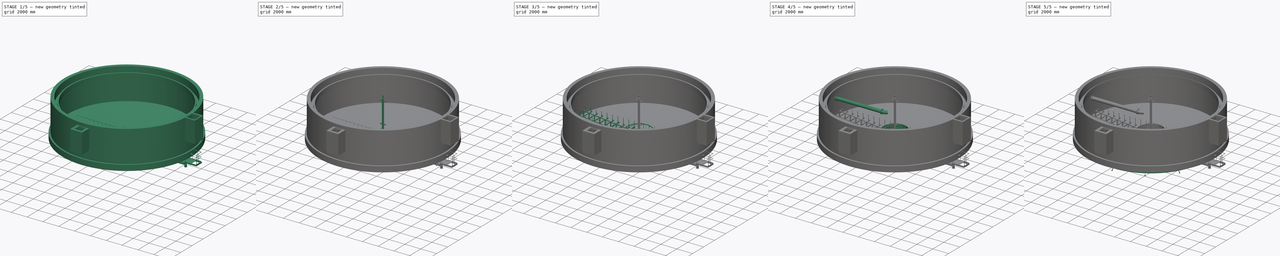
[diagram: build sequence overview — one tinted view per stage of 5, left to right]
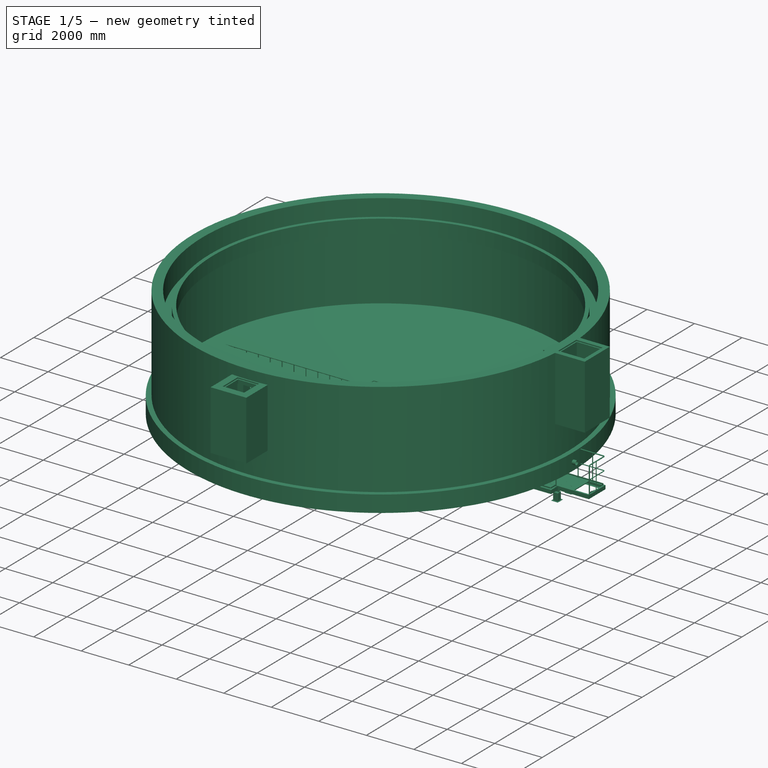
[diagram: stage 1 of 5 — iso view after this stage's code; geometry added in this stage tinted green]
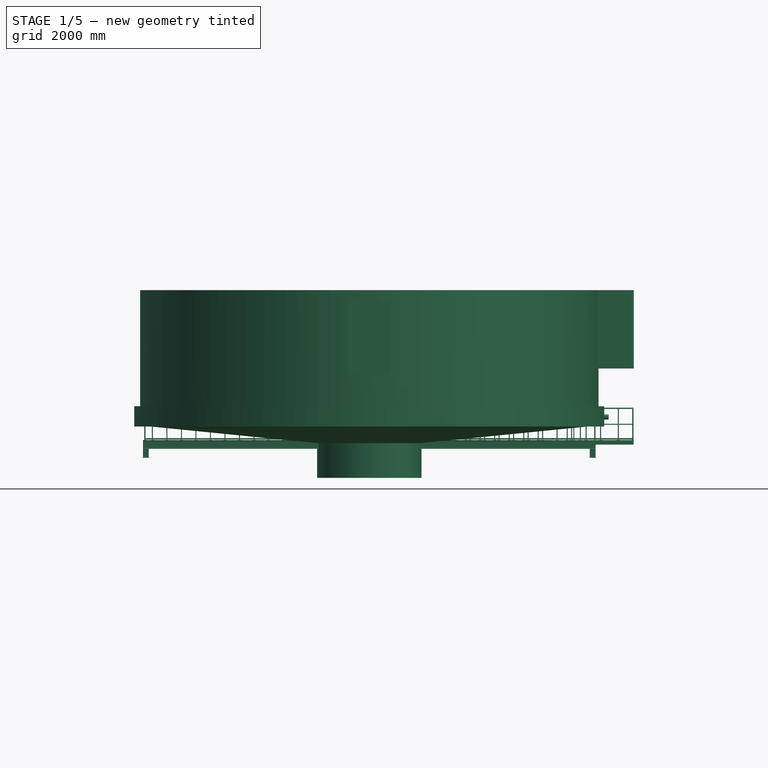
[diagram: stage 1 of 5 — front view after this stage's code; geometry added in this stage tinted green]
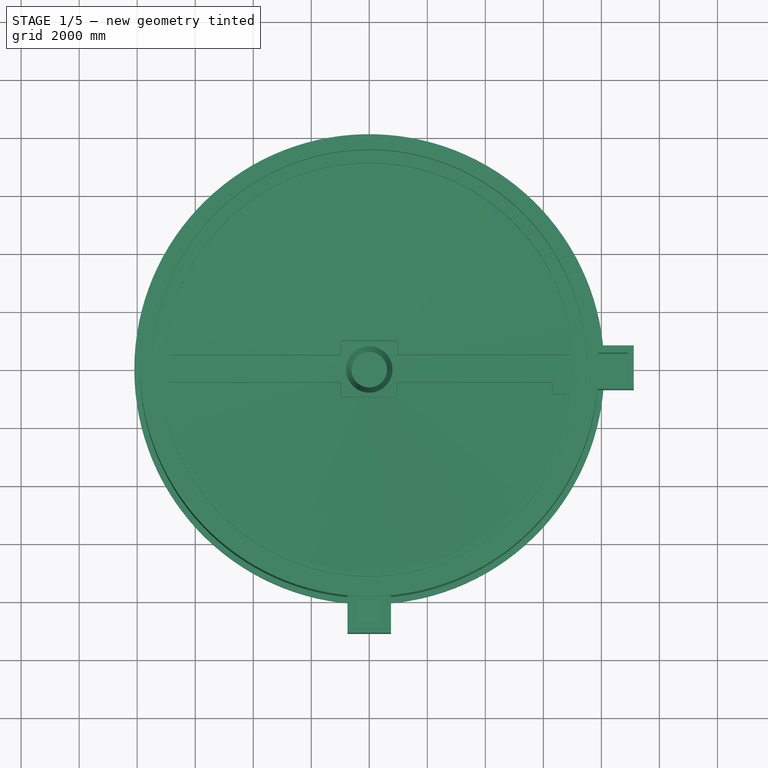
[diagram: stage 1 of 5 — top view after this stage's code; geometry added in this stage tinted green]
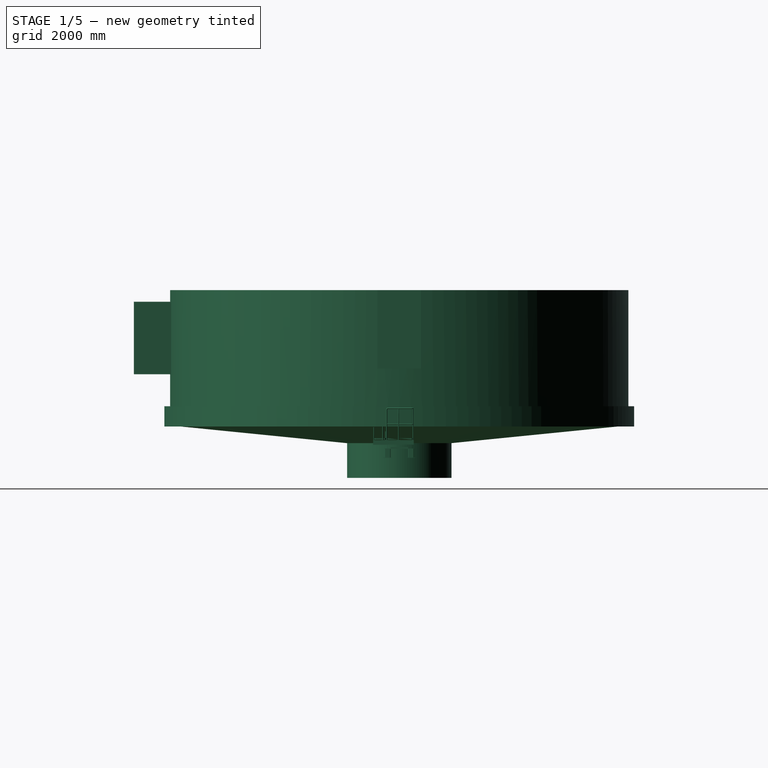
[diagram: stage 1 of 5 — right view after this stage's code; geometry added in this stage tinted green]
FCSTD DOCUMENT  (FreeCAD 1.0R39285 (Git))
Label: suspendAssy_15.0m
License: All rights reserved
LicenseURL: https://en.wikipedia.org/wiki/All_rights_reserved
objects: Sketcher::SketchObject×101, Part::FeaturePython×96, Part::Extrusion×79, App::Part×44, Part::Cut×32, Part::Feature×27, Part::Compound×20, Part::Mirroring×18, Spreadsheet::Sheet×14, Part::Revolution×12, PartDesign::Body×9, Part::MultiFuse×9, PartDesign::Revolution×7, Part::Sweep×7, Part::Cylinder×5, Part::Part2DObjectPython×4, PartDesign::Pad×4, PartDesign::ShapeBinder×3, PartDesign::Pocket×2, PartDesign::PolarPattern×1, +5 more types
note: 549 computed .brp shape members not serialized (recipe doc carries the construction recipe); baked Part::Feature solids carry a one-line shape summary decoded from their .brp

FEATURE [App::Part] Part046  label="centerWellSupport"
  Group = -> [Extrude102,Mirror018,Sketch132,Mirror009,Mirror010,Compound026,AngleSteel003,Mirror011,ChannelSteel006,Part048,Mirror012,Array032,Mirror013]
  Origin = -> Origin063
  Placement = pos=(0,0,-250) rot=(0,0,1;0rad)
  mass = 570.56
  expr: .Placement.Base.z = <<Spreadsheet_feedWell>>.h1 - 1250
FEATURE [App::Part] Part047  label="feedWell"
  Group = -> [Part046,Part045,Spreadsheet015,Spreadsheet016]
  Origin = -> Origin064
  Placement = pos=(0,0,3210) rot=(0,0,1;0rad)
FEATURE [Sketcher::SketchObject] Sketch147
  ArcFitTolerance = 1e-06
  FullyConstrained = true
  MakeInternals = false
  Placement = pos=(0,0,0) rot=(1,0,0;1.5708rad)
  expr: Constraints[5] = <<Spreadsheet_Assy>>.dia / 2 + 400 + 200 + 150
  sketch-geometry (7):
    g0: LineSegment StartX=0 StartY=0 StartZ=0 EndX=1662.78 EndY=605.201 EndZ=0
    g1: LineSegment StartX=1739.47 StartY=622.172 StartZ=0 EndX=7237.07 EndY=1098.88 EndZ=0
    g2: LineSegment StartX=7262.98 StartY=1100 StartZ=0 EndX=8250 EndY=1100 EndZ=0
    g3: ArcOfCircle CenterX=1765.38 CenterY=323.293 CenterZ=0 NormalX=0 NormalY=0 NormalZ=1 AngleXU=0 Radius=300 StartAngle=1.65729 EndAngle=1.91986
    g4: GeomPoint [constr] X=1700 Y=618.749 Z=0
    g5: ArcOfCircle CenterX=7262.98 CenterY=800 CenterZ=0 NormalX=0 NormalY=0 NormalZ=1 AngleXU=0 Radius=300 StartAngle=1.5708 EndAngle=1.65729
    g6: GeomPoint [constr] X=7250 Y=1100 Z=0
  constraints (17):
    c: Coincident(g-1,g0)
    c: Horizontal(g2)
    c: Angle(g-1,g0) = 0.349066
    c: DistanceX(g6,g2) = 1000
    c: DistanceX(g0,g4) = 1700
    c: DistanceX(g0,g2) = 8250
    c: PointOnObject(g4,g0)
    c: PointOnObject(g4,g1)
    c: Tangent(g0,g3) = 1.5708
    c: Tangent(g1,g3) = 1.5708
    c: PointOnObject(g6,g1)
    c: PointOnObject(g6,g2)
    c: Tangent(g1,g5) = 1.5708
    c: Tangent(g2,g5) = 1.5708
    c: Radius(g3) = 300
    c: Radius(g5) = 300
    c: DistanceY(g0,g2) = 1100
FEATURE [Part::Part2DObjectPython] Circle  # Draft 2D object (typed FeaturePython)
  Area = 21382.5
  FirstAngle = 0
  LastAngle = 0
  MakeFace = true
  Placement = pos=(7500,-2.4e-13,1100) rot=(0,1,0;1.5708rad)
  Radius = 82.5
FEATURE [Part::Sweep] Sweep013
  Frenet = true
  Sections = -> [Circle]
  Solid = true
  Spine = -> Sketch147 [Edge5,Edge4,Edge3,Edge2,Edge1]
  Transition = 1
FEATURE [Part::Part2DObjectPython] Wire  # Draft 2D object (typed FeaturePython)
  Area = 522106
  ChamferSize = 0
  Closed = true
  End = (1.33926,5.68e-14,-223.082)
  FilletRadius = 0
  Length = 3013.47
  MakeFace = true
  Placement = pos=(-5.05626,-1.421e-13,659.485) rot=(1,0,0;1.5708rad)
  Points = (4) [(0,0,0),(767.45,0,0),(422.098,-882.568,-3.94921e-13),(6.39552,-882.568,-3.94921e-13)]
  Start = (-5.05626,-1.421e-13,659.485)
  Subdivisions = 0
FEATURE [Part::Revolution] Revolve016
  Angle = 360
  Axis = (-0.0072463,-2e-16,0.999974)
  AxisLink = -> Wire [Edge4]
  Base = (-5.05626,-1.421e-13,659.485)
  FaceMakerClass = Part::FaceMakerBullseye
  Solid = true
  Source = -> Wire
  Symmetric = false
FEATURE [Sketcher::SketchObject] Sketch157
  ArcFitTolerance = 0
  FullyConstrained = true
  MakeInternals = false
  MapMode = 5
  Placement = pos=(0,0,0) rot=(1,0,0;1.5708rad)
  expr: Constraints[10] = Spreadsheet019.L7 * 2
  expr: Constraints[9] = Spreadsheet019.B7
  sketch-geometry (4):
    g0: LineSegment StartX=90 StartY=23 StartZ=0 EndX=-8.967e-12 EndY=23 EndZ=0
    g1: ArcOfCircle CenterX=0 CenterY=0 CenterZ=0 NormalX=0 NormalY=0 NormalZ=1 AngleXU=0 Radius=23 StartAngle=1.5708 EndAngle=4.71239
    g2: LineSegment StartX=-9.439e-13 StartY=-23 StartZ=0 EndX=90 EndY=-23 EndZ=0
    g3: LineSegment StartX=90 StartY=-23 StartZ=0 EndX=90 EndY=23 EndZ=0
  constraints (11):
    c: Horizontal(g0)
    c: Tangent(g0,g1) = -1.5708
    c: PointOnObject(g1,g-2)
    c: Coincident(g1,g2)
    c: Horizontal(g2)
    c: Coincident(g2,g3)
    c: Coincident(g3,g0)
    c: Vertical(g3)
    c: Coincident(g-1,g1)
    c: DistanceX(g0,g0) = 90
    c: Distance(g3) = 46
FEATURE [PartDesign::Pad] Pad004
  Direction = (0,-1,0)
  Length = 40
  Length2 = 10
  Midplane = true
  Placement = pos=(0,0,0) rot=(1,0,0;1.5708rad)
  Profile = -> Sketch157
  ReferenceAxis = -> Sketch157 [N_Axis]
  Suppressed = false
  Type = 0
  expr: Length = Spreadsheet019.D7
FEATURE [Spreadsheet::Sheet] Spreadsheet019
  cells = A2='rodDia dia; B2(dia)=20; A3='length L0; B3(L0)=1291; B4='l; C4='l1; D4='a; E4='b; F4='c; G4='e; H4='f; I4='g; J4='h; K4='i; L4='r; A5='forkEndR; B5=120; D5=40; E5=16; F5=21; G5=24; H5=20; I5=60; J5=10; K5=20; L5=23; A6='turnBackle; B6=150; C6=28; D6=42; E6=23; F6=33; A7='forkEndL; B7=90; D7=40; E7=16; F7=20; G7=24; H7=20; I7=30; L7=23; A8=1; B8=2; C8=3; D8=4; E8=5; F8=6; G8=7; H8=8; I8=9; J8=10; K8=11; L8=12; A9='turnBackle; A10='d; B10='l; C10='l1; D10='a; E10='b; F10='c; A11=10; B11=75; C11=15; D11=24; E11=13; F11=17; A12=12; B12=100; C12=20; D12=30; E12=16; F12=22; A13=16; B13=125; C13=24; D13=36; E13=20; F13=27; A14=20; B14=150; C14=28; D14=42; E14=23; F14=33; A15=22; B15=175; C15=33; D15=48; E15=27; F15=37; A16=24; B16=200; C16=38; D16=54; E16=30; F16=42; A17=30; B17=250; C17=47; D17=66; E17=37; F17=52; A18='forkEnd_L; A19='d; B19='l; C19='a; D19='b; E19='c; F19='e; G19='f; H19='g; I19='r; A20=10; B20=50; C20=20; D20=7; E20=10; F20=12; G20=10; H20=15; I20=12; A21=12; B21=60; C21=25; D21=10; E21=13; F21=16; G21=13; H21=20; I21=15; A22=16; B22=75; C22=30; D22=13; E22=16; F22=20; G22=16; H22=25; I22=19; A23=20; B23=90; C23=40; D23=16; E23=20; F23=24; G23=20; H23=30; I23=23; A24=22; B24=100; C24=45; D24=20; E24=23; F24=28; G24=23; H24=35; I24=27; A25=24; B25=115; C25=50; D25=23; E25=26; F25=32; G25=26; H25=40; I25=30; A26=30; B26=140; C26=65; D26=30; E26=33; F26=40; G26=33; H26=50; I26=38; A27='forkEnd_R; A28='d; B28='l; C28='a; D28='b; E28='c; F28='r; G28='e; H28='f; I28='g; J28='h; K28='i; A29=10; B29=60; C29=20; D29=7; E29=11; F29=12; G29=12; H29=10; I29=30; J29=5; K29=10; A30=12; B30=80; +64 more cells
FEATURE [Sketcher::SketchObject] Sketch158
  ArcFitTolerance = 0
  AttachmentSupport = -> [Pad004]
  FullyConstrained = true
  MakeInternals = false
  MapMode = 5
  Placement = pos=(0,-20,0) rot=(1,0,0;1.5708rad)
  expr: Constraints[1] = Spreadsheet019.F7 / 2
  sketch-geometry (1):
    g0: Circle CenterX=0 CenterY=0 CenterZ=0 NormalX=0 NormalY=0 NormalZ=1 AngleXU=0 Radius=10
  constraints (2):
    c: Coincident(g0,g-1)
    c: Radius(g0) = 10
FEATURE [Part::Extrusion] Extrude123  label="Extrude126"
  Base = -> Sketch158
  Dir = (0,-1,2e-16)
  DirMode = 2
  FaceMakerClass = Part::FaceMakerBullseye
  FaceMakerMode = 3
  LengthFwd = 65
  LengthRev = 0
  Reversed = true
  Solid = true
  Symmetric = false
FEATURE [Sketcher::SketchObject] Sketch165
  ArcFitTolerance = 0
  FullyConstrained = true
  MakeInternals = false
  MapMode = 5
  Placement = pos=(90,0,0) rot=(0.57735,0.57735,0.57735;2.0944rad)
  expr: Constraints[1] = Spreadsheet019.dia
  sketch-geometry (1):
    g0: Circle CenterX=0 CenterY=0 CenterZ=0 NormalX=0 NormalY=0 NormalZ=1 AngleXU=0 Radius=10
  constraints (2):
    c: Coincident(g0,g-1)
    c: Diameter(g0) = 20
FEATURE [Part::Extrusion] Extrude129  label="Extrude132"
  Base = -> Sketch165
  Dir = (1,0,0)
  DirMode = 2
  FaceMakerClass = Part::FaceMakerBullseye
  FaceMakerMode = 3
  LengthFwd = 30
  LengthRev = 0
  Solid = true
  Symmetric = false
  expr: LengthFwd = Spreadsheet019.I7
FEATURE [Sketcher::SketchObject] Sketch166
  ArcFitTolerance = 0
  ExternalGeometry = -> [Pad004]
  FullyConstrained = true
  MakeInternals = false
  expr: Constraints[17] = Spreadsheet019.G7
  expr: Constraints[18] = Spreadsheet019.G7 / 2
  expr: Constraints[27] = Spreadsheet019.E7 / 2
  expr: Constraints[31] = Spreadsheet019.I7
  expr: Constraints[32] = Spreadsheet019.L7
  expr: Constraints[6] = Spreadsheet019.E7
  expr: Constraints[7] = Spreadsheet019.H7
  sketch-geometry (12):
    g0: LineSegment StartX=-23 StartY=8 StartZ=0 EndX=20 EndY=8 EndZ=0
    g1: LineSegment StartX=22 StartY=12 StartZ=0 EndX=58 EndY=12 EndZ=0
    g2: LineSegment StartX=60 StartY=10 StartZ=0 EndX=60 EndY=-10 EndZ=0
    g3: LineSegment StartX=58 StartY=-12 StartZ=0 EndX=22 EndY=-12 EndZ=0
    g4: LineSegment StartX=20 StartY=-10 StartZ=0 EndX=20 EndY=-8 EndZ=0
    g5: LineSegment StartX=20 StartY=-8 StartZ=0 EndX=-23 EndY=-8 EndZ=0
    g6: LineSegment StartX=-23 StartY=-8 StartZ=0 EndX=-23 EndY=8 EndZ=0
    g7: ArcOfCircle CenterX=22 CenterY=10 CenterZ=0 NormalX=0 NormalY=0 NormalZ=1 AngleXU=0 Radius=2 StartAngle=1.5708 EndAngle=3.14159
    g8: ArcOfCircle CenterX=22 CenterY=-10 CenterZ=0 NormalX=0 NormalY=0 NormalZ=1 AngleXU=0 Radius=2 StartAngle=3.14159 EndAngle=4.71239
    g9: ArcOfCircle CenterX=58 CenterY=-10 CenterZ=0 NormalX=0 NormalY=0 NormalZ=1 AngleXU=0 Radius=2 StartAngle=4.71239 EndAngle=6.28319
    g10: ArcOfCircle CenterX=58 CenterY=10 CenterZ=0 NormalX=0 NormalY=0 NormalZ=1 AngleXU=0 Radius=2 StartAngle=5e-16 EndAngle=1.5708
    g11: LineSegment StartX=20 StartY=8 StartZ=0 EndX=20 EndY=10 EndZ=0
  constraints (33):
    c: Horizontal(g0)
    c: Coincident(g4,g5)
    c: Horizontal(g5)
    c: Coincident(g5,g6)
    c: Coincident(g6,g0)
    c: Vertical(g6)
    c: DistanceY(g6,g6) = 16
    c: DistanceX(g-1,g0) = 20
    c: Horizontal(g1)
    c: Horizontal(g3)
    c: Coincident(g11,g0)
    c: Vertical(g11)
    c: Vertical(g2)
    c: Tangent(g9,g2) = 1.5708
    c: Tangent(g1,g10) = 1.5708
    c: Tangent(g10,g2) = 1.5708
    c: Tangent(g1,g7) = 1.5708
    c: DistanceY(g3,g1) = 24
    c: DistanceY(g-1,g1) = 12
    c: Radius(g10) = 2
    c: Equal(g10,g9)
    c: Equal(g9,g7)
    c: Radius(g8) = 2
    c: Vertical(g4)
    c: Vertical(g4,g0)
    c: Tangent(g8,g4) = 1.5708
    c: Vertical(g8,g8)
    c: DistanceY(g-1,g0) = 8
    c: Tangent(g9,g3) = 1.5708
    c: Tangent(g7,g11) = 1.5708
    c: Coincident(g8,g3)
    c: DistanceX(g2,g-3) = 30
    c: DistanceX(g0,g-1) = 23
FEATURE [Part::Extrusion] Extrude130  label="Extrude133"
  Base = -> Sketch166
  Dir = (0,0,1)
  DirMode = 2
  FaceMakerClass = Part::FaceMakerBullseye
  FaceMakerMode = 3
  LengthFwd = 150
  LengthRev = 0
  Solid = true
  Symmetric = true
FEATURE [Part::Cut] Cut047
  Base = -> Pad004
  Tool = -> Extrude130
FEATURE [Part::Cut] Cut048
  Base = -> Cut047
  Tool = -> Extrude129
FEATURE [App::Part] Part036  label="mobingParts"
  Group = -> [Part007,Part055,Array041,Part062]
  Origin = -> Origin049
FEATURE [Part::Feature] Part__Feature  label="\X2\7D426C888EAF4F5353F3\X0\_1400 v8"
  shape: bbox 17210 x 17250 x 6470 mm, 65 faces (baked)
FEATURE [Part::Feature] Part__Feature026  label="\X2\7D426C888EAF4F5353F3\X0\_1400 v009"
  shape: bbox 1000 x 1000 x 230 mm, 5 faces (baked)
FEATURE [Part::Feature] Part__Feature027  label="\X2\7D426C888EAF4F5353F3\X0\_1400 v010"
  shape: bbox 1000 x 1000 x 230 mm, 5 faces (baked)
FEATURE [Part::MultiFuse] Fusion018
  Refine = true
  Shapes = -> [Part__Feature,Part__Feature026,Part__Feature027]
FEATURE [Part::Part2DObjectPython] Rectangle  # Draft 2D object (typed FeaturePython)
  Area = 1.55372e+08
  ChamferSize = 0
  Columns = 1
  FilletRadius = 0
  Height = 8068.38
  Length = 19256.9
  MakeFace = true
  Placement = pos=(-9184.37,3.136e-13,-1420.94) rot=(1,0,0;1.5708rad)
  Rows = 1
FEATURE [Part::FeaturePython] Slice  # WARN: FeaturePython — macro-defined, semantics opaque (R4)
  Base = -> Fusion018
  Mode = 1
  Tolerance = 0
  Tools = -> [Rectangle]
FEATURE [Part::FeaturePython] Slice_child0  label="Slice.0"  # WARN: FeaturePython — macro-defined, semantics opaque (R4)
  Base = -> Slice
  FilterType = 1
  Invert = false
  OverrideMaxVal = 0
  WindowFrom = 80
  WindowTo = 100
  items = 0
FEATURE [Part::FeaturePython] Slice_child1  label="Slice.1"  # WARN: FeaturePython — macro-defined, semantics opaque (R4)
  Base = -> Slice
  FilterType = 1
  Invert = false
  OverrideMaxVal = 0
  WindowFrom = 80
  WindowTo = 100
  items = 1
FEATURE [App::DocumentObjectGroup] GrExplode_Slice  label="Exploded Slice"
  Group = -> [Slice_child0,Slice_child1]
FEATURE [App::Part] _X2_7D426C888EAF4F5353F3_X0__1400_v8  label="body15.0m"
  Group = -> [Part__Feature,Part__Feature027,Part__Feature026,Fusion018,Rectangle,Slice,Slice_child0,Slice_child1,GrExplode_Slice]
  Origin = -> Origin
FEATURE [Part::Thickness] Thickness
  Faces = -> Sweep013 [Face7,Face6]
  Intersection = false
  Join = 0
  Mode = 0
  SelfIntersection = false
  Value = 6
FEATURE [Part::Cut] Cut052
  Base = -> Thickness
  Refine = true
  Tool = -> Revolve016
FEATURE [App::Part] Part051  label="sludgePipe"
  Group = -> [Flange001,Circle001,Sketch147,Circle,Wire,Cut051,Revolve016,Sweep013,Thickness,Cut052]
  Origin = -> Origin070
  mass = 203.634
FEATURE [Part::FeaturePython] HShapeSteel  # WARN: FeaturePython — macro-defined, semantics opaque (R4)
  B = 200
  H = 294
  L = 5500
  Placement = pos=(0,-500,0) rot=(0,0,1;1.5708rad)
  Solid = false
  g0 = 7.85
  mass = 0
  size = 3
  standard = SS_Medium
  t1 = 8
  t2 = 12
  type = 02_H_Shape
FEATURE [Spreadsheet::Sheet] Spreadsheet020  label="Spreadsheet_bridge"
  cells = A2='tankDia; B2(dia)=15000; A3='bridgeLength; B3(L0)==dia + 600; A4='hight; B4(hight)=600
FEATURE [Part::Extrusion] Extrude142
  Base = -> HShapeSteel
  Dir = (-1,-2e-16,0)
  DirMode = 2
  FaceMakerClass = Part::FaceMakerBullseye
  FaceMakerMode = 3
  LengthFwd = 15600
  LengthRev = 0
  Solid = false
  Symmetric = true
  expr: LengthFwd = Spreadsheet020.L0
FEATURE [Part::FeaturePython] Clone032  label="Extrude147"  # Draft clone (typed FeaturePython)
  AttacherType = Attacher::AttachEngine3D
  Fuse = false
  Objects = -> [Extrude142]
  Placement = pos=(0,800,0) rot=(0,0,1;0rad)
  Scale = (1,1,1)
  expr: .Placement.Base.y = 1000 - HShapeSteel.B
FEATURE [Part::FeaturePython] ChannelSteel007  # WARN: FeaturePython — macro-defined, semantics opaque (R4)
  B = 75
  H = 150
  L = 5500
  Placement = pos=(-1000,0,0) rot=(0,0,1;0rad)
  Solid = false
  g0 = 7.85
  mass = 0
  size = 3
  standard = SS
  t1 = 6.5
  t2 = 10
  type = 01_Channel
FEATURE [Sketcher::SketchObject] Sketch181
  ArcFitTolerance = 1e-06
  FullyConstrained = true
  MakeInternals = false
  sketch-geometry (5):
    g0: LineSegment StartX=-1000 StartY=-1000 StartZ=0 EndX=1000 EndY=-1000 EndZ=0
    g1: LineSegment StartX=1000 StartY=-1000 StartZ=0 EndX=1000 EndY=1000 EndZ=0
    g2: LineSegment StartX=1000 StartY=1000 StartZ=0 EndX=-1000 EndY=1000 EndZ=0
    g3: LineSegment StartX=-1000 StartY=1000 StartZ=0 EndX=-1000 EndY=-1000 EndZ=0
    g4: GeomPoint [constr] X=0 Y=0 Z=0
  constraints (12):
    c: Coincident(g0,g1)
    c: Coincident(g1,g2)
    c: Coincident(g2,g3)
    c: Coincident(g3,g0)
    c: Horizontal(g0)
    c: Horizontal(g2)
    c: Vertical(g1)
    c: Vertical(g3)
    c: Symmetric(g2,g0,g4)
    c: Coincident(g4,g-1)
    c: DistanceX(g2,g2) = 2000
    c: DistanceY(g3,g3) = 2000
FEATURE [Part::Sweep] Sweep016
  Frenet = true
  Placement = pos=(0,0,144) rot=(0,0,1;0rad)
  Sections = -> [ChannelSteel007]
  Solid = true
  Spine = -> Sketch181 [Edge4,Edge3,Edge2,Edge1]
  Transition = 1
FEATURE [Part::FeaturePython] AngleSteel027  label="AngleSteel034"  # WARN: FeaturePython — macro-defined, semantics opaque (R4)
  A = 65
  B = 65
  L = 5500
  Placement = pos=(-6800,0,0) rot=(0,0,1;0rad)
  Solid = false
  g0 = 7.85
  mass = 0
  size = 8
  standard = SS_Equal
  t = 6
  type = 00_Angle
FEATURE [Part::FeaturePython] AngleSteel028  label="AngleSteel035"  # WARN: FeaturePython — macro-defined, semantics opaque (R4)
  A = 65
  B = 65
  L = 5500
  Placement = pos=(-6800,0,294) rot=(0,1,0;1.5708rad)
  Solid = false
  g0 = 7.85
  mass = 0
  size = 8
  standard = SS_Equal
  t = 6
  type = 00_Angle
FEATURE [Part::Extrusion] Extrude143  label="Extrude148"
  Base = -> AngleSteel028
  Dir = (0,1,0)
  DirMode = 2
  FaceMakerClass = Part::FaceMakerBullseye
  FaceMakerMode = 3
  LengthFwd = 600
  LengthRev = 0
  Solid = false
  Symmetric = true
  expr: LengthFwd = 1000 - HShapeSteel.B * 2
FEATURE [Part::Extrusion] Extrude144  label="Extrude149"
  Base = -> AngleSteel027
  Dir = (0,1,0)
  DirMode = 2
  FaceMakerClass = Part::FaceMakerBullseye
  FaceMakerMode = 3
  LengthFwd = 600
  LengthRev = 0
  Solid = false
  Symmetric = true
  expr: LengthFwd = 1000 - HShapeSteel.B * 2
FEATURE [Part::Compound] Compound038
  Links = -> [Extrude143,Extrude144]
FEATURE [Part::FeaturePython] Array042  # Draft array (typed FeaturePython)
  AlwaysSyncPlacement = false
  Angle = 360
  ArrayType = 0
  Axis = (0,0,1)
  Base = -> Compound038
  Center = (0,0,0)
  Count = 3
  ExpandArray = false
  Fuse = false
  IntervalAxis = (0,0,0)
  IntervalX = (2000,0,0)
  IntervalY = (0,100,0)
  IntervalZ = (0,0,100)
  NumberCircles = 3
  NumberPolar = 5
  NumberX = 3
  NumberY = 1
  NumberZ = 1
  PlacementList = 3 placements: arithmetic series from (0,0,0) step (2000,0,0) to (4000,0,0)
  RadialDistance = 50
  ScaleList = (3) [(1,1,1),(1,1,1),(1,1,1)]
  Symmetry = 1
  TangentialDistance = 25
FEATURE [Part::Mirroring] Mirror023  label="Array (mirrored)"
  Base = (0,2000,0)
  Normal = (1,0,0)
  Source = -> Array042
FEATURE [Sketcher::SketchObject] Sketch182
  ArcFitTolerance = 1e-06
  AttachmentSupport = -> [Extrude142]
  FullyConstrained = true
  MakeInternals = false
  MapMode = 5
  Placement = pos=(0,0,294) rot=(0,0,1;0rad)
  expr: Constraints[25] = Spreadsheet020.dia + 600
  sketch-geometry (12):
    g0: LineSegment StartX=-7800 StartY=500 StartZ=0 EndX=-1000 EndY=500 EndZ=0
    g1: LineSegment StartX=-1000 StartY=500 StartZ=0 EndX=-1000 EndY=1000 EndZ=0
    g2: LineSegment StartX=-1000 StartY=1000 StartZ=0 EndX=1000 EndY=1000 EndZ=0
    g3: LineSegment StartX=1000 StartY=1000 StartZ=0 EndX=1000 EndY=500 EndZ=0
    g4: LineSegment StartX=1000 StartY=500 StartZ=0 EndX=7800 EndY=500 EndZ=0
    g5: LineSegment StartX=7800 StartY=500 StartZ=0 EndX=7800 EndY=-500 EndZ=0
    g6: LineSegment StartX=7800 StartY=-500 StartZ=0 EndX=1000 EndY=-500 EndZ=0
    g7: LineSegment StartX=1000 StartY=-500 StartZ=0 EndX=1000 EndY=-1000 EndZ=0
    g8: LineSegment StartX=1000 StartY=-1000 StartZ=0 EndX=-1000 EndY=-1000 EndZ=0
    g9: LineSegment StartX=-1000 StartY=-1000 StartZ=0 EndX=-1000 EndY=-500 EndZ=0
    g10: LineSegment StartX=-1000 StartY=-500 StartZ=0 EndX=-7800 EndY=-500 EndZ=0
    g11: LineSegment StartX=-7800 StartY=-500 StartZ=0 EndX=-7800 EndY=500 EndZ=0
  constraints (33):
    c: Horizontal(g0)
    c: Coincident(g0,g1)
    c: Vertical(g1)
    c: Coincident(g1,g2)
    c: Horizontal(g2)
    c: Coincident(g2,g3)
    c: Vertical(g3)
    c: Coincident(g3,g4)
    c: Horizontal(g4)
    c: Coincident(g4,g5)
    c: Vertical(g5)
    c: Coincident(g5,g6)
    c: Horizontal(g6)
    c: Coincident(g6,g7)
    c: Vertical(g7)
    c: Coincident(g7,g8)
    c: Coincident(g8,g9)
    c: Vertical(g9)
    c: Coincident(g9,g10)
    c: Horizontal(g10)
    c: Coincident(g10,g11)
    c: Coincident(g11,g0)
    c: Symmetric(g10,g0,g-1)
    c: DistanceY(g11,g11) = 1000
    c: Symmetric(g10,g5,g-2)
    c: DistanceX(g10,g5) = 15600
    c: Horizontal(g0,g3)
    c: Vertical(g0,g9)
    c: DistanceX(g8,g8) = 2000
    c: Symmetric(g8,g7,g-2)
    c: Vertical(g6,g3)
    c: DistanceY(g7,g2) = 2000
    c: Distance(g7,g-1) = 1000
FEATURE [Part::Extrusion] Extrude145  label="Extrude150"
  Base = -> Sketch182
  Dir = (0,0,1)
  DirMode = 2
  FaceMakerClass = Part::FaceMakerBullseye
  FaceMakerMode = 3
  LengthFwd = 4.5
  LengthRev = 0
  Solid = true
  Symmetric = false
FEATURE [Part::Compound] Compound039  label="Compound001"
  Links = -> [Mirror023,Array042]
FEATURE [Part::FeaturePython] ChannelSteel001  # WARN: FeaturePython — macro-defined, semantics opaque (R4)
  B = 75
  H = 150
  L = 5500
  Placement = pos=(250,0,0) rot=(0,0,1;0rad)
  Solid = false
  g0 = 7.85
  mass = 0
  size = 3
  standard = SS
  t1 = 6.5
  t2 = 10
  type = 01_Channel
FEATURE [Part::Extrusion] Extrude004  label="Extrude005"
  Base = -> ChannelSteel001
  Dir = (0,1,0)
  DirMode = 2
  FaceMakerClass = Part::FaceMakerBullseye
  FaceMakerMode = 3
  LengthFwd = 600
  LengthRev = 0
  Placement = pos=(0,0,144) rot=(0,0,1;0rad)
  Solid = false
  Symmetric = true
  expr: LengthFwd = 1000 - HShapeSteel.B * 2
FEATURE [Part::FeaturePython] Array001  label="Array043"  # Draft array (typed FeaturePython)
  AlwaysSyncPlacement = false
  Angle = 360
  ArrayType = 1
  Axis = (0,0,1)
  Base = -> Extrude004
  Center = (0,0,0)
  Count = 2
  ExpandArray = false
  Fuse = false
  IntervalAxis = (0,0,0)
  IntervalX = (50,0,0)
  IntervalY = (0,50,0)
  IntervalZ = (0,0,50)
  NumberCircles = 3
  NumberPolar = 2
  NumberX = 2
  NumberY = 2
  NumberZ = 1
  PlacementList = 2 placements: [(0,0,144),(0,0,144)]
  RadialDistance = 50
  ScaleList = (2) [(1,1,1),(1,1,1)]
  Symmetry = 1
  TangentialDistance = 25
FEATURE [Sketcher::SketchObject] Sketch183
  ArcFitTolerance = 1e-06
  AttachmentSupport = -> [Extrude145]
  FullyConstrained = true
  MakeInternals = false
  MapMode = 5
  Placement = pos=(0,0,298.5) rot=(0,0,1;0rad)
  sketch-geometry (4):
    g0: LineSegment StartX=6800 StartY=500 StartZ=0 EndX=8110 EndY=500 EndZ=0
    g1: LineSegment StartX=8110 StartY=500 StartZ=0 EndX=8110 EndY=-500 EndZ=0
    g2: LineSegment StartX=8110 StartY=-500 StartZ=0 EndX=6800 EndY=-500 EndZ=0
    g3: LineSegment StartX=6800 StartY=-500 StartZ=0 EndX=6800 EndY=500 EndZ=0
  constraints (10):
    c: Horizontal(g0)
    c: Coincident(g0,g1)
    c: Vertical(g1)
    c: Coincident(g1,g2)
    c: Horizontal(g2)
    c: Coincident(g0,g-3)
    c: Coincident(g2,g-3)
    c: DistanceX(g2,g2) = 1310
    c: Coincident(g3,g2)
    c: Coincident(g3,g0)
FEATURE [Part::FeaturePython] ChannelSteel002  # WARN: FeaturePython — macro-defined, semantics opaque (R4)
  B = 75
  H = 150
  L = 5500
  Placement = pos=(8110,0,294) rot=(0,1,0;3.14159rad)
  Solid = false
  g0 = 7.85
  mass = 0
  size = 3
  standard = SS
  t1 = 6.5
  t2 = 10
  type = 01_Channel
FEATURE [Part::Sweep] Sweep001
  Frenet = true
  Sections = -> [ChannelSteel002]
  Solid = true
  Spine = -> Sketch183 [Edge3,Edge2,Edge1,Edge4]
  Transition = 1
FEATURE [Sketcher::SketchObject] Sketch184
  ArcFitTolerance = 1e-06
  AttachmentSupport = -> [Sweep001]
  ExternalGeometry = -> [Sweep001,Sketch183]
  FullyConstrained = true
  MakeInternals = false
  MapMode = 5
  Placement = pos=(0,3.53e-14,294) rot=(0,0,1;0rad)
  sketch-geometry (9):
    g0: LineSegment StartX=6850 StartY=-450 StartZ=0 EndX=8060 EndY=-450 EndZ=0
    g1: LineSegment StartX=8060 StartY=-450 StartZ=0 EndX=8060 EndY=450 EndZ=0
    g2: LineSegment StartX=8060 StartY=450 StartZ=0 EndX=6850 EndY=450 EndZ=0
    g3: LineSegment StartX=6850 StartY=450 StartZ=0 EndX=6850 EndY=-450 EndZ=0
    g4: GeomPoint [constr] X=7455 Y=2.715e-13 Z=0
    g5: LineSegment StartX=6800 StartY=-500 StartZ=0 EndX=8110 EndY=-500 EndZ=0
    g6: LineSegment StartX=8110 StartY=-500 StartZ=0 EndX=8110 EndY=500 EndZ=0
    g7: LineSegment StartX=8110 StartY=500 StartZ=0 EndX=6800 EndY=500 EndZ=0
    g8: LineSegment StartX=6800 StartY=500 StartZ=0 EndX=6800 EndY=-500 EndZ=0
  constraints (23):
    c: Coincident(g0,g1)
    c: Coincident(g1,g2)
    c: Coincident(g2,g3)
    c: Coincident(g3,g0)
    c: Horizontal(g0)
    c: Horizontal(g2)
    c: Vertical(g1)
    c: Vertical(g3)
    c: Symmetric(g2,g0,g4)
    c: DistanceY(g0,g-4) = 25
    c: Distance(g-4,g3) = 25
    c: DistanceY(g-3,g1) = 25
    c: DistanceX(g-3,g1) = 25
    c: Coincident(g5,g6)
    c: Coincident(g6,g7)
    c: Coincident(g7,g8)
    c: Coincident(g8,g5)
    c: Horizontal(g5)
    c: Horizontal(g7)
    c: Vertical(g6)
    c: Vertical(g8)
    c: Coincident(g-6,g6)
    c: Coincident(g-5,g5)
FEATURE [Part::Extrusion] Extrude146  label="Extrude151"
  Base = -> Sketch184
  Dir = (0,0,1)
  DirMode = 2
  FaceMakerClass = Part::FaceMakerBullseye
  FaceMakerMode = 3
  LengthFwd = 4.5
  LengthRev = 0
  Solid = true
  Symmetric = false
FEATURE [Sketcher::SketchObject] Sketch185
  ArcFitTolerance = 1e-06
  AttachmentSupport = -> [XY_Plane084]
  FullyConstrained = true
  MakeInternals = false
  MapMode = 5
  sketch-geometry (5):
    g0: LineSegment StartX=-302.5 StartY=-450 StartZ=0 EndX=302.5 EndY=-450 EndZ=0
    g1: LineSegment StartX=302.5 StartY=-450 StartZ=0 EndX=302.5 EndY=450 EndZ=0
    g2: LineSegment StartX=302.5 StartY=450 StartZ=0 EndX=-302.5 EndY=450 EndZ=0
    g3: LineSegment StartX=-302.5 StartY=450 StartZ=0 EndX=-302.5 EndY=-450 EndZ=0
    g4: GeomPoint [constr] X=0 Y=0 Z=0
  constraints (12):
    c: Coincident(g0,g1)
    c: Coincident(g1,g2)
    c: Coincident(g2,g3)
    c: Coincident(g3,g0)
    c: Horizontal(g0)
    c: Horizontal(g2)
    c: Vertical(g1)
    c: Vertical(g3)
    c: Symmetric(g2,g0,g4)
    c: Coincident(g4,g-1)
    c: DistanceY(g3,g3) = 900
    c: DistanceX(g2,g2) = 605
FEATURE [Sketcher::SketchObject] Sketch186
  ArcFitTolerance = 1e-06
  AttachmentSupport = -> [XY_Plane084]
  ExternalGeometry = -> [Sketch185]
  FullyConstrained = true
  MakeInternals = false
  MapMode = 5
  sketch-geometry (5):
    g0: LineSegment StartX=-272.5 StartY=-420 StartZ=0 EndX=272.5 EndY=-420 EndZ=0
    g1: LineSegment StartX=272.5 StartY=-420 StartZ=0 EndX=272.5 EndY=420 EndZ=0
    g2: LineSegment StartX=272.5 StartY=420 StartZ=0 EndX=-272.5 EndY=420 EndZ=0
    g3: LineSegment StartX=-272.5 StartY=420 StartZ=0 EndX=-272.5 EndY=-420 EndZ=0
    g4: GeomPoint [constr] X=0 Y=0 Z=0
  constraints (12):
    c: Coincident(g0,g1)
    c: Coincident(g1,g2)
    c: Coincident(g2,g3)
    c: Coincident(g3,g0)
    c: Horizontal(g0)
    c: Horizontal(g2)
    c: Vertical(g1)
    c: Vertical(g3)
    c: Symmetric(g2,g0,g4)
    c: Coincident(g4,g-1)
    c: DistanceX(g1,g-3) = 30
    c: DistanceY(g1,g-3) = 30
FEATURE [Part::FeaturePython] AngleSteel029  label="AngleSteel036"  # WARN: FeaturePython — macro-defined, semantics opaque (R4)
  A = 50
  B = 50
  L = 5500
  Placement = pos=(275,0,3.74e-14) rot=(0,1,0;3.14159rad)
  Solid = false
  g0 = 7.85
  mass = 0
  size = 6
  standard = SS_Equal
  t = 4
  type = 00_Angle
FEATURE [Part::Extrusion] Extrude147  label="Extrude152"
  Base = -> Sketch185
  Dir = (0,0,1)
  DirMode = 2
  FaceMakerClass = Part::FaceMakerBullseye
  FaceMakerMode = 3
  LengthFwd = 4.5
  LengthRev = 0
  Solid = true
  Symmetric = false
FEATURE [Part::Sweep] Sweep002
  Frenet = true
  Sections = -> [AngleSteel029]
  Solid = true
  Spine = -> Sketch186 [Edge2,Edge3,Edge4,Edge1]
  Transition = 1
FEATURE [PartDesign::FeatureBase] BaseFeature
  BaseFeature = -> Extrude147
  Suppressed = false
FEATURE [Sketcher::SketchObject] Sketch187
  ArcFitTolerance = 1e-06
  AttachmentSupport = -> [BaseFeature]
  FullyConstrained = true
  MakeInternals = false
  MapMode = 5
  Placement = pos=(0,0,4.5) rot=(0,0,1;0rad)
  sketch-geometry (8):
    g0: LineSegment StartX=-48.25 StartY=225 StartZ=0 EndX=48.25 EndY=225 EndZ=0
    g1: LineSegment StartX=48.25 StartY=225 StartZ=0 EndX=48.25 EndY=265 EndZ=0
    g2: LineSegment StartX=48.25 StartY=265 StartZ=0 EndX=-48.25 EndY=265 EndZ=0
    g3: LineSegment StartX=-48.25 StartY=265 StartZ=0 EndX=-48.25 EndY=225 EndZ=0
    g4: LineSegment StartX=-48.25 StartY=-265 StartZ=0 EndX=48.25 EndY=-265 EndZ=0
    g5: LineSegment StartX=48.25 StartY=-265 StartZ=0 EndX=48.25 EndY=-225 EndZ=0
    g6: LineSegment StartX=48.25 StartY=-225 StartZ=0 EndX=-48.25 EndY=-225 EndZ=0
    g7: LineSegment StartX=-48.25 StartY=-225 StartZ=0 EndX=-48.25 EndY=-265 EndZ=0
  constraints (23):
    c: Coincident(g0,g1)
    c: Coincident(g1,g2)
    c: Coincident(g2,g3)
    c: Coincident(g3,g0)
    c: Horizontal(g2)
    c: Vertical(g1)
    c: Vertical(g3)
    c: Coincident(g4,g5)
    c: Coincident(g5,g6)
    c: Coincident(g6,g7)
    c: Coincident(g7,g4)
    c: Horizontal(g4)
    c: Horizontal(g6)
    c: Vertical(g5)
    c: Vertical(g7)
    c: DistanceX(g2,g2) = 96.5
    c: DistanceY(g1,g1) = 40
    c: Vertical(g0,g6)
    c: Vertical(g0,g5)
    c: Symmetric(g0,g0,g-2)
    c: DistanceY(g-1,g0) = 225
    c: DistanceY(g5,g5) = 40
    c: DistanceY(g5,g-1) = 225
FEATURE [PartDesign::Pocket] Pocket
  BaseFeature = -> BaseFeature
  Direction = (0,0,-1)
  Length = 5
  Length2 = 5
  Profile = -> Sketch187
  ReferenceAxis = -> Sketch187 [N_Axis]
  Suppressed = false
  Type = 0
FEATURE [PartDesign::Body] Body012
  AllowCompound = false
  BaseFeature = -> Extrude147
  Group = -> [BaseFeature,Sketch187,Pocket]
  Origin = -> Origin084
  Tip = -> Pocket
FEATURE [Part::Feature] Part__Feature028  label="AP-268-2\X\96{\X\91\X\CC__\X\C3\X\DE\X\CC\X\AB\X\D9\X\\\\C005"
  Placement = pos=(1044.74,-585.443,742.289) rot=(0,0,1;0rad)
  shape: bbox 104.7 x 52.9 x 35.45 mm, 341 faces (baked)
FEATURE [App::Part] AP_268_2_black_v004  label="AP-268-2-black v004"
  Group = -> [Part__Feature028]
  Origin = -> Origin085
  Placement = pos=(-154,-42.5,-734) rot=(0,0,1;0rad)
FEATURE [Part::FeaturePython] Array043  label="Array044"  # Draft array (typed FeaturePython)
  AlwaysSyncPlacement = false
  Angle = 360
  ArrayType = 1
  Axis = (0,0,1)
  Base = -> AP_268_2_black_v004
  Center = (0,0,0)
  Count = 2
  ExpandArray = false
  Fuse = false
  IntervalAxis = (0,0,0)
  IntervalX = (50,0,0)
  IntervalY = (0,50,0)
  IntervalZ = (0,0,50)
  NumberCircles = 3
  NumberPolar = 2
  NumberX = 2
  NumberY = 2
  NumberZ = 1
  PlacementList = 2 placements: [(-154,-42.5,-734),(154,42.5,-734)]
  RadialDistance = 50
  ScaleList = (2) [(1,1,1),(1,1,1)]
  Symmetry = 1
  TangentialDistance = 25
FEATURE [Part::FeaturePython] Channel  # WARN: FeaturePython — macro-defined, semantics opaque (R4)
  Placement = pos=(0,-975,298.5) rot=(0,0,1;0rad)
  Reverse = false
  g0 = 7.85
  h = 1100
  k = 90
  l1 = 975
  l2 = 249
  mass = 28.2367
  p = 500
  spec = 0
  type = 6
FEATURE [Part::FeaturePython] Corner_with_end001  # WARN: FeaturePython — macro-defined, semantics opaque (R4)
  Placement = pos=(-7735.5,-474.5,299) rot=(0,0,1;0rad)
  Reverse = false
  g0 = 7.85
  h = 1100
  k = -90
  l1 = 6760
  l2 = 249
  mass = 99.1362
  p = 500
  spec = 0
  type = 1
  expr: .Placement.Base.x = -6735.5 - (Spreadsheet020.dia - 13000) / 2
  expr: l1 = 5760 + (Spreadsheet020.dia - 13000) / 2
FEATURE [Part::Compound] Compound040  label="Compound003"
  Links = -> [Sweep002,Extrude147,Body012,Array043]
  Placement = pos=(1000,0,0) rot=(0,0,1;0rad)
  expr: .Placement.Base.x = (Spreadsheet020.dia - 13000) / 2
FEATURE [App::Part] Part002  label="inspectionCover"
  Group = -> [Sketch185,Sketch186,Sweep002,AngleSteel029,Extrude147,Body012,AP_268_2_black_v004,Array043,Compound040]
  Origin = -> Origin003
  Placement = pos=(7758,0,294) rot=(0,0,1;0rad)
FEATURE [Part::FeaturePython] Clone033  label="inspectionCover001"  # Draft clone (typed FeaturePython)
  AttacherType = Attacher::AttachEngine3D
  Fuse = false
  Objects = -> [Part002]
  Placement = pos=(7153,0,294) rot=(0,0,1;0rad)
  Scale = (1,1,1)
FEATURE [Part::FeaturePython] Corner_with_end002  # WARN: FeaturePython — macro-defined, semantics opaque (R4)
  Placement = pos=(-7735.5,469.5,299) rot=(0,0,1;0rad)
  Reverse = true
  g0 = 7.85
  h = 1100
  k = 90
  l1 = 6760
  l2 = 249
  mass = 99.1362
  p = 500
  spec = 0
  type = 1
  expr: .Placement.Base.x = -6735.5 - (Spreadsheet020.dia - 13000) / 2
  expr: l1 = 5760 + (Spreadsheet020.dia - 13000) / 2
FEATURE [Part::FeaturePython] Channel001  # WARN: FeaturePython — macro-defined, semantics opaque (R4)
  Placement = pos=(0,-975,298.5) rot=(0,0,1;0rad)
  Reverse = false
  g0 = 7.85
  h = 1100
  k = 90
  l1 = 975
  l2 = 249
  mass = 28.2367
  p = 500
  spec = 0
  type = 6
FEATURE [Part::FeaturePython] Channel002  # WARN: FeaturePython — macro-defined, semantics opaque (R4)
  Placement = pos=(0,973.5,298.5) rot=(0,0,1;0rad)
  Reverse = true
  g0 = 7.85
  h = 1100
  k = -90
  l1 = 975
  l2 = 249
  mass = 28.2367
  p = 500
  spec = 0
  type = 6
FEATURE [Part::FeaturePython] Corner  # WARN: FeaturePython — macro-defined, semantics opaque (R4)
  Placement = pos=(7976,474,298) rot=(0,0,1;3.14159rad)
  Reverse = false
  g0 = 7.85
  h = 1100
  k = -90
  l1 = 7000
  l2 = 240
  mass = 99.8417
  p = 500
  spec = 0
  type = 2
  expr: .Placement.Base.x = 6976 + (Spreadsheet020.dia - 13000) / 2
  expr: l1 = 6000 + (Spreadsheet020.dia - 13000) / 2
FEATURE [Part::FeaturePython] Corner_with_end003  # WARN: FeaturePython — macro-defined, semantics opaque (R4)
  Placement = pos=(9085,-434.5,299) rot=(0,0,1;1.5708rad)
  Reverse = false
  g0 = 7.85
  h = 1100
  k = 90
  l1 = 910
  l2 = 1102
  mass = 26.1239
  p = 1000
  spec = 0
  type = 1
  expr: .Placement.Base.x = 8085 + (Spreadsheet020.dia - 13000) / 2
FEATURE [Part::FeaturePython] SquarePipe001  # WARN: FeaturePython — macro-defined, semantics opaque (R4)
  A = 200
  B = 200
  L = 306
  Placement = pos=(0,0,-300) rot=(0,0,1;0rad)
  Solid = true
  g0 = 7.85
  mass = 10.9615
  size = 44
  standard = SS
  t = 4.5
  type = 10_Square_Pipe
  expr: .Placement.Base.z = -(Spreadsheet020.hight - 294) + 6
  expr: L = <<Spreadsheet_bridge>>.hight - 294
FEATURE [Sketcher::SketchObject] Sketch188
  ArcFitTolerance = 1e-06
  AttachmentSupport = -> [SquarePipe001]
  ExternalGeometry = -> [SquarePipe001]
  FullyConstrained = true
  MakeInternals = false
  MapMode = 5
  Placement = pos=(0,0,-300) rot=(1,0,0;3.14159rad)
  sketch-geometry (9):
    g0: LineSegment StartX=-138 StartY=-150 StartZ=0 EndX=138 EndY=-150 EndZ=0
    g1: LineSegment StartX=138 StartY=-150 StartZ=0 EndX=138 EndY=150 EndZ=0
    g2: LineSegment StartX=138 StartY=150 StartZ=0 EndX=-138 EndY=150 EndZ=0
    g3: LineSegment StartX=-138 StartY=150 StartZ=0 EndX=-138 EndY=-150 EndZ=0
    g4: GeomPoint [constr] X=-2e-16 Y=3e-16 Z=0
    g5: Circle CenterX=-113 CenterY=125 CenterZ=0 NormalX=0 NormalY=0 NormalZ=1 AngleXU=0 Radius=10
    g6: Circle CenterX=-113 CenterY=-125 CenterZ=0 NormalX=0 NormalY=0 NormalZ=1 AngleXU=0 Radius=10
    g7: Circle CenterX=113 CenterY=-125 CenterZ=0 NormalX=0 NormalY=0 NormalZ=1 AngleXU=0 Radius=10
    g8: Circle CenterX=113 CenterY=125 CenterZ=0 NormalX=0 NormalY=0 NormalZ=1 AngleXU=0 Radius=10
  constraints (24):
    c: Coincident(g0,g1)
    c: Coincident(g1,g2)
    c: Coincident(g2,g3)
    c: Coincident(g3,g0)
    c: Horizontal(g0)
    c: Horizontal(g2)
    c: Vertical(g1)
    c: Vertical(g3)
    c: Symmetric(g2,g0,g4)
    c: Coincident(g4,g-1)
    c: DistanceY(g-3,g1) = 50
    c: DistanceX(g-5,g0) = 50
    c: Diameter(g5) = 20
    c: Equal(g5,g6)
    c: Equal(g6,g7)
    c: Equal(g7,g8)
    c: Vertical(g5,g6)
    c: Vertical(g8,g7)
    c: Horizontal(g5,g8)
    c: Horizontal(g6,g7)
    c: DistanceY(g5,g2) = 25
    c: DistanceX(g2,g5) = 25
    c: DistanceX(g8,g1) = 25
    c: DistanceY(g0,g7) = 25
FEATURE [PartDesign::Pad] Pad005  label="plt"
  Direction = (0,0,-1)
  Length = 9
  Length2 = 10
  Placement = pos=(0,0,-300) rot=(0,0,1;0rad)
  Profile = -> Sketch188
  ReferenceAxis = -> Sketch188 [N_Axis]
  Refine = true
  Reversed = true
  Suppressed = false
  Type = 0
FEATURE [Sketcher::SketchObject] Sketch189
  ArcFitTolerance = 1e-06
  AttachmentSupport = -> [SquarePipe001]
  ExternalGeometry = -> [SquarePipe001]
  FullyConstrained = true
  MakeInternals = false
  MapMode = 5
  Placement = pos=(0,0,6) rot=(0,0,1;0rad)
  sketch-geometry (13):
    g0: LineSegment StartX=-88 StartY=-100 StartZ=0 EndX=88 EndY=-100 EndZ=0
    g1: LineSegment StartX=100 StartY=-88 StartZ=0 EndX=100 EndY=88 EndZ=0
    g2: LineSegment StartX=88 StartY=100 StartZ=0 EndX=-88 EndY=100 EndZ=0
    g3: LineSegment StartX=-100 StartY=88 StartZ=0 EndX=-100 EndY=-88 EndZ=0
    g4: GeomPoint [constr] X=0 Y=0 Z=0
    g5: ArcOfCircle CenterX=88 CenterY=88 CenterZ=0 NormalX=0 NormalY=0 NormalZ=1 AngleXU=0 Radius=12 StartAngle=1e-16 EndAngle=1.5708
    g6: GeomPoint [constr] X=100 Y=100 Z=0
    g7: ArcOfCircle CenterX=-88 CenterY=88 CenterZ=0 NormalX=0 NormalY=0 NormalZ=1 AngleXU=0 Radius=12 StartAngle=1.5708 EndAngle=3.14159
    g8: GeomPoint [constr] X=-100 Y=100 Z=0
    g9: ArcOfCircle CenterX=-88 CenterY=-88 CenterZ=0 NormalX=0 NormalY=0 NormalZ=1 AngleXU=0 Radius=12 StartAngle=3.14159 EndAngle=4.71239
    g10: GeomPoint [constr] X=-100 Y=-100 Z=0
    g11: ArcOfCircle CenterX=88 CenterY=-88 CenterZ=0 NormalX=0 NormalY=0 NormalZ=1 AngleXU=0 Radius=12 StartAngle=4.71239 EndAngle=6.28319
    g12: GeomPoint [constr] X=100 Y=-100 Z=0
  constraints (28):
    c: Horizontal(g0)
    c: Horizontal(g2)
    c: Vertical(g1)
    c: Vertical(g3)
    c: Symmetric(g6,g10,g4)
    c: Coincident(g4,g-1)
    c: PointOnObject(g-4,g2)
    c: PointOnObject(g-3,g1)
    c: PointOnObject(g6,g2)
    c: PointOnObject(g6,g1)
    c: Tangent(g2,g5) = -1.5708
    c: Tangent(g1,g5) = -1.5708
    c: PointOnObject(g8,g2)
    c: PointOnObject(g8,g3)
    c: Tangent(g2,g7) = -1.5708
    c: Tangent(g3,g7) = -1.5708
    c: PointOnObject(g10,g0)
    c: PointOnObject(g10,g3)
    c: Tangent(g0,g9) = -1.5708
    c: Tangent(g3,g9) = -1.5708
    c: Equal(g5,g-5)
    c: PointOnObject(g12,g1)
    c: PointOnObject(g12,g0)
    c: Tangent(g1,g11) = -1.5708
    c: Tangent(g0,g11) = -1.5708
    c: Equal(g5,g7)
    c: Equal(g7,g9)
    c: Equal(g9,g11)
FEATURE [Part::Extrusion] Extrude148  label="Extrude153"
  Base = -> Sketch189
  Dir = (0,0,1)
  DirMode = 2
  FaceMakerClass = Part::FaceMakerBullseye
  FaceMakerMode = 3
  LengthFwd = 9
  LengthRev = 0
  Reversed = true
  Solid = true
  Symmetric = false
FEATURE [Part::MultiFuse] Fusion019  label="Pst_SQ"
  Refine = true
  Shapes = -> [SquarePipe001,Pad005,Extrude148]
FEATURE [App::Part] Part064  label="pst_SQ"
  Group = -> [Sketch189,SquarePipe001,Sketch188,Pad005,Extrude148,Fusion019]
  Origin = -> Origin086
  Placement = pos=(-7700,-400,0) rot=(0,0,1;0rad)
  expr: .Placement.Base.x = -Spreadsheet020.L0 / 2 + 100
  expr: .Placement.Base.y = -400
FEATURE [Part::FeaturePython] Array044  label="Array003"  # Draft array (typed FeaturePython)
  AlwaysSyncPlacement = false
  Angle = 360
  ArrayType = 0
  Axis = (0,0,1)
  Base = -> Part064
  Center = (0,0,0)
  Count = 4
  ExpandArray = false
  Fuse = false
  IntervalAxis = (0,0,0)
  IntervalX = (15400,0,0)
  IntervalY = (0,800,0)
  IntervalZ = (0,0,100)
  NumberCircles = 3
  NumberPolar = 5
  NumberX = 2
  NumberY = 2
  NumberZ = 1
  Placement = pos=(0,0,-6) rot=(0,0,1;0rad)
  PlacementList = 4 placements: [(-7700,-400,0),(-7700,400,0),(7700,-400,0),(7700,400,0)]
  RadialDistance = 50
  ScaleList = (4) [(1,1,1),(1,1,1),(1,1,1),(1,1,1)]
  Symmetry = 1
  TangentialDistance = 25
  expr: .IntervalX.x = Spreadsheet020.L0 - 200
FEATURE [Part::Compound] Compound041  label="Compound004"
  Links = -> [Sweep001,Extrude146]
  Placement = pos=(1000,0,0) rot=(0,0,1;0rad)
  expr: .Placement.Base.x = (Spreadsheet020.dia - 13000) / 2
FEATURE [Sketcher::SketchObject] Sketch010
  ArcFitTolerance = 1e-06
  AttachmentSupport = -> [Extrude142]
  FullyConstrained = true
  MakeInternals = false
  MapMode = 5
  Placement = pos=(0,0,294) rot=(0,0,1;0rad)
  expr: Constraints[9] = Spreadsheet020.L0 / 2
  sketch-geometry (3):
    g0: LineSegment StartX=7800 StartY=-400 StartZ=0 EndX=7800 EndY=-900 EndZ=0
    g1: LineSegment StartX=7800 StartY=-900 StartZ=0 EndX=6300 EndY=-900 EndZ=0
    g2: LineSegment StartX=6300 StartY=-900 StartZ=0 EndX=6300 EndY=-400 EndZ=0
  constraints (10):
    c: Coincident(g0,g1)
    c: Horizontal(g1)
    c: Coincident(g1,g2)
    c: Vertical(g2)
    c: Vertical(g0)
    c: Horizontal(g2,g0)
    c: DistanceX(g1,g1) = 1500
    c: DistanceY(g1,g-1) = 900
    c: DistanceY(g2,g2) = 500
    c: DistanceX(g-1,g0) = 7800
FEATURE [Part::FeaturePython] ChannelSteel003  # WARN: FeaturePython — macro-defined, semantics opaque (R4)
  B = 75
  H = 150
  L = 5500
  Placement = pos=(6300,-800,140) rot=(0,0,1;0rad)
  Solid = false
  g0 = 7.85
  mass = 0
  size = 3
  standard = SS
  t1 = 6.5
  t2 = 10
  type = 01_Channel
  expr: .Placement.Base.x = Spreadsheet020.dia / 2 - 1200
FEATURE [Sketcher::SketchObject] Sketch190
  ArcFitTolerance = 1e-06
  FullyConstrained = true
  MakeInternals = false
  MapMode = 5
  Placement = pos=(0,3.55e-14,290) rot=(0,0,1;0rad)
  expr: Constraints[10] = Spreadsheet020.L0 / 2
  sketch-geometry (4):
    g0: LineSegment StartX=6300 StartY=-900 StartZ=0 EndX=7800 EndY=-900 EndZ=0
    g1: LineSegment StartX=7800 StartY=-500 StartZ=0 EndX=6300 EndY=-500 EndZ=0
    g2: LineSegment StartX=6300 StartY=-500 StartZ=0 EndX=6300 EndY=-900 EndZ=0
    g3: LineSegment StartX=7800 StartY=-500 StartZ=0 EndX=7800 EndY=-900 EndZ=0
  constraints (12):
    c: Coincident(g1,g2)
    c: Coincident(g2,g0)
    c: Horizontal(g0)
    c: DistanceX(g0,g0) = 1500
    c: Distance(g0,g-1) = 900
    c: Coincident(g3,g1)
    c: Coincident(g3,g0)
    c: Vertical(g3)
    c: Vertical(g2)
    c: Horizontal(g1)
    c: DistanceX(g-1,g0) = 7800
    c: DistanceY(g0,g1) = 400
FEATURE [Part::FeaturePython] Channel003  # WARN: FeaturePython — macro-defined, semantics opaque (R4)
  Placement = pos=(7050,-874.78,298) rot=(0,0,1;0rad)
  Reverse = false
  g0 = 7.85
  h = 1100
  k = 90
  l1 = 725
  l2 = 249
  mass = 24.1522
  p = 500
  spec = 0
  type = 6
  expr: .Placement.Base.x = Spreadsheet020.L0 / 2 - 750
FEATURE [Part::FeaturePython] Corner001  # WARN: FeaturePython — macro-defined, semantics opaque (R4)
  Placement = pos=(3125.34,-469.24,299) rot=(0,0,1;0rad)
  Reverse = false
  g0 = 7.85
  h = 1100
  k = -90
  l1 = 3200
  l2 = 150
  mass = 44.7423
  p = 500
  spec = 0
  type = 2
  expr: l1 = 2200 + (Spreadsheet020.dia - 13000) / 2
FEATURE [Part::FeaturePython] Corner002  # WARN: FeaturePython — macro-defined, semantics opaque (R4)
  Placement = pos=(3123.18,-468.54,298) rot=(0,0,1;3.14159rad)
  Reverse = true
  g0 = 7.85
  h = 1100
  k = 90
  l1 = 2150
  l2 = 249
  mass = 31.1476
  p = 500
  spec = 0
  type = 2
FEATURE [Part::FeaturePython] Edge_R  # WARN: FeaturePython — macro-defined, semantics opaque (R4)
  Placement = pos=(7775,-565.122,298.5) rot=(0,0,1;1.5708rad)
  Reverse = true
  g0 = 7.85
  h = 1100
  mass = 4.30234
  p = 500
  spec = 0
  type = 4
  expr: .Placement.Base.x = Spreadsheet020.L0 / 2 - 25
FEATURE [App::Part] Part003  label="handrail"
  Group = -> [Channel,Corner_with_end001,Corner_with_end002,Channel001,Channel002,Corner,Corner_with_end003,Array044,Channel003,Corner001,Corner002,Edge_R]
  Origin = -> Origin005
FEATURE [Part::Sweep] Sweep003
  Frenet = true
  Sections = -> [ChannelSteel003]
  Solid = true
  Spine = -> Sketch010 [Edge3,Edge2,Edge1]
  Transition = 1
FEATURE [Part::Extrusion] Extrude149  label="Extrude154"
  Base = -> Sketch190
  Dir = (0,0,1)
  DirMode = 2
  FaceMakerClass = Part::FaceMakerBullseye
  FaceMakerMode = 3
  LengthFwd = 4.5
  LengthRev = 0
  Solid = true
  Symmetric = false
FEATURE [Part::MultiFuse] Fusion020
  Shapes = -> [Extrude145,Extrude142,Compound039,Sweep016,Clone032,Array001,Extrude149,Sweep003]
FEATURE [App::Part] Part063  label="bridge_s"
  Group = -> [Spreadsheet020,AngleSteel027,AngleSteel028,Extrude143,Extrude144,Compound038,ChannelSteel001,Extrude004,Sketch183,ChannelSteel002,Sweep001,Sketch184,Extrude146,Part002,Clone033,Part003,Compound041,Extrude145,Extrude142,Sweep016,Array042,HShapeSteel,Clone032,ChannelSteel007,Array001,Sketch182,Compound039,Sketch181,Mirror023,Fusion020]
  Origin = -> Origin083
  Placement = pos=(0,0,5803) rot=(0,0,1;0rad)
  mass = 3411.66
FEATURE [App::Part] Part037  label="suspendAssy15.0m"
  Group = -> [Part001,Part004,Single_flange_straight_pipe001,Part017,Part035,Part036,Part038,Spreadsheet014,Part047,Part051,_X2_7D426C888EAF4F5353F3_X0__1400_v8,Part063,Array002,Revolve,Sketch014,Cut001]
  Origin = -> Origin050
FEATURE [Spreadsheet::Sheet] Parts_List
  cells = A1='No; B1='Name; C1='Standard; D1='Count; E1='Unit[kg]; F1='Mass[kg]; A2=1; B2='mainShaftBrg; D2=1; E2=9.64; F2=9.64; A3=2; B3='buffle; D3=1; E3=728.07; F3=728.07; A4=3; B4='skimmerBrade; D4=1; E4=66.03; F4=66.03; A5=4; B5='pipeSkimmerBrg; D5=1; E5=72.01; F5=72.01; A6=5; B6='pipeSkimmerBody; D6=1; E6=300.13; F6=300.13; A7=6; B7='pipeSkimmerRod; D7=1; E7=5.81; F7=5.81; A8=7; B8='pipeSkimmerControlDevice; D8=1; E8=120; F8=120; A9=8; B9='pkipeSkimmerRod; D9=1; E9=5.73; F9=5.73; A10=9; B10='DriveSystem; D10=1; E10=1144.35; F10=1144.35; A11=10; B11='inflowPipe; D11=1; E11=674.23; F11=674.23; A12=11; B12='centerWell; D12=1; E12=839.88; F12=839.88; A13=12; B13='centerWellSupport; D13=1; E13=570.56; F13=570.56; A14=13; B14='sludgePipe; D14=1; E14=203.63; F14=203.63; A15=14; B15='rakeAssy; D15=2; E15=598.04; F15=1196.08; A16=15; B16='mainShaft; D16=1; E16=1647.57; F16=1647.57; A17=16; B17='bridge_s; D17=1; E17=3411.66; F17=3411.66; F18=10995.38
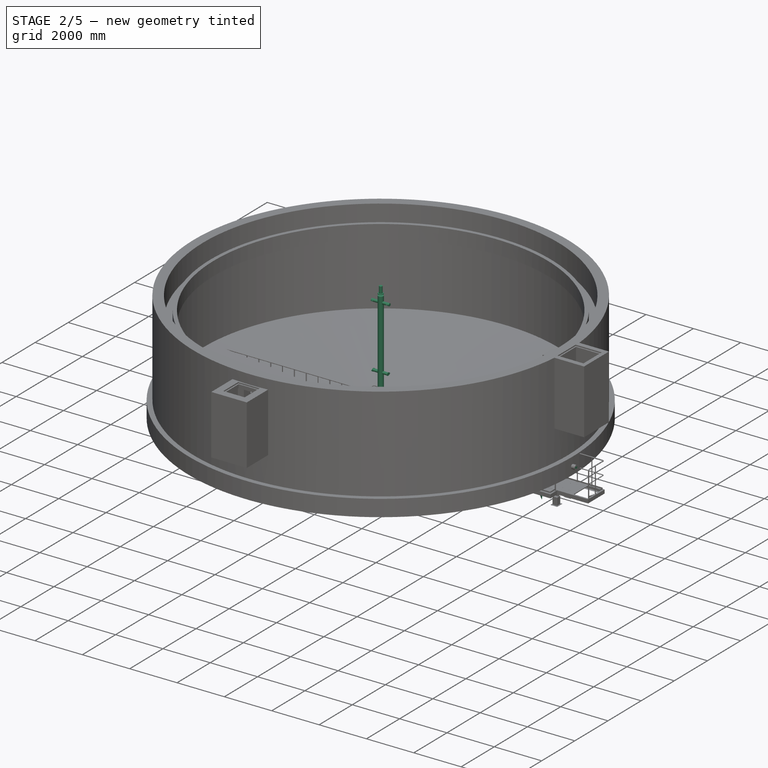
[diagram: stage 2 of 5 — iso view after this stage's code; geometry added in this stage tinted green]
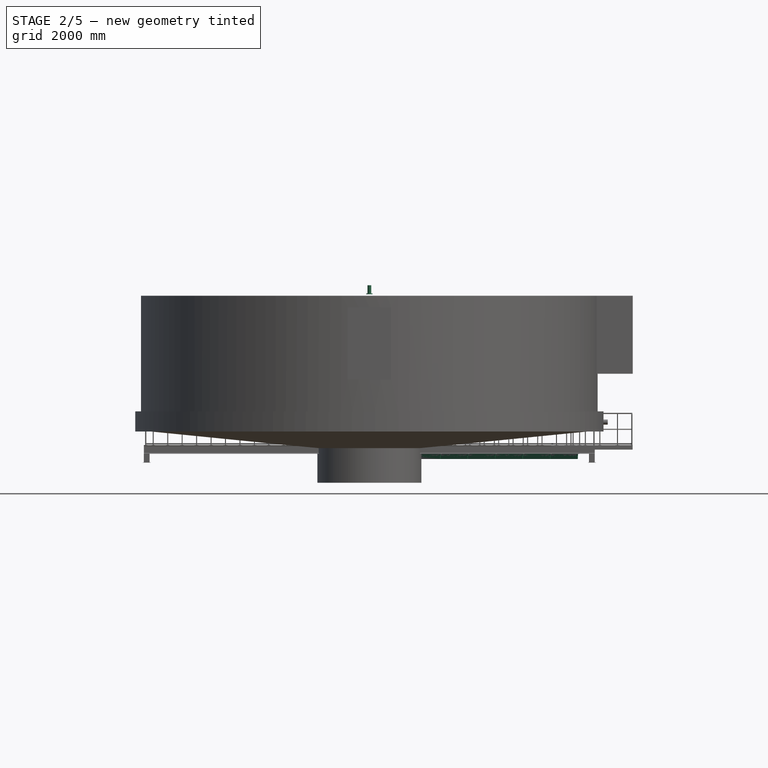
[diagram: stage 2 of 5 — front view after this stage's code; geometry added in this stage tinted green]
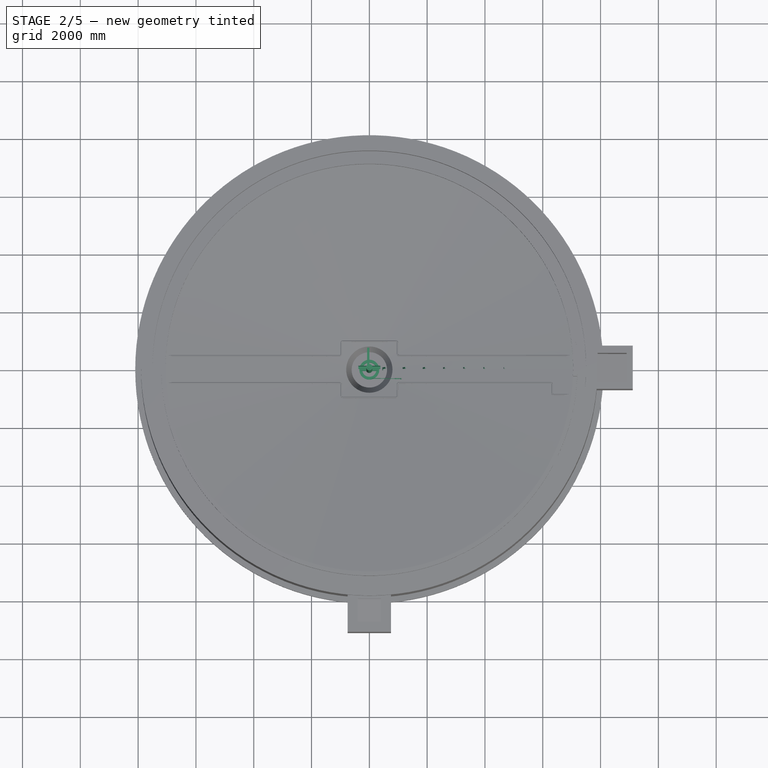
[diagram: stage 2 of 5 — top view after this stage's code; geometry added in this stage tinted green]
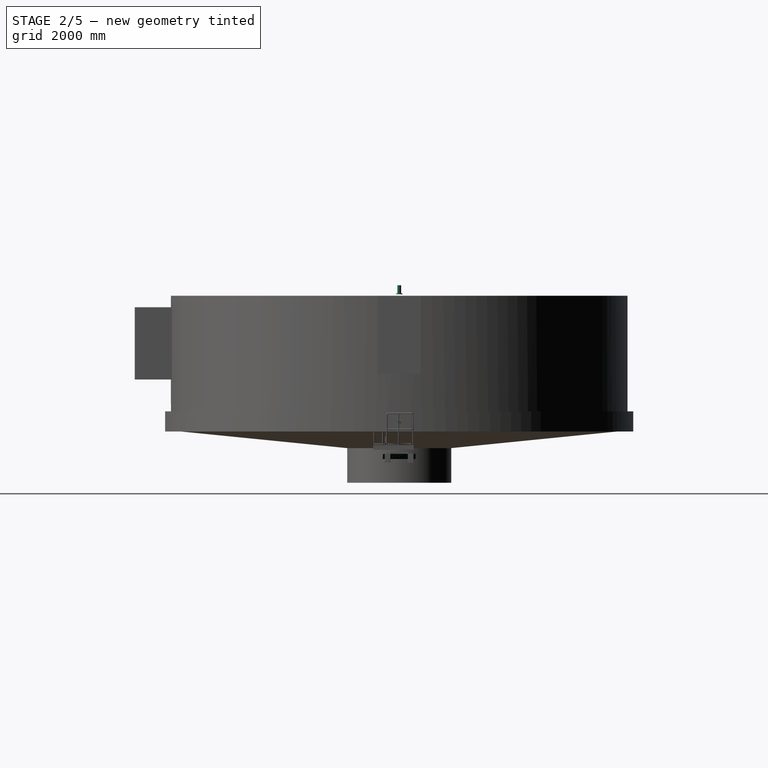
[diagram: stage 2 of 5 — right view after this stage's code; geometry added in this stage tinted green]
FEATURE [App::Part] Part031  label="house"
  Group = -> [Cut024,Body005,Revolve009,Extrude070,Array024,Screw,Array021,Sketch085,Sketch090,Cut005]
  Origin = -> Origin043
FEATURE [Part::Feature] Part__Feature024  label="減速機 v2"
  Placement = pos=(0,-7.2e-14,324.85) rot=(1,0,0;1.5708rad)
  shape: bbox 550 x 550 x 1097 mm, 38 faces (baked)
FEATURE [Sketcher::SketchObject] Sketch091
  ArcFitTolerance = 0
  FullyConstrained = true
  MakeInternals = false
  Placement = pos=(0,0,0) rot=(1,0,0;1.5708rad)
  sketch-geometry (12):
    g0: LineSegment StartX=170 StartY=0 StartZ=0 EndX=400 EndY=0 EndZ=0
    g1: LineSegment StartX=400 StartY=0 StartZ=0 EndX=400 EndY=-20 EndZ=0
    g2: LineSegment StartX=400 StartY=-20 StartZ=0 EndX=170 EndY=-20 EndZ=0
    g3: LineSegment StartX=170 StartY=-20 StartZ=0 EndX=170 EndY=0 EndZ=0
    g4: LineSegment StartX=250 StartY=625 StartZ=0 EndX=345 EndY=625 EndZ=0
    g5: LineSegment StartX=345 StartY=625 StartZ=0 EndX=345 EndY=595 EndZ=0
    g6: LineSegment StartX=345 StartY=595 StartZ=0 EndX=250 EndY=595 EndZ=0
    g7: LineSegment StartX=250 StartY=595 StartZ=0 EndX=250 EndY=625 EndZ=0
    g8: LineSegment StartX=245 StartY=595 StartZ=0 EndX=257 EndY=595 EndZ=0
    g9: LineSegment StartX=257 StartY=595 StartZ=0 EndX=257 EndY=0 EndZ=0
    g10: LineSegment StartX=257 StartY=0 StartZ=0 EndX=245 EndY=0 EndZ=0
    g11: LineSegment StartX=245 StartY=0 StartZ=0 EndX=245 EndY=595 EndZ=0
  constraints (36):
    c: Coincident(g0,g1)
    c: Coincident(g1,g2)
    c: Coincident(g2,g3)
    c: Coincident(g3,g0)
    c: Horizontal(g0)
    c: Horizontal(g2)
    c: Vertical(g1)
    c: Vertical(g3)
    c: Coincident(g4,g5)
    c: Coincident(g5,g6)
    c: Coincident(g6,g7)
    c: Coincident(g7,g4)
    c: Horizontal(g4)
    c: Horizontal(g6)
    c: Vertical(g7)
    c: Coincident(g8,g9)
    c: Coincident(g9,g10)
    c: Coincident(g10,g11)
    c: Coincident(g11,g8)
    c: Horizontal(g8)
    c: Horizontal(g10)
    c: Vertical(g9)
    c: Vertical(g11)
    c: PointOnObject(g8,g6)
    c: PointOnObject(g9,g0)
    c: DistanceY(g5,g5) = 30
    c: DistanceY(g1,g1) = 20
    c: PointOnObject(g0,g-1)
    c: DistanceX(g-1,g2) = 170
    c: DistanceX(g-1,g1) = 400
    c: DistanceY(g1,g4) = 645
    c: Vertical(g5)
    c: DistanceX(g-2,g6) = 250
    c: DistanceX(g6,g6) = 95
    c: DistanceX(g-2,g8) = 245
    c: DistanceX(g8,g8) = 12
FEATURE [Part::Revolution] Revolve010
  Angle = 360
  Axis = (0,0,1)
  Base = (0,0,0)
  FaceMakerClass = Part::FaceMakerBullseye
  Solid = true
  Source = -> Sketch091
  Symmetric = false
FEATURE [Sketcher::SketchObject] Sketch092
  ArcFitTolerance = 0
  AttachmentSupport = -> [Revolve010]
  FullyConstrained = false
  MakeInternals = false
  MapMode = 5
  sketch-geometry (1):
    g0: Circle CenterX=360 CenterY=0 CenterZ=0 NormalX=0 NormalY=0 NormalZ=1 AngleXU=0 Radius=12.4969
  constraints (2):
    c: PointOnObject(g0,g-1)
    c: DistanceX(g-1,g0) = 360
FEATURE [Part::Extrusion] Extrude071  label="Extrude074"
  Base = -> Sketch092
  Dir = (0,0,1)
  DirMode = 2
  FaceMakerClass = Part::FaceMakerBullseye
  FaceMakerMode = 3
  LengthFwd = 30
  LengthRev = 0
  Reversed = true
  Solid = true
  Symmetric = false
FEATURE [Part::FeaturePython] Array025  label="Array004"  # Draft array (typed FeaturePython)
  AlwaysSyncPlacement = false
  Angle = 360
  ArrayType = 1
  Axis = (0,0,1)
  Base = -> Extrude071
  Center = (0,0,38)
  Count = 8
  ExpandArray = false
  Fuse = false
  IntervalAxis = (0,0,0)
  IntervalX = (50,0,0)
  IntervalY = (0,50,0)
  IntervalZ = (0,0,50)
  NumberCircles = 3
  NumberPolar = 8
  NumberX = 2
  NumberY = 2
  NumberZ = 1
  PlacementList = 8 placements: [(0,0,0),(0,0,0),(0,0,-7.10543e-15),(0,0,0),(0,0,0),(0,0,0),(0,0,0),(0,0,0)]
  RadialDistance = 50
  ScaleList = (8) [(1,1,1),(1,1,1),(1,1,1),(1,1,1),(1,1,1),(1,1,1),(1,1,1),(1,1,1)]
  Symmetry = 1
  TangentialDistance = 25
FEATURE [Part::FeaturePython] AngleSteel026  label="AngleSteel031"  # WARN: FeaturePython — macro-defined, semantics opaque (R4)
  A = 50
  B = 50
  L = 200
  Placement = pos=(25,0,0) rot=(0,0,1;0rad)
  Solid = true
  g0 = 7.85
  mass = 0.88607
  size = 7
  standard = SS_Equal
  t = 6
FEATURE [Sketcher::SketchObject] Sketch151
  ArcFitTolerance = 0
  FullyConstrained = false
  MakeInternals = false
  Placement = pos=(0,0,0) rot=(1,0,0;1.5708rad)
  expr: Constraints[6] = Spreadsheet018.beta
  sketch-geometry (3):
    g0: LineSegment StartX=0 StartY=0 StartZ=0 EndX=64.1183 EndY=6.39986 EndZ=0
    g1: LineSegment StartX=64.1183 StartY=6.39986 StartZ=0 EndX=64.1183 EndY=0 EndZ=0
    g2: LineSegment StartX=64.1183 StartY=0 StartZ=0 EndX=0 EndY=0 EndZ=0
  constraints (7):
    c: Coincident(g-1,g0)
    c: Coincident(g0,g1)
    c: Vertical(g1)
    c: Coincident(g1,g2)
    c: Coincident(g2,g0)
    c: Horizontal(g2)
    c: Angle(g2,g0) = 0.0994838
FEATURE [Part::Extrusion] Extrude116  label="Extrude122"
  Base = -> Sketch151
  Dir = (0,-1,2e-16)
  DirMode = 2
  FaceMakerClass = Part::FaceMakerBullseye
  FaceMakerMode = 3
  LengthFwd = 50
  LengthRev = 0
  Solid = true
  Symmetric = true
FEATURE [Part::Cut] Cut040
  Base = -> AngleSteel026
  Placement = pos=(450,0,750) rot=(0,1,0;0.099484rad)
  Tool = -> Extrude116
  expr: .Placement.Base.x = Spreadsheet018.H0 - Spreadsheet018.h1
  expr: .Placement.Base.z = Spreadsheet018.H0
FEATURE [Part::FeaturePython] AngleSteel005  label="AngleSteel032"  # WARN: FeaturePython — macro-defined, semantics opaque (R4)
  A = 50
  B = 50
  L = 1500
  Placement = pos=(25,0,0) rot=(0,0,1;1.5708rad)
  Solid = true
  g0 = 7.85
  mass = 6.64552
  size = 7
  standard = SS_Equal
  t = 6
FEATURE [App::Part] Part053
  Group = -> [AngleSteel005]
  Origin = -> Origin072
  Placement = pos=(450.993,50,760) rot=(0,1,0;0.099484rad)
  expr: .Placement.Base.x = Spreadsheet018.H0 - Spreadsheet018.h1 + 10 * sin(Spreadsheet018.beta)
  expr: .Placement.Base.z = Spreadsheet018.H0 + 10
FEATURE [Part::FeaturePython] Array005  # Draft array (typed FeaturePython)
  AlwaysSyncPlacement = false
  Angle = 360
  ArrayType = 0
  Axis = (0,0,1)
  Base = -> Part053
  Center = (0,0,0)
  Count = 10
  ExpandArray = false
  Fuse = false
  IntervalAxis = (0,0,0)
  IntervalX = (691.667,0,0)
  IntervalY = (0,100,0)
  IntervalZ = (0,0,100)
  NumberCircles = 3
  NumberPolar = 5
  NumberX = 10
  NumberY = 1
  NumberZ = 1
  PlacementList = 10 placements: arithmetic series from (450.993,50,760) step (691.667,0,0) to (6675.99,50,760)
  RadialDistance = 50
  ScaleList = (10) [(1,1,1),(1,1,1),(1,1,1),(1,1,1),(1,1,1),(1,1,1),(1,1,1),(1,1,1),(1,1,1),(1,1,1)]
  Symmetry = 1
  TangentialDistance = 25
  expr: .IntervalX.x = Spreadsheet018.p0
  expr: NumberX = Spreadsheet018.n0
FEATURE [Sketcher::SketchObject] Sketch152
  ArcFitTolerance = 0
  FullyConstrained = true
  MakeInternals = false
  Placement = pos=(0,0,0) rot=(1,0,0;1.5708rad)
  expr: Constraints[11] = Spreadsheet018.beta
  expr: Constraints[1] = Spreadsheet018.H0 + Spreadsheet018.pk / cos(Spreadsheet018.beta)
  expr: Constraints[2] = Spreadsheet018.H0 - Spreadsheet018.h1 + (Spreadsheet018.pk + 10) * sin(Spreadsheet018.beta) - 20
  expr: Constraints[3] = Spreadsheet018.L0
  sketch-geometry (4):
    g0: LineSegment StartX=530.313 StartY=1754.97 StartZ=0 EndX=7730.31 EndY=1036.31 EndZ=0
    g1: LineSegment StartX=7730.31 StartY=1036.31 StartZ=0 EndX=7730.31 EndY=2554.97 EndZ=0
    g2: LineSegment StartX=530.313 StartY=1754.97 StartZ=0 EndX=530.313 EndY=2554.97 EndZ=0
    g3: LineSegment StartX=530.313 StartY=2554.97 StartZ=0 EndX=7730.31 EndY=2554.97 EndZ=0
  constraints (12):
    c: Coincident(g0,g1)
    c: DistanceY(g-1,g0) = 1754.97
    c: DistanceX(g-1,g0) = 530.313
    c: DistanceX(g0,g1) = 7200
    c: Vertical(g1)
    c: Coincident(g0,g2)
    c: Vertical(g2)
    c: Coincident(g2,g3)
    c: Horizontal(g3)
    c: Coincident(g1,g3)
    c: DistanceY(g2,g2) = 800
    c: Angle(g0,g3) = 0.0994838
FEATURE [Part::Extrusion] Extrude117  label="Extrude123"
  Base = -> Sketch152
  Dir = (0,-1,2e-16)
  DirMode = 2
  FaceMakerClass = Part::FaceMakerBullseye
  FaceMakerMode = 3
  LengthFwd = 200
  LengthRev = 0
  Solid = true
  Symmetric = true
FEATURE [Part::Cut] Cut041  label="picketFence001"
  Base = -> Array005
  Tool = -> Extrude117
FEATURE [App::Part] Part052  label="RakeArm001"
  Group = -> [AngleSteel025,Sketch150,Sweep015,AngleSteel024,Array039,AngleSteel023,Array038,Sketch149,Extrude115,Sketch148,Extrude114,Compound032,Mirror022,AngleSteel022,Array037,Clone025,Clone024,Array036,Clone023,Clone022,Clone021,Sketch151,Extrude116,AngleSteel026,Cut040,Array040,Part053,Array005,Sketch152,Extrude117,Cut041]
  Origin = -> Origin071
FEATURE [Part::FeaturePython] AngleSteel006  label="AngleSteel033"  # WARN: FeaturePython — macro-defined, semantics opaque (R4)
  A = 75
  B = 75
  L = 1000
  Placement = pos=(0,0,0) rot=(0.707107,0.707107,0;3.14159rad)
  Solid = false
  g0 = 7.85
  mass = 0
  size = 10
  standard = SS_Equal
  t = 6
FEATURE [Part::Extrusion] Extrude118  label="Extrude124"
  Base = -> AngleSteel006
  Dir = (1,-2e-16,1e-16)
  DirMode = 2
  FaceMakerClass = Part::FaceMakerBullseye
  FaceMakerMode = 3
  LengthFwd = 1600
  LengthRev = 0
  Solid = false
  Symmetric = true
FEATURE [Sketcher::SketchObject] Sketch153
  ArcFitTolerance = 0
  AttachmentSupport = -> [Extrude118]
  ExternalGeometry = -> [Extrude118]
  FullyConstrained = false
  MakeInternals = false
  MapMode = 5
  Placement = pos=(0,1.6e-15,0) rot=(1,0,0;1.5708rad)
  sketch-geometry (8):
    g0: Circle CenterX=-700 CenterY=-40.4478 CenterZ=0 NormalX=0 NormalY=0 NormalZ=1 AngleXU=0 Radius=7
    g1: Circle CenterX=700 CenterY=-39.6228 CenterZ=0 NormalX=0 NormalY=0 NormalZ=1 AngleXU=0 Radius=7
    g2: Circle CenterX=-500 CenterY=-40.4478 CenterZ=0 NormalX=0 NormalY=0 NormalZ=1 AngleXU=0 Radius=7
    g3: Circle CenterX=-299.492 CenterY=-40.4478 CenterZ=0 NormalX=0 NormalY=0 NormalZ=1 AngleXU=0 Radius=7
    g4: Circle CenterX=-99.2385 CenterY=-40.4478 CenterZ=0 NormalX=0 NormalY=0 NormalZ=1 AngleXU=0 Radius=7
    g5: Circle CenterX=101.015 CenterY=-40.4478 CenterZ=0 NormalX=0 NormalY=0 NormalZ=1 AngleXU=0 Radius=7
    g6: Circle CenterX=301.269 CenterY=-40.4478 CenterZ=0 NormalX=0 NormalY=0 NormalZ=1 AngleXU=0 Radius=7
    g7: Circle CenterX=501.523 CenterY=-40.4478 CenterZ=0 NormalX=0 NormalY=0 NormalZ=1 AngleXU=0 Radius=7
  constraints (11):
    c: Diameter(g0) = 14
    c: Diameter(g1) = 14
    c: DistanceX(g-3,g0) = 100
    c: DistanceX(g1,g-4) = 100
    c: Equal(g0,g2) = 14
    c: Equal(g0,g3) = 14
    c: Equal(g0,g4) = 14
    c: Equal(g0,g5) = 14
    c: Equal(g0,g6) = 14
    c: Equal(g0,g7) = 14
    c: DistanceX(g0,g2) = 200
FEATURE [Part::Extrusion] Extrude119  label="Extrude125"
  Base = -> Sketch153
  Dir = (0,-1,2e-16)
  DirMode = 2
  FaceMakerClass = Part::FaceMakerBullseye
  FaceMakerMode = 3
  LengthFwd = 10
  LengthRev = 0
  Reversed = true
  Solid = true
  Symmetric = false
FEATURE [Part::Cut] Cut042  label="angle001"
  Base = -> Extrude118
  Tool = -> Extrude119
FEATURE [Sketcher::SketchObject] Sketch154
  ArcFitTolerance = 0
  FullyConstrained = false
  MakeInternals = false
  Placement = pos=(0,0,0) rot=(1,0,0;1.5708rad)
  sketch-geometry (67):
    g0: LineSegment StartX=-800 StartY=-70 StartZ=0 EndX=-800 EndY=70 EndZ=0
    g1: LineSegment StartX=-800 StartY=70 StartZ=0 EndX=800 EndY=70 EndZ=0
    g2: LineSegment StartX=800 StartY=70 StartZ=0 EndX=800 EndY=-70 EndZ=0
    g3: LineSegment StartX=800 StartY=-70 StartZ=0 EndX=-800 EndY=-70 EndZ=0
    g4: GeomPoint [constr] X=0 Y=0 Z=0
    g5: Circle CenterX=-700 CenterY=40 CenterZ=0 NormalX=0 NormalY=0 NormalZ=1 AngleXU=0 Radius=7
    g6: Circle CenterX=100 CenterY=40 CenterZ=0 NormalX=0 NormalY=0 NormalZ=1 AngleXU=0 Radius=7
    g7: Circle CenterX=-500 CenterY=40 CenterZ=0 NormalX=0 NormalY=0 NormalZ=1 AngleXU=0 Radius=7
    g8: Circle CenterX=-300 CenterY=40 CenterZ=0 NormalX=0 NormalY=0 NormalZ=1 AngleXU=0 Radius=7
    g9: Circle CenterX=-100 CenterY=40 CenterZ=0 NormalX=0 NormalY=0 NormalZ=1 AngleXU=0 Radius=7
    g10: Circle CenterX=300 CenterY=40 CenterZ=0 NormalX=0 NormalY=0 NormalZ=1 AngleXU=0 Radius=7
    g11: Circle CenterX=500 CenterY=40 CenterZ=0 NormalX=0 NormalY=0 NormalZ=1 AngleXU=0 Radius=7
    g12: Circle CenterX=700 CenterY=40 CenterZ=0 NormalX=0 NormalY=0 NormalZ=1 AngleXU=0 Radius=7
    g13: LineSegment StartX=-743 StartY=5 StartZ=0 EndX=-743 EndY=-45 EndZ=0
    g14: ArcOfCircle CenterX=-750 CenterY=-45 CenterZ=0 NormalX=0 NormalY=0 NormalZ=1 AngleXU=0 Radius=7 StartAngle=3.14159 EndAngle=6.28319
    g15: LineSegment StartX=-757 StartY=-45 StartZ=0 EndX=-757 EndY=5 EndZ=0
    g16: ArcOfCircle CenterX=-750 CenterY=5 CenterZ=0 NormalX=0 NormalY=0 NormalZ=1 AngleXU=0 Radius=7 StartAngle=2e-16 EndAngle=3.14159
    g17: LineSegment StartX=-593 StartY=5 StartZ=0 EndX=-593 EndY=-45 EndZ=0
    g18: ArcOfCircle CenterX=-600 CenterY=-45 CenterZ=0 NormalX=0 NormalY=0 NormalZ=1 AngleXU=0 Radius=7 StartAngle=3.14159 EndAngle=6.28319
    g19: LineSegment StartX=-607 StartY=-45 StartZ=0 EndX=-607 EndY=5 EndZ=0
    g20: ArcOfCircle CenterX=-600 CenterY=5 CenterZ=0 NormalX=0 NormalY=0 NormalZ=1 AngleXU=0 Radius=7 StartAngle=1e-16 EndAngle=3.14159
    g21: LineSegment [constr] StartX=-743 StartY=5 StartZ=0 EndX=-593 EndY=5 EndZ=0
    g22: LineSegment StartX=-443 StartY=5 StartZ=0 EndX=-443 EndY=-45 EndZ=0
    g23: ArcOfCircle CenterX=-450 CenterY=-45 CenterZ=0 NormalX=0 NormalY=0 NormalZ=1 AngleXU=0 Radius=7 StartAngle=3.14159 EndAngle=6.28319
    g24: LineSegment StartX=-457 StartY=-45 StartZ=0 EndX=-457 EndY=5 EndZ=0
    g25: ArcOfCircle CenterX=-450 CenterY=5 CenterZ=0 NormalX=0 NormalY=0 NormalZ=1 AngleXU=0 Radius=7 StartAngle=1e-16 EndAngle=3.14159
    g26: LineSegment [constr] StartX=-593 StartY=5 StartZ=0 EndX=-443 EndY=5 EndZ=0
    g27: LineSegment StartX=-293 StartY=5 StartZ=0 EndX=-293 EndY=-45 EndZ=0
    g28: ArcOfCircle CenterX=-300 CenterY=-45 CenterZ=0 NormalX=0 NormalY=0 NormalZ=1 AngleXU=0 Radius=7 StartAngle=3.14159 EndAngle=6.28319
    g29: LineSegment StartX=-307 StartY=-45 StartZ=0 EndX=-307 EndY=5 EndZ=0
    g30: ArcOfCircle CenterX=-300 CenterY=5 CenterZ=0 NormalX=0 NormalY=0 NormalZ=1 AngleXU=0 Radius=7 StartAngle=1e-16 EndAngle=3.14159
    g31: LineSegment [constr] StartX=-443 StartY=5 StartZ=0 EndX=-293 EndY=5 EndZ=0
    g32: LineSegment StartX=-143 StartY=5 StartZ=0 EndX=-143 EndY=-45 EndZ=0
    g33: ArcOfCircle CenterX=-150 CenterY=-45 CenterZ=0 NormalX=0 NormalY=0 NormalZ=1 AngleXU=0 Radius=7 StartAngle=3.14159 EndAngle=6.28319
    g34: LineSegment StartX=-157 StartY=-45 StartZ=0 EndX=-157 EndY=5 EndZ=0
    g35: ArcOfCircle CenterX=-150 CenterY=5 CenterZ=0 NormalX=0 NormalY=0 NormalZ=1 AngleXU=0 Radius=7 StartAngle=1e-16 EndAngle=3.14159
    g36: LineSegment [constr] StartX=-293 StartY=5 StartZ=0 EndX=-143 EndY=5 EndZ=0
    g37: LineSegment StartX=7 StartY=5 StartZ=0 EndX=7 EndY=-45 EndZ=0
    g38: ArcOfCircle CenterX=-3.42e-14 CenterY=-45 CenterZ=0 NormalX=0 NormalY=0 NormalZ=1 AngleXU=0 Radius=7 StartAngle=3.14159 EndAngle=6.28319
    g39: LineSegment StartX=-7 StartY=-45 StartZ=0 EndX=-7 EndY=5 EndZ=0
    g40: ArcOfCircle CenterX=-3.42e-14 CenterY=5 CenterZ=0 NormalX=0 NormalY=0 NormalZ=1 AngleXU=0 Radius=7 StartAngle=1e-16 EndAngle=3.14159
    g41: LineSegment [constr] StartX=-143 StartY=5 StartZ=0 EndX=7 EndY=5 EndZ=0
    g42: LineSegment StartX=157 StartY=5 StartZ=0 EndX=157 EndY=-45 EndZ=0
    g43: ArcOfCircle CenterX=150 CenterY=-45 CenterZ=0 NormalX=0 NormalY=0 NormalZ=1 AngleXU=0 Radius=7 StartAngle=3.14159 EndAngle=6.28319
    g44: LineSegment StartX=143 StartY=-45 StartZ=0 EndX=143 EndY=5 EndZ=0
    g45: ArcOfCircle CenterX=150 CenterY=5 CenterZ=0 NormalX=0 NormalY=0 NormalZ=1 AngleXU=0 Radius=7 StartAngle=1e-16 EndAngle=3.14159
    g46: LineSegment [constr] StartX=7 StartY=5 StartZ=0 EndX=157 EndY=5 EndZ=0
    g47: LineSegment StartX=307 StartY=5 StartZ=0 EndX=307 EndY=-45 EndZ=0
    g48: ArcOfCircle CenterX=300 CenterY=-45 CenterZ=0 NormalX=0 NormalY=0 NormalZ=1 AngleXU=0 Radius=7 StartAngle=3.14159 EndAngle=6.28319
    g49: LineSegment StartX=293 StartY=-45 StartZ=0 EndX=293 EndY=5 EndZ=0
    g50: ArcOfCircle CenterX=300 CenterY=5 CenterZ=0 NormalX=0 NormalY=0 NormalZ=1 AngleXU=0 Radius=7 StartAngle=1e-16 EndAngle=3.14159
    g51: LineSegment [constr] StartX=157 StartY=5 StartZ=0 EndX=307 EndY=5 EndZ=0
    g52: LineSegment StartX=457 StartY=5 StartZ=0 EndX=457 EndY=-45 EndZ=0
    g53: ArcOfCircle CenterX=450 CenterY=-45 CenterZ=0 NormalX=0 NormalY=0 NormalZ=1 AngleXU=0 Radius=7 StartAngle=3.14159 EndAngle=6.28319
    g54: LineSegment StartX=443 StartY=-45 StartZ=0 EndX=443 EndY=5 EndZ=0
    g55: ArcOfCircle CenterX=450 CenterY=5 CenterZ=0 NormalX=0 NormalY=0 NormalZ=1 AngleXU=0 Radius=7 StartAngle=2e-16 EndAngle=3.14159
    g56: LineSegment [constr] StartX=307 StartY=5 StartZ=0 EndX=457 EndY=5 EndZ=0
    g57: LineSegment StartX=607 StartY=5 StartZ=0 EndX=607 EndY=-45 EndZ=0
    g58: ArcOfCircle CenterX=600 CenterY=-45 CenterZ=0 NormalX=0 NormalY=0 NormalZ=1 AngleXU=0 Radius=7 StartAngle=3.14159 EndAngle=6.28319
    g59: LineSegment StartX=593 StartY=-45 StartZ=0 EndX=593 EndY=5 EndZ=0
    g60: ArcOfCircle CenterX=600 CenterY=5 CenterZ=0 NormalX=0 NormalY=0 NormalZ=1 AngleXU=0 Radius=7 StartAngle=1e-16 EndAngle=3.14159
    g61: LineSegment [constr] StartX=457 StartY=5 StartZ=0 EndX=607 EndY=5 EndZ=0
    g62: LineSegment StartX=757 StartY=5 StartZ=0 EndX=757 EndY=-45 EndZ=0
    g63: ArcOfCircle CenterX=750 CenterY=-45 CenterZ=0 NormalX=0 NormalY=0 NormalZ=1 AngleXU=0 Radius=7 StartAngle=3.14159 EndAngle=6.28319
    g64: LineSegment StartX=743 StartY=-45 StartZ=0 EndX=743 EndY=5 EndZ=0
    g65: ArcOfCircle CenterX=750 CenterY=5 CenterZ=0 NormalX=0 NormalY=0 NormalZ=1 AngleXU=0 Radius=7 StartAngle=1e-16 EndAngle=3.14159
    g66: LineSegment [constr] StartX=607 StartY=5 StartZ=0 EndX=757 EndY=5 EndZ=0
  constraints (160):
    c: Coincident(g0,g1)
    c: Coincident(g1,g2)
    c: Coincident(g2,g3)
    c: Coincident(g3,g0)
    c: Horizontal(g1)
    c: Horizontal(g3)
    c: Vertical(g0)
    c: Vertical(g2)
    c: Symmetric(g1,g0,g4)
    c: Coincident(g4,g-1)
    c: DistanceX(g1,g1) = 1600
    c: DistanceY(g2,g2) = 140
    c: Diameter(g5) = 14
    c: Diameter(g6) = 14
    c: DistanceX(g0,g5) = 100
    c: Distance(g5,g1) = 30
    c: Distance(g6,g1) = 30
    c: Equal(g5,g7) = 14
    c: Equal(g5,g8) = 14
    c: Equal(g5,g9) = 14
    c: Equal(g5,g10) = 14
    c: Equal(g5,g11) = 14
    c: Equal(g5,g12) = 14
    c: DistanceX(g5,g7) = 200
    c: DistanceX(g7,g8) = 200
    c: DistanceX(g8,g9) = 200
    c: DistanceX(g9,g6) = 200
    c: DistanceX(g6,g10) = 200
    c: DistanceX(g10,g11) = 200
    c: DistanceX(g11,g12) = 200
    c: Vertical(g13)
    c: Tangent(g13,g14) = 1.5708
    c: Vertical(g15)
    c: Tangent(g15,g16) = 1.5708
    c: DistanceY(g15,g15) = 50
    c: Tangent(g16,g13) = 1.5708
    c: Tangent(g14,g15) = 1.5708
    c: DistanceX(g15,g13) = 14
    c: Distance(g14,g3) = 25
    c: Distance(g14,g0) = 50
    c: Vertical(g17)
    c: Tangent(g17,g18) = 1.5708
    c: Vertical(g19)
    c: Tangent(g19,g20) = 1.5708
    c: Equal(g15,g19) = 50
    c: Tangent(g20,g17) = 1.5708
    c: Tangent(g18,g19) = 1.5708
    c: DistanceX(g19,g17) = 14
    c: Coincident(g13,g21)
    c: Coincident(g17,g21)
    c: Distance(g21) = 150
    c: Angle(g21) = 0
    c: Vertical(g22)
    c: Tangent(g22,g23) = 1.5708
    c: Vertical(g24)
    c: Tangent(g24,g25) = 1.5708
    c: Equal(g15,g24) = 50
    c: Tangent(g25,g22) = 1.5708
    c: Tangent(g23,g24) = 1.5708
    c: DistanceX(g24,g22) = 14
    c: Coincident(g17,g26)
    c: Coincident(g22,g26)
    c: Equal(g21,g26)
    c: Parallel(g26,g21)
    c: Vertical(g27)
    c: Tangent(g27,g28) = 1.5708
    c: Vertical(g29)
    c: Tangent(g29,g30) = 1.5708
    c: Equal(g15,g29) = 50
    c: Tangent(g30,g27) = 1.5708
    c: Tangent(g28,g29) = 1.5708
    c: DistanceX(g29,g27) = 14
    c: Coincident(g22,g31)
    c: Coincident(g27,g31)
    c: Equal(g21,g31)
    c: Parallel(g31,g21)
    c: Vertical(g32)
    c: Tangent(g32,g33) = 1.5708
    c: Vertical(g34)
    c: Tangent(g34,g35) = 1.5708
    c: Equal(g15,g34) = 50
    c: Tangent(g35,g32) = 1.5708
    c: Tangent(g33,g34) = 1.5708
    c: DistanceX(g34,g32) = 14
    c: Coincident(g27,g36)
    c: Coincident(g32,g36)
    c: Equal(g21,g36)
    c: Parallel(g36,g21)
    c: Vertical(g37)
    c: Tangent(g37,g38) = 1.5708
    c: Vertical(g39)
    c: Tangent(g39,g40) = 1.5708
    c: Equal(g15,g39) = 50
    c: Tangent(g40,g37) = 1.5708
    c: Tangent(g38,g39) = 1.5708
    c: DistanceX(g39,g37) = 14
    c: Coincident(g32,g41)
    c: Coincident(g37,g41)
    c: Equal(g21,g41)
    c: Parallel(g41,g21)
    c: Vertical(g42)
    c: Tangent(g42,g43) = 1.5708
    c: Vertical(g44)
    c: Tangent(g44,g45) = 1.5708
    c: Equal(g15,g44) = 50
    c: Tangent(g45,g42) = 1.5708
    c: Tangent(g43,g44) = 1.5708
    c: DistanceX(g44,g42) = 14
    c: Coincident(g37,g46)
    c: Coincident(g42,g46)
    c: Equal(g21,g46)
    c: Parallel(g46,g21)
    c: Vertical(g47)
    c: Tangent(g47,g48) = 1.5708
    c: Vertical(g49)
    c: Tangent(g49,g50) = 1.5708
    c: Equal(g15,g49) = 50
    c: Tangent(g50,g47) = 1.5708
    c: Tangent(g48,g49) = 1.5708
    c: DistanceX(g49,g47) = 14
    c: Coincident(g42,g51)
    c: Coincident(g47,g51)
    c: Equal(g21,g51)
    c: Parallel(g51,g21)
    c: Vertical(g52)
    c: Tangent(g52,g53) = 1.5708
    c: Vertical(g54)
    c: Tangent(g54,g55) = 1.5708
    c: Equal(g15,g54) = 50
    c: Tangent(g55,g52) = 1.5708
    c: Tangent(g53,g54) = 1.5708
    c: DistanceX(g54,g52) = 14
    c: Coincident(g47,g56)
    c: Coincident(g52,g56)
    c: Equal(g21,g56)
    c: Parallel(g56,g21)
    c: Vertical(g57)
    c: Tangent(g57,g58) = 1.5708
    c: Vertical(g59)
    c: Tangent(g59,g60) = 1.5708
    c: Equal(g15,g59) = 50
    c: Tangent(g60,g57) = 1.5708
    c: Tangent(g58,g59) = 1.5708
    c: DistanceX(g59,g57) = 14
    c: Coincident(g52,g61)
    c: Coincident(g57,g61)
    c: Equal(g21,g61)
    c: Parallel(g61,g21)
    c: Vertical(g62)
    c: Tangent(g62,g63) = 1.5708
    c: Vertical(g64)
    c: Tangent(g64,g65) = 1.5708
    c: Equal(g15,g64) = 50
    c: Tangent(g65,g62) = 1.5708
    c: Tangent(g63,g64) = 1.5708
    c: DistanceX(g64,g62) = 14
    c: Coincident(g57,g66)
    c: Coincident(g62,g66)
    c: Equal(g21,g66)
    c: Parallel(g66,g21)
FEATURE [Part::Extrusion] Extrude120  label="plate_003"
  Base = -> Sketch154
  Dir = (0,-1,2e-16)
  DirMode = 2
  FaceMakerClass = Part::FaceMakerBullseye
  FaceMakerMode = 3
  LengthFwd = 5
  LengthRev = 0
  Placement = pos=(1.14e-13,-2.99e-13,-80.4478) rot=(0,0,1;0rad)
  Solid = true
  Symmetric = false
FEATURE [Sketcher::SketchObject] Sketch155
  ArcFitTolerance = 0
  FullyConstrained = true
  MakeInternals = false
  Placement = pos=(0,0,0) rot=(1,0,0;1.5708rad)
  sketch-geometry (26):
    g0: LineSegment StartX=-800 StartY=-55 StartZ=0 EndX=-800 EndY=55 EndZ=0
    g1: LineSegment StartX=-800 StartY=55 StartZ=0 EndX=800 EndY=55 EndZ=0
    g2: LineSegment StartX=800 StartY=55 StartZ=0 EndX=800 EndY=-55 EndZ=0
    g3: LineSegment StartX=800 StartY=-55 StartZ=0 EndX=-800 EndY=-55 EndZ=0
    g4: GeomPoint [constr] X=0 Y=0 Z=0
    g5: Circle CenterX=-750 CenterY=25 CenterZ=0 NormalX=0 NormalY=0 NormalZ=1 AngleXU=0 Radius=7
    g6: Circle CenterX=-600 CenterY=25 CenterZ=0 NormalX=0 NormalY=0 NormalZ=1 AngleXU=0 Radius=7
    g7: LineSegment [constr] StartX=-750 StartY=25 StartZ=0 EndX=-600 EndY=25 EndZ=0
    g8: Circle CenterX=-450 CenterY=25 CenterZ=0 NormalX=0 NormalY=0 NormalZ=1 AngleXU=0 Radius=7
    g9: LineSegment [constr] StartX=-600 StartY=25 StartZ=0 EndX=-450 EndY=25 EndZ=0
    g10: Circle CenterX=-300 CenterY=25 CenterZ=0 NormalX=0 NormalY=0 NormalZ=1 AngleXU=0 Radius=7
    g11: LineSegment [constr] StartX=-450 StartY=25 StartZ=0 EndX=-300 EndY=25 EndZ=0
    g12: Circle CenterX=-150 CenterY=25 CenterZ=0 NormalX=0 NormalY=0 NormalZ=1 AngleXU=0 Radius=7
    g13: LineSegment [constr] StartX=-300 StartY=25 StartZ=0 EndX=-150 EndY=25 EndZ=0
    g14: Circle CenterX=1.11421e-10 CenterY=25 CenterZ=0 NormalX=0 NormalY=0 NormalZ=1 AngleXU=0 Radius=7
    g15: LineSegment [constr] StartX=-150 StartY=25 StartZ=0 EndX=1.11413e-10 EndY=25 EndZ=0
    g16: Circle CenterX=150 CenterY=25 CenterZ=0 NormalX=0 NormalY=0 NormalZ=1 AngleXU=0 Radius=7
    g17: LineSegment [constr] StartX=1.11421e-10 StartY=25 StartZ=0 EndX=150 EndY=25 EndZ=0
    g18: Circle CenterX=300 CenterY=25 CenterZ=0 NormalX=0 NormalY=0 NormalZ=1 AngleXU=0 Radius=7
    g19: LineSegment [constr] StartX=150 StartY=25 StartZ=0 EndX=300 EndY=25 EndZ=0
    g20: Circle CenterX=450 CenterY=25 CenterZ=0 NormalX=0 NormalY=0 NormalZ=1 AngleXU=0 Radius=7
    g21: LineSegment [constr] StartX=300 StartY=25 StartZ=0 EndX=450 EndY=25 EndZ=0
    g22: Circle CenterX=600 CenterY=25 CenterZ=0 NormalX=0 NormalY=0 NormalZ=1 AngleXU=0 Radius=7
    g23: LineSegment [constr] StartX=450 StartY=25 StartZ=0 EndX=600 EndY=25 EndZ=0
    g24: Circle CenterX=750 CenterY=25 CenterZ=0 NormalX=0 NormalY=0 NormalZ=1 AngleXU=0 Radius=7
    g25: LineSegment [constr] StartX=600 StartY=25 StartZ=0 EndX=750 EndY=25 EndZ=0
  constraints (65):
    c: Coincident(g0,g1)
    c: Coincident(g1,g2)
    c: Coincident(g2,g3)
    c: Coincident(g3,g0)
    c: Horizontal(g1)
    c: Horizontal(g3)
    c: Vertical(g0)
    c: Vertical(g2)
    c: Symmetric(g1,g0,g4)
    c: Coincident(g4,g-1)
    c: DistanceX(g1,g1) = 1600
    c: DistanceY(g2,g2) = 110
    c: Diameter(g5) = 14
    c: Distance(g5,g1) = 30
    c: Distance(g5,g0) = 50
    c: Equal(g5,g6) = 14
    c: Coincident(g5,g7)
    c: Coincident(g6,g7)
    c: Distance(g7) = 150
    c: Angle(g7) = 0
    c: Equal(g5,g8) = 14
    c: Coincident(g6,g9)
    c: Coincident(g8,g9)
    c: Equal(g7,g9)
    c: Parallel(g9,g7)
    c: Equal(g5,g10) = 14
    c: Coincident(g8,g11)
    c: Coincident(g10,g11)
    c: Equal(g7,g11)
    c: Parallel(g11,g7)
    c: Equal(g5,g12) = 14
    c: Coincident(g10,g13)
    c: Coincident(g12,g13)
    c: Equal(g7,g13)
    c: Parallel(g13,g7)
    c: Equal(g5,g14) = 14
    c: Coincident(g12,g15)
    c: Coincident(g14,g15)
    c: Equal(g7,g15)
    c: Parallel(g15,g7)
    c: Equal(g5,g16) = 14
    c: Coincident(g14,g17)
    c: Coincident(g16,g17)
    c: Equal(g7,g17)
    c: Parallel(g17,g7)
    c: Equal(g5,g18) = 14
    c: Coincident(g16,g19)
    c: Coincident(g18,g19)
    c: Equal(g7,g19)
    c: Parallel(g19,g7)
    c: Equal(g5,g20) = 14
    c: Coincident(g18,g21)
    c: Coincident(g20,g21)
    c: Equal(g7,g21)
    c: Parallel(g21,g7)
    c: Equal(g5,g22) = 14
    c: Coincident(g20,g23)
    c: Coincident(g22,g23)
    c: Equal(g7,g23)
    c: Parallel(g23,g7)
    c: Equal(g5,g24) = 14
    c: Coincident(g22,g25)
    c: Coincident(g24,g25)
    c: Equal(g7,g25)
    c: Parallel(g25,g7)
FEATURE [Part::Extrusion] Extrude121  label="rubberPlate001"
  Base = -> Sketch155
  Dir = (0,-1,2e-16)
  DirMode = 2
  FaceMakerClass = Part::FaceMakerBullseye
  FaceMakerMode = 3
  LengthFwd = 10
  LengthRev = 0
  Placement = pos=(2.27e-13,-5,-125.45) rot=(0,0,1;0rad)
  Solid = true
  Symmetric = false
FEATURE [Sketcher::SketchObject] Sketch156
  ArcFitTolerance = 0
  FullyConstrained = true
  MakeInternals = false
  Placement = pos=(0,0,0) rot=(1,0,0;1.5708rad)
  sketch-geometry (26):
    g0: LineSegment StartX=-800 StartY=-25 StartZ=0 EndX=-800 EndY=25 EndZ=0
    g1: LineSegment StartX=-800 StartY=25 StartZ=0 EndX=800 EndY=25 EndZ=0
    g2: LineSegment StartX=800 StartY=25 StartZ=0 EndX=800 EndY=-25 EndZ=0
    g3: LineSegment StartX=800 StartY=-25 StartZ=0 EndX=-800 EndY=-25 EndZ=0
    g4: GeomPoint [constr] X=0 Y=0 Z=0
    g5: Circle CenterX=-750 CenterY=0 CenterZ=0 NormalX=0 NormalY=0 NormalZ=1 AngleXU=0 Radius=7
    g6: Circle CenterX=-600 CenterY=0 CenterZ=0 NormalX=0 NormalY=0 NormalZ=1 AngleXU=0 Radius=7
    g7: LineSegment [constr] StartX=-750 StartY=0 StartZ=0 EndX=-600 EndY=0 EndZ=0
    g8: Circle CenterX=-450 CenterY=0 CenterZ=0 NormalX=0 NormalY=0 NormalZ=1 AngleXU=0 Radius=7
    g9: LineSegment [constr] StartX=-600 StartY=0 StartZ=0 EndX=-450 EndY=0 EndZ=0
    g10: Circle CenterX=-300 CenterY=0 CenterZ=0 NormalX=0 NormalY=0 NormalZ=1 AngleXU=0 Radius=7
    g11: LineSegment [constr] StartX=-450 StartY=0 StartZ=0 EndX=-300 EndY=0 EndZ=0
    g12: Circle CenterX=-150 CenterY=0 CenterZ=0 NormalX=0 NormalY=0 NormalZ=1 AngleXU=0 Radius=7
    g13: LineSegment [constr] StartX=-300 StartY=0 StartZ=0 EndX=-150 EndY=0 EndZ=0
    g14: Circle CenterX=5.68e-14 CenterY=0 CenterZ=0 NormalX=0 NormalY=0 NormalZ=1 AngleXU=0 Radius=7
    g15: LineSegment [constr] StartX=-150 StartY=0 StartZ=0 EndX=5.68e-14 EndY=0 EndZ=0
    g16: Circle CenterX=150 CenterY=0 CenterZ=0 NormalX=0 NormalY=0 NormalZ=1 AngleXU=0 Radius=7
    g17: LineSegment [constr] StartX=5.68e-14 StartY=0 StartZ=0 EndX=150 EndY=0 EndZ=0
    g18: Circle CenterX=300 CenterY=0 CenterZ=0 NormalX=0 NormalY=0 NormalZ=1 AngleXU=0 Radius=7
    g19: LineSegment [constr] StartX=150 StartY=0 StartZ=0 EndX=300 EndY=0 EndZ=0
    g20: Circle CenterX=450 CenterY=0 CenterZ=0 NormalX=0 NormalY=0 NormalZ=1 AngleXU=0 Radius=7
    g21: LineSegment [constr] StartX=300 StartY=0 StartZ=0 EndX=450 EndY=0 EndZ=0
    g22: Circle CenterX=600 CenterY=0 CenterZ=0 NormalX=0 NormalY=0 NormalZ=1 AngleXU=0 Radius=7
    g23: LineSegment [constr] StartX=450 StartY=0 StartZ=0 EndX=600 EndY=0 EndZ=0
    g24: Circle CenterX=750 CenterY=0 CenterZ=0 NormalX=0 NormalY=0 NormalZ=1 AngleXU=0 Radius=7
    g25: LineSegment [constr] StartX=600 StartY=0 StartZ=0 EndX=750 EndY=0 EndZ=0
  constraints (65):
    c: Coincident(g0,g1)
    c: Coincident(g1,g2)
    c: Coincident(g2,g3)
    c: Coincident(g3,g0)
    c: Horizontal(g1)
    c: Horizontal(g3)
    c: Vertical(g0)
    c: Vertical(g2)
    c: Symmetric(g1,g0,g4)
    c: Coincident(g4,g-1)
    c: DistanceX(g1,g1) = 1600
    c: DistanceY(g2,g2) = 50
    c: PointOnObject(g5,g-1)
    c: Diameter(g5) = 14
    c: DistanceX(g0,g5) = 50
    c: Equal(g5,g6) = 14
    c: Coincident(g5,g7)
    c: Coincident(g6,g7)
    c: Distance(g7) = 150
    c: Angle(g7) = 0
    c: Equal(g5,g8) = 14
    c: Coincident(g6,g9)
    c: Coincident(g8,g9)
    c: Equal(g7,g9)
    c: Parallel(g9,g7)
    c: Equal(g5,g10) = 14
    c: Coincident(g8,g11)
    c: Coincident(g10,g11)
    c: Equal(g7,g11)
    c: Parallel(g11,g7)
    c: Equal(g5,g12) = 14
    c: Coincident(g10,g13)
    c: Coincident(g12,g13)
    c: Equal(g7,g13)
    c: Parallel(g13,g7)
    c: Equal(g5,g14) = 14
    c: Coincident(g12,g15)
    c: Coincident(g14,g15)
    c: Equal(g7,g15)
    c: Parallel(g15,g7)
    c: Equal(g5,g16) = 14
    c: Coincident(g14,g17)
    c: Coincident(g16,g17)
    c: Equal(g7,g17)
    c: Parallel(g17,g7)
    c: Equal(g5,g18) = 14
    c: Coincident(g16,g19)
    c: Coincident(g18,g19)
    c: Equal(g7,g19)
    c: Parallel(g19,g7)
    c: Equal(g5,g20) = 14
    c: Coincident(g18,g21)
    c: Coincident(g20,g21)
    c: Equal(g7,g21)
    c: Parallel(g21,g7)
    c: Equal(g5,g22) = 14
    c: Coincident(g20,g23)
    c: Coincident(g22,g23)
    c: Equal(g7,g23)
    c: Parallel(g23,g7)
    c: Equal(g5,g24) = 14
    c: Coincident(g22,g25)
    c: Coincident(g24,g25)
    c: Equal(g7,g25)
    c: Parallel(g25,g7)
FEATURE [Part::Extrusion] Extrude122  label="plate_004"
  Base = -> Sketch156
  Dir = (0,-1,2e-16)
  DirMode = 2
  FaceMakerClass = Part::FaceMakerBullseye
  FaceMakerMode = 3
  LengthFwd = 5
  LengthRev = 0
  Placement = pos=(0,-15,-100.45) rot=(0,0,1;0rad)
  Solid = true
  Symmetric = false
FEATURE [App::Part] Part054  label="blade001"
  Group = -> [AngleSteel006,Extrude118,Extrude119,Sketch153,Cut042,Sketch154,Extrude120,Sketch155,Extrude121,Sketch156,Extrude122]
  Origin = -> Origin073
  Placement = pos=(950,0,0) rot=(0,0,1;5.49779rad)
  expr: .Placement.Base.x = Spreadsheet018.br
FEATURE [Part::FeaturePython] Array006  # Draft array (typed FeaturePython)
  AlwaysSyncPlacement = false
  Angle = 360
  ArrayType = 0
  Axis = (0,0,1)
  Base = -> Part054
  Center = (0,0,0)
  Count = 7
  ExpandArray = false
  Fuse = false
  IntervalAxis = (0,0,0)
  IntervalX = (950,0,0)
  IntervalY = (0,100,0)
  IntervalZ = (0,0,100)
  NumberCircles = 3
  NumberPolar = 5
  NumberX = 7
  NumberY = 1
  NumberZ = 1
  PlacementList = 7 placements: arithmetic series from (950,0,0) step (950,0,0) to (6650,0,0)
  RadialDistance = 50
  ScaleList = (7) [(1,1,1),(1,1,1),(1,1,1),(1,1,1),(1,1,1),(1,1,1),(1,1,1)]
  Symmetry = 1
  TangentialDistance = 25
  expr: .IntervalX.x = Spreadsheet018.brs
  expr: NumberX = Spreadsheet018.n00
FEATURE [Sketcher::SketchObject] Sketch159
  ArcFitTolerance = 0
  FullyConstrained = true
  MakeInternals = false
  Placement = pos=(0,0,0) rot=(1,0,0;1.5708rad)
  expr: Constraints[11] = Spreadsheet019.I5
  expr: Constraints[1] = Spreadsheet019.F5 / 2
  expr: Constraints[3] = Spreadsheet019.L5
  sketch-geometry (5):
    g0: Circle CenterX=0 CenterY=0 CenterZ=0 NormalX=0 NormalY=0 NormalZ=1 AngleXU=0 Radius=10.5
    g1: ArcOfCircle CenterX=0 CenterY=0 CenterZ=0 NormalX=0 NormalY=0 NormalZ=1 AngleXU=0 Radius=23 StartAngle=4.71239 EndAngle=7.85398
    g2: LineSegment StartX=-1.34e-14 StartY=23 StartZ=0 EndX=-60 EndY=23 EndZ=0
    g3: LineSegment StartX=-60 StartY=23 StartZ=0 EndX=-60 EndY=-23 EndZ=0
    g4: LineSegment StartX=-60 StartY=-23 StartZ=0 EndX=-7.1e-15 EndY=-23 EndZ=0
  constraints (12):
    c: Coincident(g0,g-1)
    c: Radius(g0) = 10.5
    c: Coincident(g1,g0)
    c: Radius(g1) = 23
    c: Horizontal(g2)
    c: Coincident(g2,g3)
    c: Vertical(g3)
    c: Coincident(g3,g4)
    c: Horizontal(g4)
    c: Tangent(g1,g2) = -1.5708
    c: Tangent(g1,g4) = -1.5708
    c: Distance(g2) = 60
FEATURE [Part::Extrusion] Extrude124  label="Extrude127"
  Base = -> Sketch159
  Dir = (0,-1,2e-16)
  DirMode = 2
  FaceMakerClass = Part::FaceMakerBullseye
  FaceMakerMode = 3
  LengthFwd = 40
  LengthRev = 0
  Solid = true
  Symmetric = true
  expr: LengthFwd = Spreadsheet019.D5
FEATURE [Sketcher::SketchObject] Sketch160
  ArcFitTolerance = 0
  AttachmentSupport = -> [Extrude124]
  ExternalGeometry = -> [Extrude124]
  FullyConstrained = true
  MakeInternals = false
  MapMode = 5
  Placement = pos=(0,5.1e-15,23) rot=(0,0,1;0rad)
  expr: Constraints[10] = Spreadsheet019.E5
  expr: Constraints[24] = Spreadsheet019.G5
  expr: Constraints[25] = Spreadsheet019.K5
  expr: Constraints[26] = Spreadsheet019.H5
  expr: Constraints[31] = Spreadsheet019.E5 / 2
  expr: Constraints[32] = Spreadsheet019.G5 / 2
  expr: Constraints[9] = Spreadsheet019.L5
  sketch-geometry (12):
    g0: LineSegment StartX=23 StartY=8 StartZ=0 EndX=-20 EndY=8 EndZ=0
    g1: LineSegment StartX=-21 StartY=12 StartZ=0 EndX=-39 EndY=12 EndZ=0
    g2: LineSegment StartX=-40 StartY=11 StartZ=0 EndX=-40 EndY=-11 EndZ=0
    g3: LineSegment StartX=-39 StartY=-12 StartZ=0 EndX=-21 EndY=-12 EndZ=0
    g4: LineSegment StartX=-20 StartY=-11 StartZ=0 EndX=-20 EndY=-8 EndZ=0
    g5: LineSegment StartX=-20 StartY=-8 StartZ=0 EndX=23 EndY=-8 EndZ=0
    g6: LineSegment StartX=23 StartY=-8 StartZ=0 EndX=23 EndY=8 EndZ=0
    g7: ArcOfCircle CenterX=-21 CenterY=11 CenterZ=0 NormalX=0 NormalY=0 NormalZ=1 AngleXU=0 Radius=1 StartAngle=6.28317 EndAngle=7.85398
    g8: ArcOfCircle CenterX=-21 CenterY=-11 CenterZ=0 NormalX=0 NormalY=0 NormalZ=1 AngleXU=0 Radius=1 StartAngle=4.71239 EndAngle=6.28319
    g9: ArcOfCircle CenterX=-39 CenterY=11 CenterZ=0 NormalX=0 NormalY=0 NormalZ=1 AngleXU=0 Radius=1 StartAngle=1.5708 EndAngle=3.14159
    g10: ArcOfCircle CenterX=-39 CenterY=-11 CenterZ=0 NormalX=0 NormalY=0 NormalZ=1 AngleXU=0 Radius=1 StartAngle=3.14159 EndAngle=4.71239
    g11: LineSegment StartX=-20 StartY=8 StartZ=0 EndX=-20 EndY=11 EndZ=0
  constraints (33):
    c: Horizontal(g0)
    c: Horizontal(g1)
    c: Vertical(g2)
    c: Horizontal(g3)
    c: Coincident(g4,g5)
    c: Horizontal(g5)
    c: Coincident(g5,g6)
    c: Coincident(g6,g0)
    c: Vertical(g6)
    c: DistanceX(g-1,g5) = 23
    c: Distance(g6) = 16
    c: Vertical(g4)
    c: Vertical(g4,g0)
    c: Tangent(g1,g7) = -1.5708
    c: Tangent(g4,g8) = -1.5708
    c: Tangent(g3,g8) = -1.5708
    c: Tangent(g2,g9) = -1.5708
    c: Tangent(g1,g9) = -1.5708
    c: Tangent(g3,g10) = -1.5708
    c: Tangent(g2,g10) = -1.5708
    c: Radius(g7) = 1
    c: Radius(g8) = 1
    c: Equal(g10,g9)
    c: Radius(g10) = 1
    c: DistanceY(g3,g1) = 24
    c: DistanceX(g-3,g2) = 20
    c: DistanceX(g4,g-1) = 20
    c: Equal(g3,g1)
    c: Coincident(g11,g0)
    c: Coincident(g11,g7)
    c: Vertical(g11)
    c: DistanceY(g-1,g0) = 8
    c: DistanceY(g-1,g1) = 12
FEATURE [Part::Extrusion] Extrude125  label="Extrude128"
  Base = -> Sketch160
  Dir = (0,0,1)
  DirMode = 2
  FaceMakerClass = Part::FaceMakerBullseye
  FaceMakerMode = 3
  LengthFwd = 80
  LengthRev = 0
  Reversed = true
  Solid = true
  Symmetric = false
FEATURE [Part::Cut] Cut043
  Base = -> Extrude124
  Tool = -> Extrude125
FEATURE [Part::Cylinder] Cylinder005  label="円柱003"
  Angle = 360
  AttacherType = Attacher::AttachEngine3D
  FirstAngle = 0
  Height = 120
  Placement = pos=(-60,0,0) rot=(0,-1,0;1.5708rad)
  Radius = 10
  SecondAngle = 0
  expr: .Placement.Base.x = -Spreadsheet019.I5
  expr: Height = Spreadsheet019.B5
  expr: Radius = Spreadsheet019.dia / 2
FEATURE [Part::MultiFuse] Fusion014  label="forkEndR001"
  Shapes = -> [Cut043,Cylinder005]
FEATURE [Sketcher::SketchObject] Sketch161
  ArcFitTolerance = 0
  FullyConstrained = true
  MakeInternals = false
  Placement = pos=(0,0,0) rot=(1,0,0;1.5708rad)
  expr: Constraints[10] = Spreadsheet019.C6
  expr: Constraints[11] = Spreadsheet019.B6
  expr: Constraints[12] = Spreadsheet019.D6 / 2
  expr: Constraints[13] = Spreadsheet019.F6 / 2
  expr: Constraints[14] = Spreadsheet019.B6 / 2
  expr: Constraints[17] = Spreadsheet019.C6
  sketch-geometry (6):
    g0: LineSegment StartX=-75 StartY=0 StartZ=0 EndX=-75 EndY=16.5 EndZ=0
    g1: LineSegment StartX=-75 StartY=16.5 StartZ=0 EndX=-47 EndY=21 EndZ=0
    g2: LineSegment StartX=-47 StartY=21 StartZ=0 EndX=47 EndY=21 EndZ=0
    g3: LineSegment StartX=47 StartY=21 StartZ=0 EndX=75 EndY=16.5 EndZ=0
    g4: LineSegment StartX=75 StartY=16.5 StartZ=0 EndX=75 EndY=0 EndZ=0
    g5: LineSegment StartX=75 StartY=0 StartZ=0 EndX=-75 EndY=0 EndZ=0
  constraints (18):
    c: PointOnObject(g0,g-1)
    c: Vertical(g0)
    c: Coincident(g0,g1)
    c: Coincident(g1,g2)
    c: Horizontal(g2)
    c: Coincident(g2,g3)
    c: Coincident(g3,g4)
    c: PointOnObject(g4,g-1)
    c: Vertical(g4)
    c: Coincident(g4,g5)
    c: DistanceX(g2,g3) = 28
    c: DistanceX(g0,g3) = 150
    c: Distance(g1,g5) = 21
    c: Distance(g4) = 16.5
    c: DistanceX(g-1,g4) = 75
    c: Horizontal(g0,g3)
    c: Coincident(g5,g0)
    c: DistanceX(g0,g1) = 28
FEATURE [Part::Revolution] Revolve017
  Angle = 360
  Axis = (-1,0,0)
  AxisLink = -> Sketch161 [Edge6]
  Base = (-75,0,0)
  FaceMakerClass = Part::FaceMakerBullseye
  Solid = true
  Source = -> Sketch161
  Symmetric = false
FEATURE [Sketcher::SketchObject] Sketch162
  ArcFitTolerance = 0
  FullyConstrained = false
  MakeInternals = false
  Placement = pos=(0,0,0) rot=(0.57735,0.57735,0.57735;2.0944rad)
  expr: Constraints[16] = Spreadsheet019.F6
  expr: Constraints[17] = Spreadsheet019.F6 / 2
  sketch-geometry (8):
    g0: LineSegment StartX=-16.5 StartY=39.685 StartZ=0 EndX=-31.5 EndY=39.685 EndZ=0
    g1: LineSegment StartX=-31.5 StartY=39.685 StartZ=0 EndX=-31.5 EndY=-39.3666 EndZ=0
    g2: LineSegment StartX=-31.5 StartY=-39.3666 StartZ=0 EndX=-16.5 EndY=-39.3666 EndZ=0
    g3: LineSegment StartX=-16.5 StartY=-39.3666 StartZ=0 EndX=-16.5 EndY=39.685 EndZ=0
    g4: LineSegment StartX=16.5 StartY=39.685 StartZ=0 EndX=31.5 EndY=39.685 EndZ=0
    g5: LineSegment StartX=31.5 StartY=39.685 StartZ=0 EndX=31.5 EndY=-40.315 EndZ=0
    g6: LineSegment StartX=31.5 StartY=-40.315 StartZ=0 EndX=16.5 EndY=-40.315 EndZ=0
    g7: LineSegment StartX=16.5 StartY=-40.315 StartZ=0 EndX=16.5 EndY=39.685 EndZ=0
  constraints (22):
    c: Coincident(g0,g1)
    c: Coincident(g1,g2)
    c: Coincident(g2,g3)
    c: Coincident(g3,g0)
    c: Horizontal(g0)
    c: Horizontal(g2)
    c: Vertical(g1)
    c: Vertical(g3)
    c: Coincident(g4,g5)
    c: Coincident(g5,g6)
    c: Coincident(g6,g7)
    c: Coincident(g7,g4)
    c: Horizontal(g4)
    c: Horizontal(g6)
    c: Vertical(g5)
    c: Vertical(g7)
    c: DistanceX(g0,g4) = 33
    c: Distance(g-1,g7) = 16.5
    c: Distance(g5) = 80
    c: Distance(g4) = 15
    c: Distance(g0) = 15
    c: Horizontal(g0,g4)
FEATURE [Part::Extrusion] Extrude126  label="Extrude129"
  Base = -> Sketch162
  Dir = (1,0,0)
  DirMode = 2
  FaceMakerClass = Part::FaceMakerBullseye
  FaceMakerMode = 3
  LengthFwd = 300
  LengthRev = 0
  Solid = true
  Symmetric = true
FEATURE [Part::Cut] Cut044
  Base = -> Revolve017
  Tool = -> Extrude126
FEATURE [Sketcher::SketchObject] Sketch163
  ArcFitTolerance = 0
  FullyConstrained = true
  MakeInternals = false
  Placement = pos=(0,0,0) rot=(1,0,0;1.5708rad)
  expr: Constraints[17] = Spreadsheet019.E6
  expr: Constraints[18] = Spreadsheet019.B6 - 2 * Spreadsheet019.C6
  expr: Constraints[19] = (Spreadsheet019.B6 - 2 * Spreadsheet019.C6) / 2
  expr: Constraints[20] = Spreadsheet019.E6 / 2
  sketch-geometry (9):
    g0: LineSegment StartX=47 StartY=6.5 StartZ=0 EndX=47 EndY=-6.5 EndZ=0
    g1: LineSegment StartX=42 StartY=-11.5 StartZ=0 EndX=-42 EndY=-11.5 EndZ=0
    g2: LineSegment StartX=-47 StartY=-6.5 StartZ=0 EndX=-47 EndY=6.5 EndZ=0
    g3: LineSegment StartX=-42 StartY=11.5 StartZ=0 EndX=42 EndY=11.5 EndZ=0
    g4: GeomPoint [constr] X=0 Y=0 Z=0
    g5: ArcOfCircle CenterX=-42 CenterY=6.5 CenterZ=0 NormalX=0 NormalY=0 NormalZ=1 AngleXU=0 Radius=5 StartAngle=1.5708 EndAngle=3.14159
    g6: ArcOfCircle CenterX=-42 CenterY=-6.5 CenterZ=0 NormalX=0 NormalY=0 NormalZ=1 AngleXU=0 Radius=5 StartAngle=3.14159 EndAngle=4.71239
    g7: ArcOfCircle CenterX=42 CenterY=-6.5 CenterZ=0 NormalX=0 NormalY=0 NormalZ=1 AngleXU=0 Radius=5 StartAngle=4.71239 EndAngle=6.28319
    g8: ArcOfCircle CenterX=42 CenterY=6.5 CenterZ=0 NormalX=0 NormalY=0 NormalZ=1 AngleXU=0 Radius=5 StartAngle=0 EndAngle=1.5708
  constraints (21):
    c: Horizontal(g1)
    c: Horizontal(g3)
    c: Vertical(g0)
    c: Vertical(g2)
    c: Coincident(g4,g-1)
    c: Tangent(g3,g5) = 1.5708
    c: Tangent(g2,g5) = 1.5708
    c: Tangent(g1,g6) = 1.5708
    c: Tangent(g2,g6) = 1.5708
    c: Tangent(g1,g7) = 1.5708
    c: Tangent(g0,g7) = 1.5708
    c: Tangent(g0,g8) = 1.5708
    c: Tangent(g3,g8) = 1.5708
    c: Radius(g8) = 5
    c: Equal(g8,g7)
    c: Equal(g7,g6)
    c: Equal(g6,g5)
    c: DistanceY(g1,g3) = 23
    c: DistanceX(g2,g0) = 94
    c: Distance(g4,g2) = 47
    c: Distance(g4,g1) = 11.5
FEATURE [Part::Extrusion] Extrude127  label="Extrude130"
  Base = -> Sketch163
  Dir = (0,-1,2e-16)
  DirMode = 2
  FaceMakerClass = Part::FaceMakerBullseye
  FaceMakerMode = 3
  LengthFwd = 60
  LengthRev = 0
  Solid = true
  Symmetric = true
FEATURE [Part::Cut] Cut045
  Base = -> Cut044
  Tool = -> Extrude127
FEATURE [Sketcher::SketchObject] Sketch164
  ArcFitTolerance = 0
  FullyConstrained = true
  MakeInternals = false
  Placement = pos=(0,0,0) rot=(0.57735,0.57735,0.57735;2.0944rad)
  expr: Constraints[1] = Spreadsheet019.dia / 2
  sketch-geometry (1):
    g0: Circle CenterX=0 CenterY=0 CenterZ=0 NormalX=0 NormalY=0 NormalZ=1 AngleXU=0 Radius=10
  constraints (2):
    c: Coincident(g0,g-1)
    c: Radius(g0) = 10
FEATURE [Part::Extrusion] Extrude128  label="Extrude131"
  Base = -> Sketch164
  Dir = (1,0,0)
  DirMode = 2
  FaceMakerClass = Part::FaceMakerBullseye
  FaceMakerMode = 3
  LengthFwd = 300
  LengthRev = 0
  Solid = true
  Symmetric = true
FEATURE [Part::Cut] Cut046  label="turnBackle004"
  Base = -> Cut045
  Placement = pos=(-200,0,0) rot=(0,0,1;0rad)
  Tool = -> Extrude128
  expr: .Placement.Base.x = -(Spreadsheet019.B5 + Spreadsheet019.I5 + Spreadsheet019.dia)
FEATURE [Part::Cylinder] Cylinder006  label="rod005"
  Angle = 360
  AttacherType = Attacher::AttachEngine3D
  FirstAngle = 0
  Height = 1017
  Placement = pos=(-220,0,-8.8e-14) rot=(0,-1,0;1.5708rad)
  Radius = 10
  SecondAngle = 0
  expr: .Placement.Base.x = -(Spreadsheet019.B5 + Spreadsheet019.I5 + Spreadsheet019.dia * 2)
  expr: Height = Spreadsheet019.L0 - (Spreadsheet019.B5 + Spreadsheet019.I5 + Spreadsheet019.B6 - 4 * Spreadsheet019.dia - 2 * Spreadsheet019.C6) - Spreadsheet019.B7 + Spreadsheet019.I7 - Spreadsheet019.dia
  expr: Radius = Spreadsheet019.dia / 2
FEATURE [Part::Cut] Cut049  label="forkEndL001"
  Base = -> Cut048
  Placement = pos=(-1291,0,0) rot=(0,0,1;0rad)
  Tool = -> Extrude123
  expr: .Placement.Base.x = -Spreadsheet019.L0
FEATURE [App::Part] Part056  label="TurnBackle002"
  Group = -> [Spreadsheet019,Sketch159,Cylinder005,Cut043,Sketch160,Extrude124,Extrude125,Fusion014,Revolve017,Sketch162,Cut045,Cut044,Extrude126,Extrude127,Extrude128,Sketch163,Sketch161,Sketch164,Cut046,Cylinder006,Extrude123,Sketch158,Extrude129,Extrude130,Cut047,Cut048,Sketch165,Pad004,Sketch157,Sketch166,Cut049]
  Origin = -> Origin075
  Placement = pos=(1126.45,318,850.048) rot=(0,-1,0;5.67145rad)
FEATURE [Part::Cut] Cut050
  Base = -> Revolve010
  Tool = -> Array025
FEATURE [App::Part] Part034  label="reducerBase"
  Group = -> [Sketch092,Extrude071,Array026,Revolve010,Sketch091,Sketch093,Array025,Extrude072,Cut050]
  Origin = -> Origin047
FEATURE [App::Part] Part035  label="DriveSystem"
  Group = -> [Part034,Part__Feature024,Clone016,Part033,Part032,Part031,Body007,Body006,NSK_7926A5]
  Origin = -> Origin048
  Placement = pos=(0,0,6122) rot=(0,0,1;0rad)
  mass = 1144.35
FEATURE [Part::Cut] Cut051
  Base = -> Sweep013
  Tool = -> Revolve016
FEATURE [Sketcher::SketchObject] Sketch002
  ArcFitTolerance = 0
  AttachmentSupport = -> [XZ_Plane080]
  FullyConstrained = true
  MakeInternals = false
  MapMode = 5
  Placement = pos=(0,0,0) rot=(1,0,0;1.5708rad)
  sketch-geometry (8):
    g0: LineSegment StartX=40 StartY=0 StartZ=0 EndX=62.5 EndY=0 EndZ=0
    g1: LineSegment StartX=62.5 StartY=0 StartZ=0 EndX=62.5 EndY=90 EndZ=0
    g2: LineSegment StartX=62.5 StartY=90 StartZ=0 EndX=108 EndY=90 EndZ=0
    g3: LineSegment StartX=108 StartY=90 StartZ=0 EndX=108 EndY=110 EndZ=0
    g4: LineSegment StartX=108 StartY=110 StartZ=0 EndX=0 EndY=110 EndZ=0
    g5: LineSegment StartX=0 StartY=110 StartZ=0 EndX=0 EndY=65 EndZ=0
    g6: LineSegment StartX=40 StartY=0 StartZ=0 EndX=40 EndY=65 EndZ=0
    g7: LineSegment StartX=40 StartY=65 StartZ=0 EndX=0 EndY=65 EndZ=0
  constraints (24):
    c: PointOnObject(g0,g-1)
    c: Coincident(g0,g1)
    c: Vertical(g1)
    c: Coincident(g1,g2)
    c: Horizontal(g2)
    c: Coincident(g2,g3)
    c: Vertical(g3)
    c: Coincident(g3,g4)
    c: Horizontal(g4)
    c: Coincident(g4,g5)
    c: Vertical(g5)
    c: Vertical(g6)
    c: Coincident(g6,g7)
    c: Horizontal(g7)
    c: Coincident(g0,g6)
    c: Coincident(g5,g7)
    c: DistanceX(g-1,g0) = 40
    c: DistanceX(g-1,g0) = 62.5
    c: DistanceY(g6,g6) = 65
    c: Horizontal(g0)
    c: DistanceY(g1,g1) = 90
    c: DistanceY(g3,g3) = 20
    c: DistanceX(g4,g4) = 108
    c: PointOnObject(g4,g-2)
FEATURE [PartDesign::Revolution] Revolution001
  Angle = 360
  Angle2 = 60
  Axis = (0,2e-16,1)
  Base = (0,0,0)
  Placement = pos=(0,0,0) rot=(1,0,0;1.5708rad)
  Profile = -> Sketch002
  ReferenceAxis = -> Sketch002 [V_Axis]
  Reversed = true
  Suppressed = false
  Type = 0
FEATURE [PartDesign::Chamfer] Chamfer001
  Angle = 45
  Base = -> Revolution001 [Edge6]
  BaseFeature = -> Revolution001
  ChamferType = 0
  FlipDirection = false
  Placement = pos=(0,0,0) rot=(1,0,0;1.5708rad)
  Size = 5
  Size2 = 1
  SupportTransform = false
  Suppressed = false
  UseAllEdges = false
FEATURE [Spreadsheet::Sheet] Spreadsheet
  cells = A2='full Length   L0; B2(L0)=5770; A3='pipe Length   l1; B3(l1)==L0 - (110 + 310); A4='rake Position lk; B4(lk)=1040; A5='rake Braket Width; B5(rbw)=615; A6='skimmer Position  ls; B6(ls)=5203; A7='skimmer Bracket Width; B7(sbw)=750; A8='rake turnbackle spacing; B8(rts)=1500
FEATURE [Sketcher::SketchObject] Sketch003
  ArcFitTolerance = 0
  AttachmentSupport = -> [XZ_Plane081]
  FullyConstrained = true
  MakeInternals = false
  MapMode = 5
  Placement = pos=(0,0,0) rot=(1,0,0;1.5708rad)
  expr: Constraints[17] = Spreadsheet.l1 + 170
  sketch-geometry (6):
    g0: LineSegment StartX=0 StartY=5520 StartZ=0 EndX=108 EndY=5520 EndZ=0
    g1: LineSegment StartX=108 StartY=5520 StartZ=0 EndX=108 EndY=5550 EndZ=0
    g2: LineSegment StartX=108 StartY=5550 StartZ=0 EndX=65 EndY=5550 EndZ=0
    g3: LineSegment StartX=65 StartY=5550 StartZ=0 EndX=65 EndY=5830 EndZ=0
    g4: LineSegment StartX=65 StartY=5830 StartZ=0 EndX=0 EndY=5830 EndZ=0
    g5: LineSegment StartX=0 StartY=5830 StartZ=0 EndX=0 EndY=5520 EndZ=0
  constraints (18):
    c: Horizontal(g0)
    c: Coincident(g0,g1)
    c: Coincident(g1,g2)
    c: Coincident(g2,g3)
    c: Vertical(g3)
    c: Coincident(g3,g4)
    c: Horizontal(g4)
    c: Coincident(g4,g5)
    c: Coincident(g5,g0)
    c: Vertical(g5)
    c: PointOnObject(g4,g-2)
    c: DistanceX(g4,g4) = 65
    c: Horizontal(g2)
    c: Vertical(g1)
    c: DistanceY(g1,g1) = 30
    c: DistanceX(g0,g0) = 108
    c: DistanceY(g3,g3) = 280
    c: DistanceY(g-1,g0) = 5520
FEATURE [PartDesign::Revolution] Revolution002
  Angle = 360
  Angle2 = 60
  Axis = (0,2e-16,1)
  Base = (0,0,0)
  Placement = pos=(0,0,0) rot=(1,0,0;1.5708rad)
  Profile = -> Sketch003
  ReferenceAxis = -> Sketch003 [V_Axis]
  Reversed = true
  Suppressed = false
  Type = 0
FEATURE [PartDesign::Body] Body002  label="top"
  AllowCompound = false
  Group = -> [Sketch003,Revolution002]
  Origin = -> Origin081
  Tip = -> Revolution002
FEATURE [Sketcher::SketchObject] Sketch004
  ArcFitTolerance = 0
  FullyConstrained = true
  MakeInternals = false
  Placement = pos=(0,0,0) rot=(0.57735,0.57735,0.57735;2.0944rad)
  sketch-geometry (2):
    g0: Circle CenterX=0 CenterY=0 CenterZ=0 NormalX=0 NormalY=0 NormalZ=1 AngleXU=0 Radius=50
    g1: Circle CenterX=0 CenterY=0 CenterZ=0 NormalX=0 NormalY=0 NormalZ=1 AngleXU=0 Radius=57
  constraints (4):
    c: Coincident(g0,g-1)
    c: Coincident(g1,g0)
    c: Diameter(g1) = 114
    c: Diameter(g0) = 100
FEATURE [Part::Extrusion] Extrude139  label="Extrude143"
  Base = -> Sketch004
  Dir = (1,0,0)
  DirMode = 2
  FaceMakerClass = Part::FaceMakerBullseye
  FaceMakerMode = 3
  LengthFwd = 649
  LengthRev = 0
  Solid = true
  Symmetric = true
  expr: LengthFwd = Spreadsheet.rbw + 34
FEATURE [Sketcher::SketchObject] Sketch005
  ArcFitTolerance = 0
  AttachmentSupport = -> [Extrude139]
  FullyConstrained = true
  MakeInternals = false
  MapMode = 5
  Placement = pos=(324.5,0,0) rot=(0.57735,0.57735,0.57735;2.0944rad)
  sketch-geometry (10):
    g0: LineSegment StartX=32.5 StartY=56.2917 StartZ=0 EndX=100 EndY=17.3205 EndZ=0
    g1: ArcOfCircle CenterX=90 CenterY=0 CenterZ=0 NormalX=0 NormalY=0 NormalZ=1 AngleXU=0 Radius=20 StartAngle=5.23599 EndAngle=7.33038
    g2: LineSegment StartX=100 StartY=-17.3205 StartZ=0 EndX=32.5 EndY=-56.2917 EndZ=0
    g3: ArcOfCircle CenterX=0 CenterY=0 CenterZ=0 NormalX=0 NormalY=0 NormalZ=1 AngleXU=0 Radius=65 StartAngle=4.18879 EndAngle=5.23599
    g4: LineSegment StartX=-32.5 StartY=-56.2917 StartZ=0 EndX=-100 EndY=-17.3205 EndZ=0
    g5: ArcOfCircle CenterX=-90 CenterY=0 CenterZ=0 NormalX=0 NormalY=0 NormalZ=1 AngleXU=0 Radius=20 StartAngle=2.0944 EndAngle=4.18879
    g6: LineSegment StartX=-100 StartY=17.3205 StartZ=0 EndX=-32.5 EndY=56.2917 EndZ=0
    g7: ArcOfCircle CenterX=0 CenterY=0 CenterZ=0 NormalX=0 NormalY=0 NormalZ=1 AngleXU=0 Radius=65 StartAngle=1.0472 EndAngle=2.0944
    g8: Circle CenterX=90 CenterY=0 CenterZ=0 NormalX=0 NormalY=0 NormalZ=1 AngleXU=0 Radius=10
    g9: Circle CenterX=-90 CenterY=0 CenterZ=0 NormalX=0 NormalY=0 NormalZ=1 AngleXU=0 Radius=10
  constraints (24):
    c: Tangent(g0,g1) = 1.5708
    c: Coincident(g1,g2)
    c: Tangent(g2,g3) = 1.5708
    c: Coincident(g3,g4)
    c: Tangent(g4,g5) = 1.5708
    c: Tangent(g6,g7) = 1.5708
    c: Coincident(g7,g0)
    c: Coincident(g8,g1)
    c: Coincident(g9,g5)
    c: Coincident(g-1,g3)
    c: Coincident(g-1,g7)
    c: Diameter(g8) = 20
    c: Equal(g8,g9)
    c: Radius(g1) = 20
    c: Equal(g1,g5)
    c: Symmetric(g5,g1,g3)
    c: PointOnObject(g5,g-1)
    c: Tangent(g5,g6) = 1.5708
    c: Equal(g0,g2)
    c: Equal(g2,g4)
    c: Equal(g4,g6)
    c: DistanceX(g3,g1) = 90
    c: Radius(g3) = 65
    c: Equal(g3,g7)
FEATURE [Part::Extrusion] Extrude001
  Base = -> Sketch005
  Dir = (1,0,0)
  DirMode = 2
  FaceMakerClass = Part::FaceMakerBullseye
  FaceMakerMode = 3
  LengthFwd = 9
  LengthRev = 0
  Solid = true
  Symmetric = false
FEATURE [Part::FeaturePython] Clone  label="Extrude002"  # Draft clone (typed FeaturePython)
  AttacherType = Attacher::AttachEngine3D
  Fuse = false
  Objects = -> [Extrude001]
  Placement = pos=(-25,0,0) rot=(0,0,1;0rad)
  Scale = (1,1,1)
FEATURE [Part::Compound] Compound
  Links = -> [Extrude001,Clone]
FEATURE [Part::Mirroring] Part__Mirroring  label="Compound (Mirror #1)"
  Base = (0,0,0)
  Normal = (1,0,0)
  Source = -> Compound
FEATURE [Part::Compound] Compound001  label="arm_rake"
  Links = -> [Extrude139,Part__Mirroring,Compound]
  Placement = pos=(0,0,1040) rot=(0,0,1;0rad)
  expr: .Placement.Base.z = Spreadsheet.lk
FEATURE [Sketcher::SketchObject] Sketch006
  ArcFitTolerance = 0
  FullyConstrained = true
  MakeInternals = false
  Placement = pos=(0,0,0) rot=(0.57735,0.57735,0.57735;2.0944rad)
  sketch-geometry (2):
    g0: Circle CenterX=0 CenterY=0 CenterZ=0 NormalX=0 NormalY=0 NormalZ=1 AngleXU=0 Radius=50
    g1: Circle CenterX=0 CenterY=0 CenterZ=0 NormalX=0 NormalY=0 NormalZ=1 AngleXU=0 Radius=57
  constraints (4):
    c: Coincident(g0,g-1)
    c: Coincident(g1,g0)
    c: Diameter(g0) = 100
    c: Diameter(g1) = 114
FEATURE [Part::Extrusion] Extrude002  label="Extrude003"
  Base = -> Sketch006
  Dir = (1,0,0)
  DirMode = 2
  FaceMakerClass = Part::FaceMakerBullseye
  FaceMakerMode = 3
  LengthFwd = 750
  LengthRev = 0
  Solid = true
  Symmetric = true
  expr: LengthFwd = Spreadsheet.sbw
FEATURE [Sketcher::SketchObject] Sketch007
  ArcFitTolerance = 0
  FullyConstrained = false
  MakeInternals = false
  Placement = pos=(0,0,0) rot=(0.57735,0.57735,0.57735;2.0944rad)
  sketch-geometry (5):
    g0: LineSegment StartX=-47.753 StartY=31.1231 StartZ=0 EndX=-152.141 EndY=19.8851 EndZ=0
    g1: ArcOfCircle CenterX=-150 CenterY=0 CenterZ=0 NormalX=0 NormalY=0 NormalZ=1 AngleXU=0 Radius=20 StartAngle=1.67804 EndAngle=4.60515
    g2: LineSegment StartX=-152.141 StartY=-19.8851 StartZ=0 EndX=-47.753 EndY=-31.1231 EndZ=0
    g3: ArcOfCircle CenterX=0 CenterY=0 CenterZ=0 NormalX=0 NormalY=0 NormalZ=1 AngleXU=0 Radius=57 StartAngle=2.56399 EndAngle=3.7192
    g4: Circle CenterX=-150 CenterY=0 CenterZ=0 NormalX=0 NormalY=0 NormalZ=1 AngleXU=0 Radius=10
  constraints (12):
    c: Tangent(g0,g1) = -1.5708
    c: Coincident(g3,g2)
    c: Coincident(g3,g0)
    c: Coincident(g3,g-3)
    c: Radius(g3) = 57
    c: Horizontal(g1,g3)
    c: Vertical(g2,g0)
    c: Coincident(g4,g1)
    c: Radius(g4) = 10
    c: Radius(g1) = 20
    c: Tangent(g1,g2) = -1.5708
    c: DistanceX(g1,g3) = 150
FEATURE [Part::Extrusion] Extrude003  label="Extrude004"
  Base = -> Sketch007
  Dir = (1,0,0)
  DirMode = 2
  FaceMakerClass = Part::FaceMakerBullseye
  FaceMakerMode = 3
  LengthFwd = 6
  LengthRev = 0
  Solid = true
  Symmetric = true
FEATURE [Sketcher::SketchObject] Sketch009
  ArcFitTolerance = 0
  FullyConstrained = true
  MakeInternals = false
  sketch-geometry (5):
    g0: LineSegment StartX=350 StartY=-57 StartZ=0 EndX=270 EndY=-57 EndZ=0
    g1: LineSegment StartX=270 StartY=-57 StartZ=0 EndX=291.771 EndY=-105.229 EndZ=0
    g2: ArcOfCircle CenterX=310 CenterY=-97 CenterZ=0 NormalX=0 NormalY=0 NormalZ=1 AngleXU=0 Radius=20 StartAngle=3.56562 EndAngle=5.85915
    g3: LineSegment StartX=328.229 StartY=-105.229 StartZ=0 EndX=350 EndY=-57 EndZ=0
    g4: Circle CenterX=310 CenterY=-97 CenterZ=0 NormalX=0 NormalY=0 NormalZ=1 AngleXU=0 Radius=10
  constraints (13):
    c: Horizontal(g0)
    c: Coincident(g0,g1)
    c: Tangent(g1,g2) = -1.5708
    c: Coincident(g3,g0)
    c: Coincident(g4,g2)
    c: Diameter(g4) = 20
    c: Radius(g2) = 20
    c: DistanceX(g0,g0) = 80
    c: Distance(g2,g0) = 40
    c: Tangent(g2,g3) = -1.5708
    c: Equal(g1,g3)
    c: DistanceY(g0,g-1) = 57
    c: DistanceX(g-1,g0) = 350
FEATURE [Part::Extrusion] Extrude005  label="Extrude006"
  Base = -> Sketch009
  Dir = (0,0,1)
  DirMode = 2
  FaceMakerClass = Part::FaceMakerBullseye
  FaceMakerMode = 3
  LengthFwd = 6
  LengthRev = 0
  Solid = true
  Symmetric = true
FEATURE [Part::Mirroring] Mirror001  label="Extrude006 (mirrored)"
  Base = (0,-500,0)
  Normal = (1,0,0)
  Source = -> Extrude005
FEATURE [PartDesign::ShapeBinder] CopyExtrude002
  TraceSupport = false
FEATURE [Sketcher::SketchObject] Sketch011
  ArcFitTolerance = 1e-06
  AttachmentSupport = -> [CopyExtrude002]
  FullyConstrained = true
  MakeInternals = false
  MapMode = 5
  Placement = pos=(-375,0,0) rot=(0.57735,-0.57735,-0.57735;2.0944rad)
  sketch-geometry (1):
    g0: Circle CenterX=0 CenterY=0 CenterZ=0 NormalX=0 NormalY=0 NormalZ=1 AngleXU=0 Radius=57
  constraints (2):
    c: Coincident(g0,g-1)
    c: Diameter(g0) = 114
FEATURE [PartDesign::Pad] Pad001
  Direction = (-1,0,0)
  Length = 6
  Length2 = 10
  Profile = -> Sketch011
  ReferenceAxis = -> Sketch011 [N_Axis]
  Suppressed = false
  Type = 0
FEATURE [PartDesign::ShapeBinder] CopyExtrude003
  TraceSupport = false
FEATURE [PartDesign::ShapeBinder] ReferenceExtrude002
  Support = -> [Extrude002]
  TraceSupport = false
FEATURE [PartDesign::Body] Body011  label="Body"
  AllowCompound = false
  Group = -> [CopyExtrude002,Sketch011,Pad001,CopyExtrude003,ReferenceExtrude002]
  Origin = -> Origin082
  Tip = -> Pad001
FEATURE [Part::Mirroring] Mirror  label="Pad001 (mirrored)"
  Base = (0,4.44e-14,-200)
  Normal = (-1,0,0)
  Source = -> Pad001
FEATURE [Part::Compound] Compound002  label="arm_skimmer"
  Links = -> [Mirror001,Extrude005,Extrude003,Extrude002,Body011,Mirror]
  Placement = pos=(0,0,5203) rot=(0,0,1;0rad)
  expr: .Placement.Base.z = Spreadsheet.ls
FEATURE [Sketcher::SketchObject] Sketch013
  ArcFitTolerance = 1e-06
  FullyConstrained = true
  MakeInternals = false
  Placement = pos=(0,0,0) rot=(0.57735,0.57735,0.57735;2.0944rad)
  sketch-geometry (3):
    g0: LineSegment StartX=0 StartY=770 StartZ=0 EndX=760 EndY=770 EndZ=0
    g1: LineSegment StartX=760 StartY=770 StartZ=0 EndX=470 EndY=0 EndZ=0
    g2: LineSegment StartX=470 StartY=0 StartZ=0 EndX=190 EndY=0 EndZ=0
  constraints (10):
    c: Horizontal(g0)
    c: Coincident(g0,g1)
    c: PointOnObject(g1,g-1)
    c: Coincident(g1,g2)
    c: PointOnObject(g2,g-1)
    c: PointOnObject(g0,g-2)
    c: DistanceX(g0,g0) = 760
    c: DistanceY(g-1,g0) = 770
    c: DistanceX(g2,g1) = 280
    c: Distance(g1,g-2) = 470
FEATURE [Part::FeaturePython] AngleSteel  # WARN: FeaturePython — macro-defined, semantics opaque (R4)
  A = 75
  B = 75
  L = 5500
  Placement = pos=(0,0,770) rot=(0,1,0;3.14159rad)
  Solid = false
  g0 = 7.85
  mass = 0
  size = 10
  standard = SS_Equal
  t = 6
  type = 00_Angle
FEATURE [Part::Sweep] Sweep
  Frenet = true
  Sections = -> [AngleSteel]
  Solid = true
  Spine = -> Sketch013 [Edge1,Edge2,Edge3]
  Transition = 1
FEATURE [App::Part] Part061  label="shaft"
  Group = -> [Sketch013,AngleSteel,Sweep]
  Origin = -> Origin004
  Placement = pos=(0,0,60) rot=(0,0,1;0rad)
FEATURE [Sketcher::SketchObject] Sketch178
  ArcFitTolerance = 0
  FullyConstrained = true
  MakeInternals = false
  Placement = pos=(0,0,0) rot=(0.57735,0.57735,0.57735;2.0944rad)
  sketch-geometry (2):
    g0: Circle CenterX=0 CenterY=0 CenterZ=0 NormalX=0 NormalY=0 NormalZ=1 AngleXU=0 Radius=50
    g1: Circle CenterX=0 CenterY=0 CenterZ=0 NormalX=0 NormalY=0 NormalZ=1 AngleXU=0 Radius=57
  constraints (4):
    c: Coincident(g0,g-1)
    c: Coincident(g1,g0)
    c: Diameter(g1) = 114
    c: Diameter(g0) = 100
FEATURE [Part::Extrusion] Extrude140  label="Extrude144"
  Base = -> Sketch178
  Dir = (1,0,0)
  DirMode = 2
  FaceMakerClass = Part::FaceMakerBullseye
  FaceMakerMode = 3
  LengthFwd = 649
  LengthRev = 0
  Solid = true
  Symmetric = true
  expr: LengthFwd = Spreadsheet.rbw + 34
FEATURE [Sketcher::SketchObject] Sketch179
  ArcFitTolerance = 0
  AttachmentSupport = -> [Extrude140]
  FullyConstrained = true
  MakeInternals = false
  MapMode = 5
  Placement = pos=(324.5,0,0) rot=(0.57735,0.57735,0.57735;2.0944rad)
  sketch-geometry (10):
    g0: LineSegment StartX=32.5 StartY=56.2917 StartZ=0 EndX=100 EndY=17.3205 EndZ=0
    g1: ArcOfCircle CenterX=90 CenterY=0 CenterZ=0 NormalX=0 NormalY=0 NormalZ=1 AngleXU=0 Radius=20 StartAngle=5.23599 EndAngle=7.33038
    g2: LineSegment StartX=100 StartY=-17.3205 StartZ=0 EndX=32.5 EndY=-56.2917 EndZ=0
    g3: ArcOfCircle CenterX=0 CenterY=0 CenterZ=0 NormalX=0 NormalY=0 NormalZ=1 AngleXU=0 Radius=65 StartAngle=4.18879 EndAngle=5.23599
    g4: LineSegment StartX=-32.5 StartY=-56.2917 StartZ=0 EndX=-100 EndY=-17.3205 EndZ=0
    g5: ArcOfCircle CenterX=-90 CenterY=0 CenterZ=0 NormalX=0 NormalY=0 NormalZ=1 AngleXU=0 Radius=20 StartAngle=2.0944 EndAngle=4.18879
    g6: LineSegment StartX=-100 StartY=17.3205 StartZ=0 EndX=-32.5 EndY=56.2917 EndZ=0
    g7: ArcOfCircle CenterX=0 CenterY=0 CenterZ=0 NormalX=0 NormalY=0 NormalZ=1 AngleXU=0 Radius=65 StartAngle=1.0472 EndAngle=2.0944
    g8: Circle CenterX=90 CenterY=0 CenterZ=0 NormalX=0 NormalY=0 NormalZ=1 AngleXU=0 Radius=10
    g9: Circle CenterX=-90 CenterY=0 CenterZ=0 NormalX=0 NormalY=0 NormalZ=1 AngleXU=0 Radius=10
  constraints (24):
    c: Tangent(g0,g1) = 1.5708
    c: Coincident(g1,g2)
    c: Tangent(g2,g3) = 1.5708
    c: Coincident(g3,g4)
    c: Tangent(g4,g5) = 1.5708
    c: Tangent(g6,g7) = 1.5708
    c: Coincident(g7,g0)
    c: Coincident(g8,g1)
    c: Coincident(g9,g5)
    c: Coincident(g-1,g3)
    c: Coincident(g-1,g7)
    c: Diameter(g8) = 20
    c: Equal(g8,g9)
    c: Radius(g1) = 20
    c: Equal(g1,g5)
    c: Symmetric(g5,g1,g3)
    c: PointOnObject(g5,g-1)
    c: Tangent(g5,g6) = 1.5708
    c: Equal(g0,g2)
    c: Equal(g2,g4)
    c: Equal(g4,g6)
    c: DistanceX(g3,g1) = 90
    c: Radius(g3) = 65
    c: Equal(g3,g7)
FEATURE [Part::Extrusion] Extrude141  label="Extrude145"
  Base = -> Sketch179
  Dir = (1,0,0)
  DirMode = 2
  FaceMakerClass = Part::FaceMakerBullseye
  FaceMakerMode = 3
  LengthFwd = 9
  LengthRev = 0
  Placement = pos=(-12.5,0,0) rot=(0,0,1;0rad)
  Solid = true
  Symmetric = false
FEATURE [Part::FeaturePython] Clone028  label="Extrude146"  # Draft clone (typed FeaturePython)
  AttacherType = Attacher::AttachEngine3D
  Fuse = false
  Objects = -> [Extrude141]
  Placement = pos=(-646,0,0) rot=(0,0,1;0rad)
  Scale = (1,1,1)
  expr: .Placement.Base.x = -Spreadsheet.rbw - 34 + 3
FEATURE [Part::Compound] Compound037  label="turnBackle"
  Links = -> [Clone028,Extrude140,Extrude141]
  Placement = pos=(0,0,2540) rot=(0,0,1;0rad)
  expr: .Placement.Base.z = Spreadsheet.lk + Spreadsheet.rts
FEATURE [Sketcher::SketchObject] Sketch180
  ArcFitTolerance = 1e-06
  AttachmentSupport = -> [Chamfer001]
  FullyConstrained = true
  MakeInternals = false
  MapMode = 5
  Placement = pos=(0,4.84e-14,110) rot=(0,0,1;3.14159rad)
  sketch-geometry (1):
    g0: Circle CenterX=0 CenterY=0 CenterZ=0 NormalX=0 NormalY=0 NormalZ=1 AngleXU=0 Radius=108
  constraints (2):
    c: Coincident(g0,g-1)
    c: Diameter(g0) = 216
FEATURE [PartDesign::Pad] Pad
  BaseFeature = -> Chamfer001
  Direction = (0,0,1)
  Length = 5350
  Length2 = 10
  Placement = pos=(0,0,0) rot=(1,0,0;1.5708rad)
  Profile = -> Sketch180
  ReferenceAxis = -> Sketch180 [N_Axis]
  Suppressed = false
  Type = 0
  expr: Length = Spreadsheet.L0 - 420
FEATURE [PartDesign::Body] Body001  label="turnBackle005"
  AllowCompound = false
  Group = -> [Sketch002,Revolution001,Chamfer001,Sketch180,Pad]
  Origin = -> Origin080
  Placement = pos=(0,0,60) rot=(0,0,1;0rad)
  Tip = -> Pad
FEATURE [App::Part] Part062  label="mainShaft"
  Group = -> [Part061,Spreadsheet,Sketch004,Clone,Extrude001,Sketch005,Extrude139,Compound,Part__Mirroring,Compound001,Sketch006,Extrude002,Sketch007,Extrude003,Body002,Body001,Sketch009,Extrude005,Mirror001,Compound002,Extrude141,Extrude140,Sketch178,Sketch179,Clone028,Compound037]
  Origin = -> Origin006
  Placement = pos=(0,0,0) rot=(0,0,1;-1.5708rad)
  mass = 1647.57
FEATURE [Part::FeaturePython] Clone031  label="TurnBackle003"  # Draft clone (typed FeaturePython)
  AttacherType = Attacher::AttachEngine3D
  Fuse = false
  Objects = -> [Part056]
  Placement = pos=(1126.46,-317,849.918) rot=(0,-1,0;5.67145rad)
  Scale = (1,1,1)
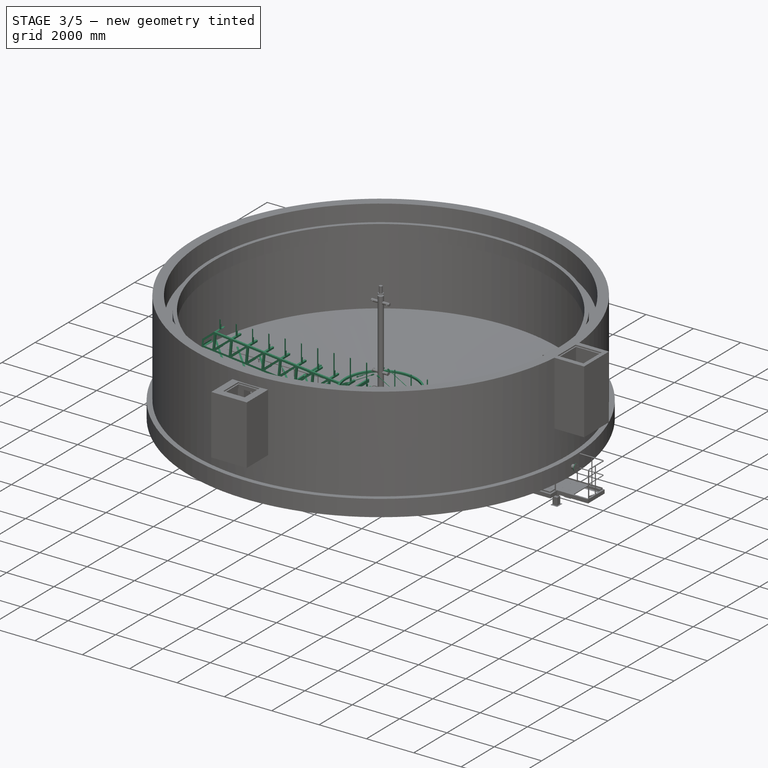
[diagram: stage 3 of 5 — iso view after this stage's code; geometry added in this stage tinted green]
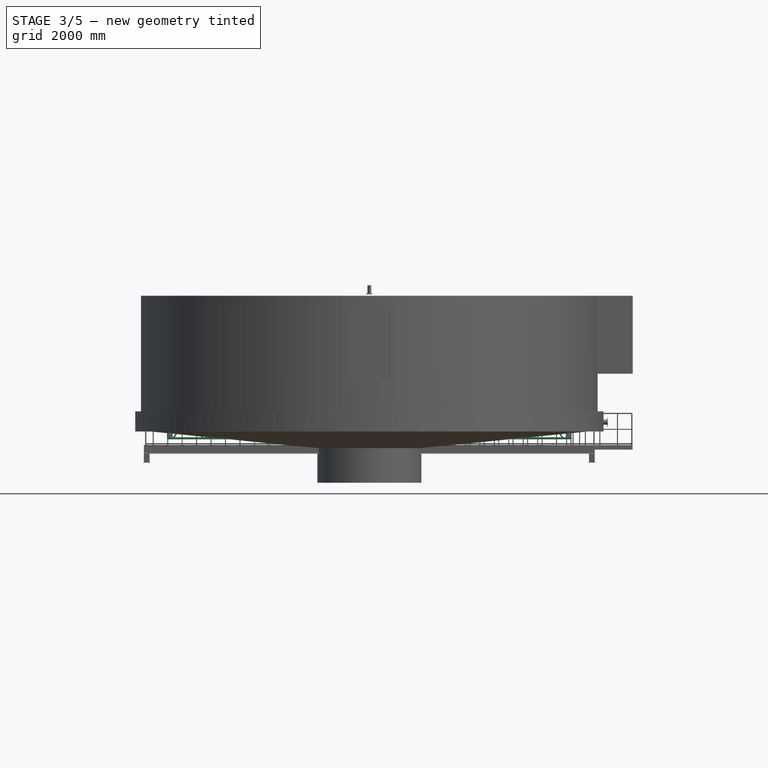
[diagram: stage 3 of 5 — front view after this stage's code; geometry added in this stage tinted green]
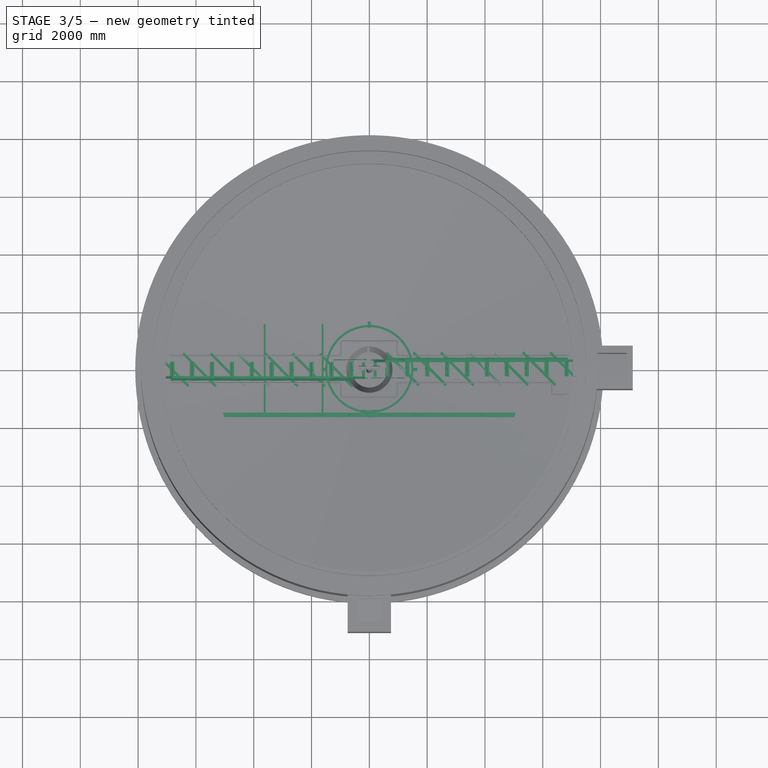
[diagram: stage 3 of 5 — top view after this stage's code; geometry added in this stage tinted green]
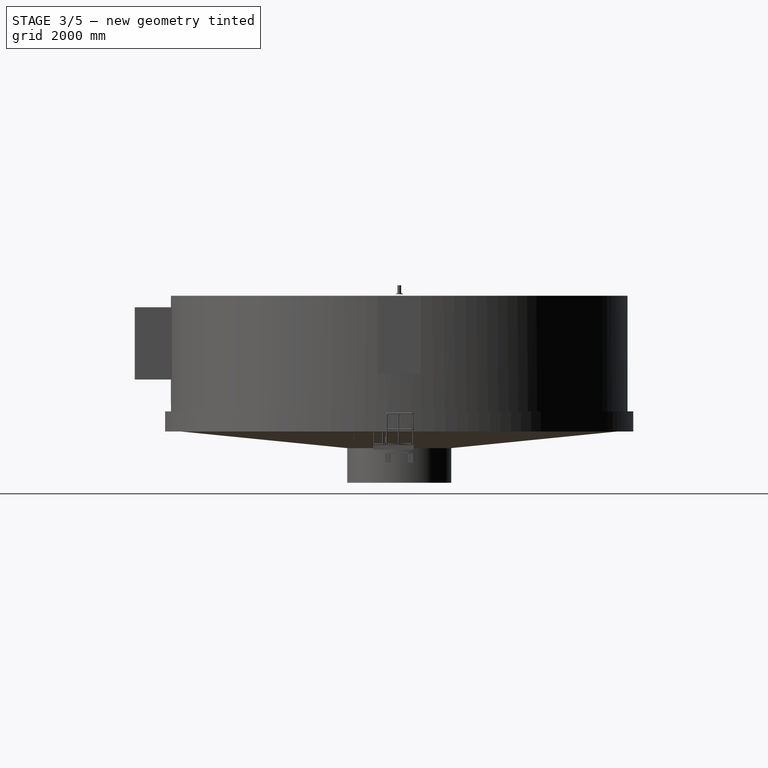
[diagram: stage 3 of 5 — right view after this stage's code; geometry added in this stage tinted green]
FEATURE [Part::FeaturePython] AngleSteel018  label="AngleSteel023"  # WARN: FeaturePython — macro-defined, semantics opaque (R4)
  A = 75
  B = 75
  L = 1000
  Placement = pos=(1450,0,1920) rot=(0,1,0;1.5708rad)
  Solid = false
  g0 = 7.85
  mass = 0
  size = 10
  standard = SS_Equal
  t = 6
  expr: .Placement.Base.x = Spreadsheet015.dia / 2
  expr: .Placement.Base.z = Spreadsheet015.h0
FEATURE [Part::Revolution] Revolve015
  Angle = 360
  Axis = (0,0,1)
  Base = (0,0,0)
  FaceMakerClass = Part::FaceMakerBullseye
  Solid = false
  Source = -> AngleSteel018
  Symmetric = false
FEATURE [Sketcher::SketchObject] Sketch124
  ArcFitTolerance = 0
  FullyConstrained = true
  MakeInternals = false
  MapMode = 5
  Placement = pos=(0,3.48e-13,0) rot=(0,0,1;0rad)
  sketch-geometry (4):
    g0: LineSegment StartX=-275 StartY=-1260.58 StartZ=0 EndX=-275 EndY=-1290.58 EndZ=0
    g1: LineSegment StartX=-275 StartY=-1260.58 StartZ=0 EndX=275 EndY=-1260.58 EndZ=0
    g2: LineSegment StartX=275 StartY=-1260.58 StartZ=0 EndX=275 EndY=-1290.58 EndZ=0
    g3: ArcOfCircle CenterX=0 CenterY=0 CenterZ=0 NormalX=0 NormalY=0 NormalZ=1 AngleXU=0 Radius=1319.55 StartAngle=4.50245 EndAngle=4.92233
  constraints (13):
    c: Vertical(g0)
    c: Coincident(g0,g1)
    c: Horizontal(g1)
    c: Coincident(g1,g2)
    c: Vertical(g2)
    c: Coincident(g3,g0)
    c: Coincident(g3,g2)
    c: PointOnObject(g-3,g0)
    c: PointOnObject(g-4,g2)
    c: DistanceY(g-3,g0) = 10
    c: DistanceY(g0,g0) = 30
    c: Coincident(g3,g-1)
    c: DistanceY(g-1,g1) = -1260.58  'brg'
FEATURE [Part::Extrusion] Extrude093  label="Extrude098"
  Base = -> Sketch124
  Dir = (0,0,1)
  DirMode = 2
  FaceMakerClass = Part::FaceMakerBullseye
  FaceMakerMode = 3
  LengthFwd = 5
  LengthRev = 0
  Placement = pos=(0,-150,1400) rot=(0,0,1;0rad)
  Solid = true
  Symmetric = false
  expr: .Placement.Base.y = -(<<Spreadsheet_feedWell>>.dia - 2600) / 2
  expr: .Placement.Base.z = <<Spreadsheet_feedWell>>.h0 - 520
FEATURE [Sketcher::SketchObject] Sketch125
  ArcFitTolerance = 0
  ExternalGeometry = -> [Extrude093]
  FullyConstrained = true
  MakeInternals = false
  MapMode = 5
  Placement = pos=(0,7.323e-12,1405) rot=(0,0,1;0rad)
  expr: .Placement.Base.z = <<Spreadsheet_feedWell>>.h0 - 520 + 5
  sketch-geometry (4):
    g0: LineSegment StartX=-275 StartY=-1325.58 StartZ=0 EndX=275 EndY=-1325.58 EndZ=0
    g1: LineSegment StartX=275 StartY=-1325.58 StartZ=0 EndX=275 EndY=-1315.58 EndZ=0
    g2: LineSegment StartX=275 StartY=-1315.58 StartZ=0 EndX=-275 EndY=-1315.58 EndZ=0
    g3: LineSegment StartX=-275 StartY=-1315.58 StartZ=0 EndX=-275 EndY=-1325.58 EndZ=0
  constraints (12):
    c: Coincident(g0,g1)
    c: Coincident(g1,g2)
    c: Coincident(g2,g3)
    c: Coincident(g3,g0)
    c: Horizontal(g0)
    c: Horizontal(g2)
    c: Vertical(g1)
    c: Vertical(g3)
    c: DistanceY(g1,g-3) = 5
    c: DistanceY(g1,g1) = 10
    c: PointOnObject(g1,g-4)
    c: PointOnObject(g2,g-5)
FEATURE [Part::Extrusion] Extrude094  label="Extrude099"
  Base = -> Sketch125
  Dir = (0,0,1)
  DirMode = 2
  FaceMakerClass = Part::FaceMakerBullseye
  FaceMakerMode = 3
  LengthFwd = 515
  LengthRev = 0
  Solid = true
  Symmetric = false
FEATURE [Sketcher::SketchObject] Sketch126
  ArcFitTolerance = 0
  FullyConstrained = true
  MakeInternals = false
  MapMode = 5
  Placement = pos=(0,-1530.41,7.07e-12) rot=(1,0,0;1.5708rad)
  sketch-geometry (4):
    g0: LineSegment StartX=-170 StartY=1920 StartZ=0 EndX=-170 EndY=1680 EndZ=0
    g1: ArcOfCircle CenterX=0 CenterY=1680 CenterZ=0 NormalX=0 NormalY=0 NormalZ=1 AngleXU=0 Radius=170 StartAngle=3.14159 EndAngle=6.28318
    g2: LineSegment StartX=170 StartY=1680 StartZ=0 EndX=170 EndY=1920 EndZ=0
    g3: LineSegment StartX=170 StartY=1920 StartZ=0 EndX=-170 EndY=1920 EndZ=0
  constraints (12):
    c: Vertical(g0)
    c: Tangent(g0,g1) = -1.5708
    c: Coincident(g1,g2)
    c: Vertical(g2)
    c: Coincident(g2,g3)
    c: Coincident(g3,g0)
    c: Horizontal(g3)
    c: Radius(g1) = 170
    c: DistanceX(g-2,g1) = 170
    c: PointOnObject(g2,g-3)
    c: Distance(g1,g3) = 240
    c: PointOnObject(g1,g-2)
FEATURE [Part::Extrusion] Extrude095  label="Extrude100"
  Base = -> Sketch126
  Dir = (0,-1,6.1e-15)
  DirMode = 2
  FaceMakerClass = Part::FaceMakerBullseye
  FaceMakerMode = 3
  LengthFwd = 1000
  LengthRev = 0
  Reversed = true
  Solid = true
  Symmetric = false
FEATURE [Part::Cut] Cut037  label="Cut001"
  Base = -> Extrude094
  Tool = -> Extrude095
FEATURE [Sketcher::SketchObject] Sketch127
  ArcFitTolerance = 0
  FullyConstrained = true
  MakeInternals = false
  MapMode = 5
  Placement = pos=(0,-1530.41,7.07e-12) rot=(1,0,0;1.5708rad)
  sketch-geometry (9):
    g0: Circle CenterX=-200 CenterY=1730 CenterZ=0 NormalX=0 NormalY=0 NormalZ=1 AngleXU=0 Radius=6
    g1: Circle CenterX=-200 CenterY=1870 CenterZ=0 NormalX=0 NormalY=0 NormalZ=1 AngleXU=0 Radius=6
    g2: Circle CenterX=200 CenterY=1870 CenterZ=0 NormalX=0 NormalY=0 NormalZ=1 AngleXU=0 Radius=6
    g3: Circle CenterX=200 CenterY=1730 CenterZ=0 NormalX=0 NormalY=0 NormalZ=1 AngleXU=0 Radius=6
    g4: Circle CenterX=-200 CenterY=1630 CenterZ=0 NormalX=0 NormalY=0 NormalZ=1 AngleXU=0 Radius=6
    g5: Circle CenterX=-200 CenterY=1460 CenterZ=0 NormalX=0 NormalY=0 NormalZ=1 AngleXU=0 Radius=6
    g6: Circle CenterX=200 CenterY=1630 CenterZ=0 NormalX=0 NormalY=0 NormalZ=1 AngleXU=0 Radius=6
    g7: Circle CenterX=200 CenterY=1460 CenterZ=0 NormalX=0 NormalY=0 NormalZ=1 AngleXU=0 Radius=6
    g8: Circle CenterX=0 CenterY=1460 CenterZ=0 NormalX=0 NormalY=0 NormalZ=1 AngleXU=0 Radius=6
  constraints (26):
    c: Radius(g0) = 6
    c: DistanceY(g-3,g0) = 50
    c: Radius(g1) = 6
    c: Vertical(g0,g1)
    c: Equal(g0,g3) = 6
    c: Equal(g1,g2) = 6
    c: Vertical(g3,g2)
    c: Radius(g4) = 6
    c: Equal(g4,g5) = 6
    c: DistanceY(g5,g4) = 170
    c: Vertical(g5,g4)
    c: Equal(g4,g6) = 6
    c: Equal(g6,g7) = 6
    c: DistanceY(g7,g6) = 170
    c: Vertical(g7,g6)
    c: PointOnObject(g8,g-2)
    c: Radius(g8) = 6
    c: Horizontal(g8,g5)
    c: DistanceY(g4,g-3) = 50
    c: Symmetric(g4,g6,g-2)
    c: Vertical(g4,g0)
    c: DistanceX(g5,g7) = 400
    c: DistanceY(g0,g1) = 140
    c: Horizontal(g0,g3)
    c: Horizontal(g1,g2)
    c: Vertical(g6,g3)
FEATURE [Part::Extrusion] Extrude096  label="Extrude101"
  Base = -> Sketch127
  Dir = (0,-1,6.1e-15)
  DirMode = 2
  FaceMakerClass = Part::FaceMakerBullseye
  FaceMakerMode = 3
  LengthFwd = 1000
  LengthRev = 0
  Reversed = true
  Solid = true
  Symmetric = false
FEATURE [Part::Cut] Cut002
  Base = -> Cut037
  Placement = pos=(0,-100,0) rot=(0,0,1;0rad)
  Tool = -> Extrude096
FEATURE [Spreadsheet::Sheet] Spreadsheet015  label="Spreadsheet_feedWell"
  cells = A2='tankDia   D0; B2(D0)=14500; A3='depth of water  hw; B3(hw)=3200; A4='feedWell dia  dia; B4(dia)==D0 * 0.2; A5='feedWell hight  h0; B5(h0)==hw * 0.6; A6='bracket hight h1; B6(h1)=1000; A7='bracket angle ba; B7(ba)=0
FEATURE [Sketcher::SketchObject] Sketch128
  ArcFitTolerance = 0
  FullyConstrained = false
  MakeInternals = false
  Placement = pos=(0,0,0) rot=(1,0,0;1.5708rad)
  sketch-geometry (23):
    g0: LineSegment StartX=-235 StartY=2.04e-14 StartZ=0 EndX=-166.5 EndY=2.04e-14 EndZ=0
    g1: LineSegment StartX=235 StartY=0 StartZ=0 EndX=235 EndY=240 EndZ=0
    g2: LineSegment StartX=235 StartY=240 StartZ=0 EndX=-235 EndY=240 EndZ=0
    g3: LineSegment StartX=-235 StartY=240 StartZ=0 EndX=-235 EndY=2.84e-14 EndZ=0
    g4: ArcOfCircle CenterX=0 CenterY=0 CenterZ=0 NormalX=0 NormalY=0 NormalZ=1 AngleXU=0 Radius=166.5 StartAngle=0 EndAngle=3.14159
    g5: ArcOfCircle CenterX=200 CenterY=200 CenterZ=0 NormalX=0 NormalY=0 NormalZ=1 AngleXU=0 Radius=7 StartAngle=-9e-16 EndAngle=3.14159
    g6: ArcOfCircle CenterX=200 CenterY=180 CenterZ=0 NormalX=0 NormalY=0 NormalZ=1 AngleXU=0 Radius=7 StartAngle=3.14159 EndAngle=6.28319
    g7: LineSegment StartX=193 StartY=200 StartZ=0 EndX=193 EndY=180 EndZ=0
    g8: LineSegment StartX=207 StartY=180 StartZ=0 EndX=207 EndY=200 EndZ=0
    g9: ArcOfCircle CenterX=200 CenterY=60 CenterZ=0 NormalX=0 NormalY=0 NormalZ=1 AngleXU=0 Radius=7 StartAngle=0 EndAngle=3.14159
    g10: ArcOfCircle CenterX=200 CenterY=40 CenterZ=0 NormalX=0 NormalY=0 NormalZ=1 AngleXU=0 Radius=7 StartAngle=3.14159 EndAngle=6.28319
    g11: LineSegment StartX=193 StartY=60 StartZ=0 EndX=193 EndY=40 EndZ=0
    g12: LineSegment StartX=207 StartY=40 StartZ=0 EndX=207 EndY=60 EndZ=0
    g13: ArcOfCircle CenterX=-200 CenterY=200.393 CenterZ=0 NormalX=0 NormalY=0 NormalZ=1 AngleXU=0 Radius=7 StartAngle=3e-16 EndAngle=3.14159
    g14: ArcOfCircle CenterX=-200 CenterY=180.393 CenterZ=0 NormalX=0 NormalY=0 NormalZ=1 AngleXU=0 Radius=7 StartAngle=3.14159 EndAngle=6.28319
    g15: LineSegment StartX=-207 StartY=200.393 StartZ=0 EndX=-207 EndY=180.393 EndZ=0
    g16: LineSegment StartX=-193 StartY=180.393 StartZ=0 EndX=-193 EndY=200.393 EndZ=0
    g17: ArcOfCircle CenterX=-200 CenterY=60.3929 CenterZ=0 NormalX=0 NormalY=0 NormalZ=1 AngleXU=0 Radius=7 StartAngle=0 EndAngle=3.14159
    g18: ArcOfCircle CenterX=-200 CenterY=40.3929 CenterZ=0 NormalX=0 NormalY=0 NormalZ=1 AngleXU=0 Radius=7 StartAngle=3.14159 EndAngle=6.28319
    g19: LineSegment StartX=-207 StartY=60.3929 StartZ=0 EndX=-207 EndY=40.3929 EndZ=0
    g20: LineSegment StartX=-193 StartY=40.3929 StartZ=0 EndX=-193 EndY=60.3929 EndZ=0
    g21: LineSegment [constr] StartX=207.004 StartY=200.734 StartZ=0 EndX=-193 EndY=200.393 EndZ=0
    g22: LineSegment StartX=166.5 StartY=0 StartZ=0 EndX=235 EndY=0 EndZ=0
  constraints (58):
    c: Coincident(g22,g1)
    c: Coincident(g1,g2)
    c: Coincident(g2,g3)
    c: Coincident(g3,g0)
    c: Horizontal(g0)
    c: Vertical(g1)
    c: Vertical(g3)
    c: PointOnObject(g0,g-1)
    c: Coincident(g4,g-1)
    c: Radius(g4) = 166.5
    c: DistanceX(g2,g2) = 470
    c: Symmetric(g1,g2,g-2)
    c: DistanceY(g1,g1) = 240
    c: DistanceX(g5,g5) = 14
    c: DistanceY(g7,g7) = 20
    c: DistanceY(g5,g1) = 40
    c: DistanceX(g4,g5) = 200
    c: Tangent(g9,g11) = -1.5708
    c: Tangent(g11,g10) = -1.5708
    c: Tangent(g10,g12) = -1.5708
    c: Tangent(g12,g9) = -1.5708
    c: Equal(g9,g10)
    c: Vertical(g11)
    c: Equal(g5,g9) = 14
    c: Equal(g7,g11) = 20
    c: Vertical(g9,g6)
    c: DistanceY(g9,g5) = 140
    c: Equal(g5,g13) = 14
    c: Equal(g7,g15) = 20
    c: Tangent(g17,g19) = -1.5708
    c: Tangent(g19,g18) = -1.5708
    c: Tangent(g18,g20) = -1.5708
    c: Tangent(g20,g17) = -1.5708
    c: Equal(g17,g18)
    c: Vertical(g19)
    c: Equal(g13,g17) = 14
    c: Equal(g15,g19) = 20
    c: Vertical(g17,g14)
    c: DistanceY(g17,g13) = 140
    c: Angle(g21) = -3.14074
    c: Coincident(g0,g4)
    c: Coincident(g22,g4)
    c: Horizontal(g22)
    c: PointOnObject(g1,g-1)
    c: Vertical(g16)
    c: Vertical(g15)
    c: Coincident(g13,g21)
    c: Tangent(g5,g8) = -1.5708
    c: Tangent(g16,g13) = -1.5708
    c: Tangent(g15,g14) = -1.5708
    c: Tangent(g16,g14) = -1.5708
    c: Tangent(g15,g13) = -1.5708
    c: DistanceX(g13,g4) = 200
    c: Vertical(g8)
    c: Vertical(g7)
    c: Tangent(g5,g7) = -1.5708
    c: Tangent(g7,g6) = -1.5708
    c: Tangent(g8,g6) = -1.5708
FEATURE [Part::Extrusion] Extrude097  label="Extrude102"
  Base = -> Sketch128
  Dir = (0,-1,2e-16)
  DirMode = 2
  FaceMakerClass = Part::FaceMakerBullseye
  FaceMakerMode = 3
  LengthFwd = 10
  LengthRev = 0
  Solid = true
  Symmetric = false
FEATURE [Sketcher::SketchObject] Sketch129
  ArcFitTolerance = 0
  ExternalGeometry = -> [Extrude097]
  FullyConstrained = false
  MakeInternals = false
  Placement = pos=(0,0,0) rot=(1,0,0;1.5708rad)
  sketch-geometry (26):
    g0: LineSegment StartX=-235 StartY=0 StartZ=0 EndX=-166.5 EndY=-2.04e-14 EndZ=0
    g1: LineSegment StartX=235 StartY=0 StartZ=0 EndX=235 EndY=-267.623 EndZ=0
    g2: LineSegment StartX=235 StartY=-267.623 StartZ=0 EndX=-235 EndY=-267.623 EndZ=0
    g3: LineSegment StartX=-235 StartY=-267.623 StartZ=0 EndX=-235 EndY=0 EndZ=0
    g4: ArcOfCircle CenterX=0 CenterY=-2.04e-14 CenterZ=0 NormalX=0 NormalY=0 NormalZ=1 AngleXU=0 Radius=166.5 StartAngle=3.14159 EndAngle=6.28319
    g5: ArcOfCircle CenterX=200 CenterY=-40 CenterZ=0 NormalX=0 NormalY=0 NormalZ=1 AngleXU=0 Radius=7 StartAngle=3e-16 EndAngle=3.14159
    g6: ArcOfCircle CenterX=200 CenterY=-60 CenterZ=0 NormalX=0 NormalY=0 NormalZ=1 AngleXU=0 Radius=7 StartAngle=3.14159 EndAngle=6.28319
    g7: LineSegment StartX=193 StartY=-40 StartZ=0 EndX=193 EndY=-60 EndZ=0
    g8: LineSegment StartX=207 StartY=-60 StartZ=0 EndX=207 EndY=-40 EndZ=0
    g9: ArcOfCircle CenterX=200 CenterY=-210 CenterZ=0 NormalX=0 NormalY=0 NormalZ=1 AngleXU=0 Radius=7 StartAngle=0 EndAngle=3.14159
    g10: ArcOfCircle CenterX=200 CenterY=-230 CenterZ=0 NormalX=0 NormalY=0 NormalZ=1 AngleXU=0 Radius=7 StartAngle=3.14159 EndAngle=6.28319
    g11: LineSegment StartX=193 StartY=-210 StartZ=0 EndX=193 EndY=-230 EndZ=0
    g12: LineSegment StartX=207 StartY=-230 StartZ=0 EndX=207 EndY=-210 EndZ=0
    g13: ArcOfCircle CenterX=-200 CenterY=-40 CenterZ=0 NormalX=0 NormalY=0 NormalZ=1 AngleXU=0 Radius=7 StartAngle=0 EndAngle=3.14159
    g14: ArcOfCircle CenterX=-200 CenterY=-60 CenterZ=0 NormalX=0 NormalY=0 NormalZ=1 AngleXU=0 Radius=7 StartAngle=3.14159 EndAngle=6.28319
    g15: LineSegment StartX=-207 StartY=-40 StartZ=0 EndX=-207 EndY=-60 EndZ=0
    g16: LineSegment StartX=-193 StartY=-60 StartZ=0 EndX=-193 EndY=-40 EndZ=0
    g17: ArcOfCircle CenterX=-200 CenterY=-210 CenterZ=0 NormalX=0 NormalY=0 NormalZ=1 AngleXU=0 Radius=7 StartAngle=1.4e-15 EndAngle=3.14159
    g18: ArcOfCircle CenterX=-200 CenterY=-230 CenterZ=0 NormalX=0 NormalY=0 NormalZ=1 AngleXU=0 Radius=7 StartAngle=3.14159 EndAngle=6.28319
    g19: LineSegment StartX=-207 StartY=-210 StartZ=0 EndX=-207 EndY=-230 EndZ=0
    g20: LineSegment StartX=-193 StartY=-230 StartZ=0 EndX=-193 EndY=-210 EndZ=0
    g21: LineSegment StartX=166.5 StartY=-2.04e-14 StartZ=0 EndX=235 EndY=0 EndZ=0
    g22: ArcOfCircle CenterX=0 CenterY=-210 CenterZ=0 NormalX=0 NormalY=0 NormalZ=1 AngleXU=0 Radius=7 StartAngle=-9e-16 EndAngle=3.14159
    g23: ArcOfCircle CenterX=0 CenterY=-230 CenterZ=0 NormalX=0 NormalY=0 NormalZ=1 AngleXU=0 Radius=7 StartAngle=3.14159 EndAngle=6.28319
    g24: LineSegment StartX=-7 StartY=-210 StartZ=0 EndX=-7 EndY=-230 EndZ=0
    g25: LineSegment StartX=7 StartY=-230 StartZ=0 EndX=7 EndY=-210 EndZ=0
  constraints (65):
    c: Coincident(g21,g1)
    c: Coincident(g1,g2)
    c: Coincident(g2,g3)
    c: Coincident(g3,g0)
    c: Horizontal(g2)
    c: Vertical(g1)
    c: Vertical(g3)
    c: Coincident(g21,g-3)
    c: Coincident(g0,g-4)
    c: Coincident(g4,g-1)
    c: Horizontal(g4,g4)
    c: Horizontal(g4,g4)
    c: Tangent(g5,g7) = -1.5708
    c: Tangent(g7,g6) = -1.5708
    c: Tangent(g6,g8) = -1.5708
    c: Tangent(g8,g5) = -1.5708
    c: Equal(g5,g6)
    c: Vertical(g7)
    c: DistanceY(g8,g8) = 20
    c: DistanceX(g5,g5) = 14
    c: Vertical(g5,g-5)
    c: DistanceY(g5,g4) = 40
    c: Tangent(g9,g11) = -1.5708
    c: Tangent(g11,g10) = -1.5708
    c: Tangent(g10,g12) = -1.5708
    c: Tangent(g12,g9) = -1.5708
    c: Equal(g9,g10)
    c: Vertical(g11)
    c: Equal(g8,g12) = 20
    c: Equal(g5,g9) = 14
    c: Vertical(g6,g9)
    c: Tangent(g13,g15) = -1.5708
    c: Tangent(g15,g14) = -1.5708
    c: Tangent(g14,g16) = -1.5708
    c: Tangent(g16,g13) = -1.5708
    c: Equal(g13,g14)
    c: Vertical(g15)
    c: Equal(g8,g16) = 20
    c: Equal(g5,g13) = 14
    c: Tangent(g17,g19) = -1.5708
    c: Tangent(g19,g18) = -1.5708
    c: Tangent(g18,g20) = -1.5708
    c: Tangent(g20,g17) = -1.5708
    c: Equal(g17,g18)
    c: Vertical(g19)
    c: Equal(g16,g20) = 20
    c: Equal(g13,g17) = 14
    c: Vertical(g14,g17)
    c: Tangent(g22,g24) = -1.5708
    c: Tangent(g24,g23) = -1.5708
    c: Tangent(g23,g25) = -1.5708
    c: Tangent(g25,g22) = -1.5708
    c: Equal(g22,g23)
    c: Vertical(g24)
    c: DistanceX(g22,g22) = 14
    c: DistanceY(g24,g24) = 20
    c: PointOnObject(g22,g-2)
    c: Horizontal(g9,g22)
    c: DistanceY(g9,g5) = 170
    c: DistanceY(g17,g13) = 170
    c: DistanceX(g14,g6) = 400
    c: DistanceY(g13,g0) = 40
    c: Coincident(g0,g4)
    c: Coincident(g4,g21)
    c: Radius(g4) = 166.5
FEATURE [Part::Extrusion] Extrude098  label="Extrude103"
  Base = -> Sketch129
  Dir = (0,-1,2e-16)
  DirMode = 2
  FaceMakerClass = Part::FaceMakerBullseye
  FaceMakerMode = 3
  LengthFwd = 10
  LengthRev = 0
  Solid = true
  Symmetric = false
FEATURE [App::Part] Part  label="pipeBrg"
  Group = -> [Sketch128,Sketch129,Extrude097,Extrude098]
  Origin = -> Origin061
  Placement = pos=(0,-1425.6,1680) rot=(0,0,1;0rad)
  expr: .Placement.Base.y = -<<Spreadsheet_feedWell>>.dia / 2 + 24.4
  expr: .Placement.Base.z = <<Spreadsheet_feedWell>>.h0 - 260 + 20
FEATURE [Sketcher::SketchObject] Sketch008
  ArcFitTolerance = 0
  FullyConstrained = false
  MakeInternals = false
  sketch-geometry (4):
    g0: LineSegment StartX=1299.04 StartY=50 StartZ=0 EndX=1507.04 EndY=50 EndZ=0
    g1: LineSegment StartX=1507.04 StartY=50 StartZ=0 EndX=1507.04 EndY=-50 EndZ=0
    g2: LineSegment StartX=1507.04 StartY=-50 StartZ=0 EndX=1299.04 EndY=-50 EndZ=0
    g3: ArcOfCircle CenterX=-0.0298456 CenterY=4.574e-13 CenterZ=0 NormalX=0 NormalY=0 NormalZ=1 AngleXU=0 Radius=1300.03 StartAngle=6.24472 EndAngle=6.32166
  constraints (12):
    c: Horizontal(g0)
    c: Coincident(g0,g1)
    c: Vertical(g1)
    c: Coincident(g1,g2)
    c: Horizontal(g2)
    c: DistanceY(g-1,g0) = 50
    c: DistanceY(g1,g1) = 100
    c: Coincident(g3,g2)
    c: Coincident(g3,g0)
    c: PointOnObject(g0,g-5)
    c: PointOnObject(g2,g-6)
    c: DistanceX(g0,g0) = 208
FEATURE [Part::Extrusion] Extrude099  label="Extrude104"
  Base = -> Sketch008
  Dir = (0,0,1)
  DirMode = 2
  FaceMakerClass = Part::FaceMakerBullseye
  FaceMakerMode = 3
  LengthFwd = 10
  LengthRev = 0
  Solid = true
  Symmetric = false
FEATURE [Sketcher::SketchObject] Sketch130
  ArcFitTolerance = 0
  ExternalGeometry = -> [Extrude099]
  FullyConstrained = true
  MakeInternals = false
  MapMode = 5
  Placement = pos=(0,0,10) rot=(0,0,1;0rad)
  sketch-geometry (8):
    g0: LineSegment StartX=1299.04 StartY=50 StartZ=0 EndX=1507.04 EndY=50 EndZ=0
    g1: LineSegment StartX=1507.04 StartY=50 StartZ=0 EndX=1507.04 EndY=45 EndZ=0
    g2: LineSegment StartX=1507.04 StartY=45 StartZ=0 EndX=1299.04 EndY=45 EndZ=0
    g3: LineSegment StartX=1299.04 StartY=45 StartZ=0 EndX=1299.04 EndY=50 EndZ=0
    g4: LineSegment StartX=1299.04 StartY=-50 StartZ=0 EndX=1507.04 EndY=-50 EndZ=0
    g5: LineSegment StartX=1507.04 StartY=-50 StartZ=0 EndX=1507.04 EndY=-45 EndZ=0
    g6: LineSegment StartX=1507.04 StartY=-45 StartZ=0 EndX=1299.04 EndY=-45 EndZ=0
    g7: LineSegment StartX=1299.04 StartY=-45 StartZ=0 EndX=1299.04 EndY=-50 EndZ=0
  constraints (22):
    c: Coincident(g0,g1)
    c: Coincident(g1,g2)
    c: Coincident(g2,g3)
    c: Coincident(g3,g0)
    c: Horizontal(g0)
    c: Horizontal(g2)
    c: Vertical(g1)
    c: Vertical(g3)
    c: Coincident(g4,g5)
    c: Coincident(g5,g6)
    c: Coincident(g6,g7)
    c: Coincident(g7,g4)
    c: Horizontal(g4)
    c: Horizontal(g6)
    c: Vertical(g5)
    c: Vertical(g7)
    c: Coincident(g0,g-3)
    c: DistanceY(g1,g1) = 5
    c: DistanceY(g5,g5) = 5
    c: Coincident(g4,g-3)
    c: Vertical(g2,g6)
    c: PointOnObject(g4,g-4)
FEATURE [Part::Extrusion] Extrude100  label="Extrude105"
  Base = -> Sketch130
  Dir = (0,0,1)
  DirMode = 2
  FaceMakerClass = Part::FaceMakerBullseye
  FaceMakerMode = 3
  LengthFwd = 200
  LengthRev = 0
  Solid = true
  Symmetric = false
FEATURE [Part::Chamfer] Chamfer
  Base = -> Extrude100
  EdgeLinks = -> Extrude100 [Edge7,Edge19]
  Edges = 2 edges: [Edge7 r1=130 r2=70,Edge19 r1=130 r2=70]
FEATURE [Part::Compound] Compound025  label="gusset001"
  Links = -> [Extrude099,Chamfer]
FEATURE [Sketcher::SketchObject] Sketch131
  ArcFitTolerance = 0
  ExternalGeometry = -> [Compound025]
  FullyConstrained = true
  MakeInternals = false
  MapMode = 5
  Placement = pos=(0,0,10) rot=(0,0,1;0rad)
  sketch-geometry (1):
    g0: Circle CenterX=1532.04 CenterY=0 CenterZ=0 NormalX=0 NormalY=0 NormalZ=1 AngleXU=0 Radius=7
  constraints (3):
    c: Diameter(g0) = 14
    c: PointOnObject(g0,g-1)
    c: Distance(g0,g-3) = 25
FEATURE [Part::Extrusion] Extrude101  label="Extrude106"
  Base = -> Sketch131
  Dir = (0,0,1)
  DirMode = 2
  FaceMakerClass = Part::FaceMakerBullseye
  FaceMakerMode = 3
  LengthFwd = 10
  LengthRev = 0
  Reversed = true
  Solid = true
  Symmetric = false
FEATURE [Part::Cut] Cut003
  Base = -> Compound025
  Placement = pos=(150,0,998.5) rot=(0,0,1;0rad)
  Tool = -> Extrude101
  expr: .Placement.Base.x = (<<Spreadsheet_feedWell>>.dia - 2600) / 2
  expr: .Placement.Base.z = Spreadsheet015.h1 - 1.5
FEATURE [Sketcher::SketchObject] Sketch132
  ArcFitTolerance = 0
  FullyConstrained = true
  MakeInternals = false
  Placement = pos=(0,0,0) rot=(1,0,0;1.5708rad)
  sketch-geometry (4):
    g0: LineSegment StartX=0 StartY=0 StartZ=0 EndX=150 EndY=0 EndZ=0
    g1: LineSegment StartX=150 StartY=0 StartZ=0 EndX=150 EndY=300 EndZ=0
    g2: LineSegment StartX=150 StartY=300 StartZ=0 EndX=0 EndY=300 EndZ=0
    g3: LineSegment StartX=0 StartY=300 StartZ=0 EndX=0 EndY=0 EndZ=0
  constraints (11):
    c: Coincident(g0,g1)
    c: Coincident(g1,g2)
    c: Coincident(g2,g3)
    c: Coincident(g3,g0)
    c: Horizontal(g0)
    c: Horizontal(g2)
    c: Vertical(g1)
    c: Vertical(g3)
    c: Coincident(g0,g-1)
    c: DistanceX(g2,g2) = 150
    c: DistanceY(g1,g1) = 300
FEATURE [Part::Extrusion] Extrude102  label="Extrude107"
  Base = -> Sketch132
  Dir = (0,-1,2e-16)
  DirMode = 2
  FaceMakerClass = Part::FaceMakerBullseye
  FaceMakerMode = 3
  LengthFwd = 6
  LengthRev = 0
  Solid = true
  Symmetric = true
FEATURE [Part::FeaturePython] AngleSteel003  # WARN: FeaturePython — macro-defined, semantics opaque (R4)
  A = 75
  B = 75
  L = 300
  Placement = pos=(117.5,40.5,0) rot=(0,0,1;3.14159rad)
  Solid = true
  g0 = 7.85
  mass = 2.05506
  size = 10
  standard = SS_Equal
  t = 6
FEATURE [Part::Mirroring] Mirror018  label="AngleSteel003 (mirrored)"
  Base = (200,0,0)
  Normal = (0,1,0)
  Source = -> AngleSteel003
FEATURE [Part::Compound] Compound026  label="gusset002"
  Links = -> [Extrude102,Mirror018,AngleSteel003]
  Placement = pos=(6950,-1569.5,750) rot=(0,0,1;0rad)
  expr: .Placement.Base.x = Spreadsheet015.D0 / 2 - 300
  expr: .Placement.Base.y = -<<Spreadsheet_feedWell>>.dia / 2 - 119.5
FEATURE [Part::FeaturePython] Array030  # Draft array (typed FeaturePython)
  AlwaysSyncPlacement = false
  Angle = 360
  ArrayType = 1
  Axis = (0,0,1)
  Base = -> Cut003
  Center = (0,0,0)
  Count = 4
  ExpandArray = false
  Fuse = false
  IntervalAxis = (0,0,0)
  IntervalX = (50,0,0)
  IntervalY = (0,50,0)
  IntervalZ = (0,0,50)
  NumberCircles = 3
  NumberPolar = 4
  NumberX = 2
  NumberY = 2
  NumberZ = 1
  PlacementList = 4 placements: [(150,0,998.5),(0,150,998.5),(-150,1.83697e-14,998.5),(-3.33067e-14,-150,998.5)]
  RadialDistance = 50
  ScaleList = (4) [(1,1,1),(1,1,1),(1,1,1),(1,1,1)]
  Symmetry = 1
  TangentialDistance = 25
  expr: .Placement.Rotation.Angle = <<Spreadsheet_feedWell>>.ba
FEATURE [App::Part] Part045  label="centerWell"
  Group = -> [Chamfer,Sketch127,Sketch131,Sketch130,Sketch008,Compound025,Revolve013,Revolve014,Revolve015,Extrude093,Extrude100,Extrude096,Extrude095,Extrude092,Extrude094,Extrude099,Extrude101,Sketch123,Sketch125,Sketch122,Sketch124,Sketch126,AngleSteel017,AngleSteel018,Cut003,Fusion,Cut037,Cut036,Cut002,Array030,Part]
  Origin = -> Origin062
  Placement = pos=(0,0,0) rot=(0,0,1;1.5708rad)
  mass = 839.882
FEATURE [Part::Mirroring] Mirror009  label="gusset001 (mirrored)"
  Base = (0,0,0)
  Normal = (1,0,0)
  Source = -> Compound026
FEATURE [Part::Mirroring] Mirror010  label="gusset001 (mirrored) (mirrored)"
  Base = (0,0,0)
  Normal = (0,1,0)
  Source = -> Mirror009
FEATURE [Part::Mirroring] Mirror011  label="gusset001 (mirrored)001"
  Base = (0,0,0)
  Normal = (0,1,0)
  Source = -> Compound026
FEATURE [Part::FeaturePython] ChannelSteel006  # WARN: FeaturePython — macro-defined, semantics opaque (R4)
  B = 65
  H = 125
  L = 3120
  Placement = pos=(1620,-1550,0) rot=(-1,0,0;1.5708rad)
  Solid = true
  g0 = 7.85
  mass = 37.688
  size = 2
  standard = SS
  t1 = 6
  t2 = 8
  expr: .Placement.Base.x = Spreadsheet015.dia / 2 + 170
  expr: .Placement.Base.y = -<<Spreadsheet_feedWell>>.dia / 2 - 100
  expr: L = Spreadsheet015.dia + 220
FEATURE [Sketcher::SketchObject] Sketch133
  ArcFitTolerance = 0
  FullyConstrained = false
  MakeInternals = false
  Placement = pos=(0,0,0) rot=(1,0,0;1.5708rad)
  expr: Constraints[2] = Spreadsheet016.Gb0
  expr: Constraints[5] = Spreadsheet016.rp0
  expr: Constraints[8] = Spreadsheet016.H0 - 60
  sketch-geometry (3):
    g0: LineSegment StartX=200 StartY=44.4 StartZ=0 EndX=766.667 EndY=734.4 EndZ=0
    g1: LineSegment StartX=766.667 StartY=734.4 StartZ=0 EndX=1333.33 EndY=44.4 EndZ=0
    g2: LineSegment [constr] StartX=766.667 StartY=734.4 StartZ=0 EndX=766.667 EndY=523.53 EndZ=0
  constraints (9):
    c: Coincident(g0,g1)
    c: Horizontal(g0,g1)
    c: DistanceX(g-1,g0) = 200
    c: Coincident(g2,g0)
    c: Symmetric(g1,g0,g2)
    c: DistanceX(g0,g1) = 1133.33
    c: DistanceY(g-1,g-4) = 14.4
    c: DistanceY(g-4,g0) = 30
    c: DistanceY(g0,g0) = 690
FEATURE [Sketcher::SketchObject] Sketch134
  ArcFitTolerance = 0
  ExternalGeometry = -> [Sketch133]
  FullyConstrained = true
  MakeInternals = false
  Placement = pos=(0,0,14.4) rot=(1,0,0;1.5708rad)
  expr: Constraints[23] = Spreadsheet016.Lb0
  expr: Constraints[24] = Spreadsheet016.H0 - 20
  expr: Constraints[25] = Spreadsheet016.Lb0 / 2
  sketch-geometry (9):
    g0: LineSegment StartX=200 StartY=71.2867 StartZ=0 EndX=708.804 EndY=740 EndZ=0
    g1: LineSegment StartX=725 StartY=678.713 StartZ=0 EndX=216.196 EndY=10 EndZ=0
    g2: LineSegment StartX=725 StartY=678.713 StartZ=0 EndX=1233.8 EndY=10 EndZ=0
    g3: LineSegment StartX=1250 StartY=71.2867 StartZ=0 EndX=741.196 EndY=740 EndZ=0
    g4: LineSegment StartX=708.804 StartY=740 StartZ=0 EndX=741.196 EndY=740 EndZ=0
    g5: LineSegment StartX=1233.8 StartY=10 StartZ=0 EndX=1250 EndY=10 EndZ=0
    g6: LineSegment StartX=1250 StartY=10 StartZ=0 EndX=1250 EndY=71.2867 EndZ=0
    g7: LineSegment StartX=216.196 StartY=10 StartZ=0 EndX=200 EndY=10 EndZ=0
    g8: LineSegment StartX=200 StartY=10 StartZ=0 EndX=200 EndY=71.2867 EndZ=0
  constraints (27):
    c: Coincident(g7,g8)
    c: Coincident(g0,g8)
    c: Coincident(g1,g7)
    c: Coincident(g0,g4)
    c: Coincident(g1,g2)
    c: Coincident(g3,g4)
    c: Coincident(g2,g5)
    c: Coincident(g5,g6)
    c: Coincident(g3,g6)
    c: Horizontal(g7)
    c: Horizontal(g4)
    c: Vertical(g8)
    c: Vertical(g7,g-4)
    c: Horizontal(g0,g3)
    c: Horizontal(g5)
    c: Horizontal(g1,g2)
    c: Vertical(g6)
    c: PointOnObject(g-3,g6)
    c: Parallel(g1,g-4)
    c: Parallel(g1,g0)
    c: Parallel(g2,g-3)
    c: Parallel(g-3,g3)
    c: Vertical(g1,g-4)
    c: Distance(g1,g0) = 50
    c: DistanceY(g2,g3) = 730
    c: Distance(g1,g-4) = 25
    c: DistanceY(g-5,g7) = 10
FEATURE [Part::Extrusion] Extrude015  label="Extrude108"
  Base = -> Sketch134
  Dir = (0,-1,2e-16)
  DirMode = 2
  FaceMakerClass = Part::FaceMakerBullseye
  FaceMakerMode = 3
  LengthFwd = 6
  LengthRev = 0
  Placement = pos=(0,28.8,0) rot=(0,0,1;0rad)
  Solid = true
  Symmetric = false
FEATURE [Part::FeaturePython] Array031  # Draft array (typed FeaturePython)
  AlwaysSyncPlacement = false
  Angle = 360
  ArrayType = 0
  Axis = (0,0,1)
  Base = -> Extrude015
  Center = (0,0,0)
  Count = 12
  ExpandArray = false
  Fuse = false
  IntervalAxis = (0,0,0)
  IntervalX = (1133.33,0,0)
  IntervalY = (0,100,0)
  IntervalZ = (0,0,100)
  NumberCircles = 3
  NumberPolar = 5
  NumberX = 12
  NumberY = 1
  NumberZ = 1
  PlacementList = 12 placements: arithmetic series from (0,28.8,0) step (1133.33,0,0) to (12466.7,28.8,0)
  RadialDistance = 50
  ScaleList = (12) [(1,1,1),(1,1,1),(1,1,1),(1,1,1),(1,1,1),(1,1,1),(1,1,1),(1,1,1),(1,1,1),(1,1,1),(1,1,1),(1,1,1)]
  Symmetry = 1
  TangentialDistance = 25
  expr: .IntervalX.x = Spreadsheet016.rp0
  expr: NumberX = Spreadsheet016.rn0
FEATURE [Spreadsheet::Sheet] Spreadsheet016  label="Spreadsheet_support"
  cells = A2='梁成H0; B2(H0)=750; A3='梁長L0; B3(L0)=14000; A4='玄材shp; B4(shp)='75x75x6; A5='玄材ゲージラインGL0; B5(GL0)=40; A6='ラチス材Lshp; B6(Lshp)='6x50; A7='ラチス材幅Lb0; B7(Lb0)=50; A8='ラチス材厚Lt0; B8(Gt0)=6; A9='ガセットプレート幅Gb0; B9(Gb0)=200; A10='ラチスピッチrp0; B10(rp0)==(L0 - 2 * Gb0) / rn0; A11='ラチス配列数rn0; B11(rn0)=12; B16='t; C16='A; D16='GLine; A17='40x40x3; B17=3; C17=40; D17=22; A18='40x40x5; B18=5; C18=40; D18=22; A19='50x50x4; B19=4; C19=50; D19=30; A20='50x50x6; B20=6; C20=50; D20=30; A21='65x65x6; B21=6; C21=65; D21=35; A22='65x65x8; B22=8; C22=65; D22=35; A23='75x75x6; B23=6; C23=75; D23=40; A24='75x75x9; B24=9; C24=75; D24=40; A25='75x75x12; B25=12; C25=75; D25=40; A26='90x90x7; B26=7; C26=90; D26=50; A27='90x90x10; B27=10; C27=90; D27=50; A28='90x90x13; B28=13; C28=90; D28=50; A29='100x100x7; B29=7; C29=100; D29=55; A30='100x100x10; B30=10; C30=100; D30=55; A31='100x100x13; B31=13; C31=100; D31=55; A34='6x38; B34=6; C34=38; A35='9x38; B35=9; C35=38; A36='6x44; B36=6; C36=44; A37='9x44; B37=9; C37=44; A38='4.5x50; B38=4.5; C38=50; A39='6x50; B39=6; C39=50; A40='9x50; B40=9; C40=50; A41='6x65; B41=6; C41=65; A42='9x65; B42=9; C42=65; A43='6x75; B43=6; C43=75; A44='9x75; B44=9; C44=75; A45='6x90; B45=6; C45=90; A46='9x90; B46=9; C46=90
FEATURE [Sketcher::SketchObject] Sketch135
  ArcFitTolerance = 0
  FullyConstrained = true
  MakeInternals = false
  Placement = pos=(0,0,14.4) rot=(1,0,0;1.5708rad)
  expr: Constraints[22] = Spreadsheet016.L0
  sketch-geometry (8):
    g0: LineSegment StartX=0 StartY=10 StartZ=0 EndX=200 EndY=10 EndZ=0
    g1: LineSegment StartX=200 StartY=10 StartZ=0 EndX=200 EndY=690 EndZ=0
    g2: LineSegment StartX=200 StartY=690 StartZ=0 EndX=0 EndY=690 EndZ=0
    g3: LineSegment StartX=0 StartY=690 StartZ=0 EndX=0 EndY=10 EndZ=0
    g4: LineSegment StartX=14000 StartY=690 StartZ=0 EndX=13800 EndY=690 EndZ=0
    g5: LineSegment StartX=13800 StartY=690 StartZ=0 EndX=13800 EndY=10 EndZ=0
    g6: LineSegment StartX=13800 StartY=10 StartZ=0 EndX=14000 EndY=10 EndZ=0
    g7: LineSegment StartX=14000 StartY=10 StartZ=0 EndX=14000 EndY=690 EndZ=0
  constraints (23):
    c: Coincident(g0,g1)
    c: Coincident(g1,g2)
    c: Coincident(g2,g3)
    c: Coincident(g3,g0)
    c: Horizontal(g0)
    c: Horizontal(g2)
    c: Vertical(g1)
    c: Vertical(g3)
    c: Vertical(g-1,g0)
    c: Coincident(g0,g-3)
    c: Horizontal(g1,g-4)
    c: Coincident(g4,g5)
    c: Coincident(g5,g6)
    c: Coincident(g6,g7)
    c: Coincident(g7,g4)
    c: Horizontal(g4)
    c: Horizontal(g6)
    c: Vertical(g5)
    c: Vertical(g7)
    c: Equal(g0,g6)
    c: Horizontal(g6,g0)
    c: Horizontal(g1,g4)
    c: DistanceX(g0,g6) = 14000
FEATURE [Part::Extrusion] Extrude016  label="Extrude109"
  Base = -> Sketch135
  Dir = (0,-1,2e-16)
  DirMode = 2
  FaceMakerClass = Part::FaceMakerBullseye
  FaceMakerMode = 3
  LengthFwd = 6
  LengthRev = 0
  Placement = pos=(0,28.8,0) rot=(0,0,1;0rad)
  Solid = true
  Symmetric = false
  expr: LengthFwd = Spreadsheet016.Gt0
FEATURE [Part::FeaturePython] AngleSteel004  # WARN: FeaturePython — macro-defined, semantics opaque (R4)
  A = 75
  B = 75
  L = 1000
  Placement = pos=(0,28.8,14.4) rot=(0,0,1;1.5708rad)
  Solid = false
  g0 = 7.85
  mass = 0
  size = 10
  standard = SS_Equal
  t = 8
FEATURE [Part::Mirroring] Mirror019  label="AngleSteel (mirrored)"
  Base = (-2.54e-14,114.396,14.3963)
  Normal = (0,0,-1)
  Placement = pos=(0,0,750) rot=(0,0,1;0rad)
  Source = -> AngleSteel004
  expr: .Placement.Base.z = Spreadsheet016.H0
FEATURE [Part::Extrusion] Extrude103  label="Extrude110"
  Base = -> AngleSteel004
  Dir = (-1,-2e-16,0)
  DirMode = 2
  FaceMakerClass = Part::FaceMakerBullseye
  FaceMakerMode = 3
  LengthFwd = 14000
  LengthRev = 0
  Reversed = true
  Solid = false
  Symmetric = false
  expr: LengthFwd = Spreadsheet016.L0
FEATURE [Part::Extrusion] Extrude104  label="Extrude111"
  Base = -> Mirror019
  Dir = (-1,-2e-16,0)
  DirMode = 2
  FaceMakerClass = Part::FaceMakerBullseye
  FaceMakerMode = 3
  LengthFwd = 14000
  LengthRev = 0
  Reversed = true
  Solid = false
  Symmetric = false
  expr: LengthFwd = Spreadsheet016.L0
FEATURE [Part::MultiFuse] Fusion001
  Shapes = -> [Extrude104,Extrude103]
FEATURE [Part::Mirroring] Mirror020  label="Fusion (mirrored)"
  Base = (-3.2e-15,28.7963,514.396)
  Normal = (0,-1,0)
  Placement = pos=(0,-6,0) rot=(0,0,1;0rad)
  Source = -> Fusion001
  expr: .Placement.Base.y = -Spreadsheet016.Gt0
FEATURE [Part::Compound] Compound027
  Links = -> [Mirror020,Fusion001]
FEATURE [App::Part] Part048  label="latticeBeam"
  Group = -> [Sketch133,Sketch135,Sketch134,Fusion001,Mirror019,Mirror020,Extrude015,Extrude016,Extrude104,Extrude103,Array031,AngleSteel004,Compound027]
  Origin = -> Origin065
  Placement = pos=(-7000,1550,484) rot=(0,0,1;0rad)
  expr: .Placement.Base.x = -<<Spreadsheet_support>>.L0 / 2
  expr: .Placement.Base.y = <<Spreadsheet_feedWell>>.dia / 2 + 100
  expr: .Placement.Base.z = 534 - (<<Spreadsheet_support>>.H0 - 700)
FEATURE [Part::Mirroring] Mirror012  label="latticeBeam (mirrored)"
  Base = (150,0,334)
  Normal = (0,-1,0)
  Source = -> Part048
FEATURE [Part::FeaturePython] Array032  # Draft array (typed FeaturePython)
  AlwaysSyncPlacement = false
  Angle = 360
  ArrayType = 0
  Axis = (0,0,1)
  Base = -> ChannelSteel006
  Center = (0,0,0)
  Count = 3
  ExpandArray = false
  Fuse = false
  IntervalAxis = (0,0,0)
  IntervalX = (2000,0,0)
  IntervalY = (0,100,0)
  IntervalZ = (0,0,100)
  NumberCircles = 3
  NumberPolar = 5
  NumberX = 3
  NumberY = 1
  NumberZ = 1
  Placement = pos=(0,0,1186) rot=(0,0,1;0rad)
  PlacementList = 3 placements: arithmetic series from (1620,-1550,0) step (2000,0,0) to (5620,-1550,0)
  RadialDistance = 50
  ScaleList = (3) [(1,1,1),(1,1,1),(1,1,1)]
  Symmetry = 1
  TangentialDistance = 25
FEATURE [Part::Mirroring] Mirror013  label="Array002 (mirrored)"
  Base = (0,0,0)
  Normal = (1,0,0)
  Source = -> Array032
FEATURE [Part::Part2DObjectPython] Circle001  # Draft 2D object (typed FeaturePython)
  Area = 18385.4
  FirstAngle = 0
  LastAngle = 0
  MakeFace = true
  Placement = pos=(8250,0,1100) rot=(0,1,0;1.5708rad)
  Radius = 76.5
  expr: .Placement.Base.x = <<Spreadsheet_Assy>>.dia / 2 + 750
FEATURE [Part::FeaturePython] Flange001  # WARN: FeaturePython — macro-defined, semantics opaque (R4)
  Placement = pos=(8250,0,1100) rot=(0,1,0;4.71239rad)
  dia = 3
  fittings = 00_Flange
  material = 0
  standard = 1
  expr: .Placement.Base.x = <<Spreadsheet_Assy>>.dia / 2 + 750
FEATURE [Part::FeaturePython] AngleSteel022  label="AngleSteel027"  # WARN: FeaturePython — macro-defined, semantics opaque (R4)
  A = 75
  B = 75
  L = 500
  Placement = pos=(487.5,-250,712.5) rot=(0.57735,-0.57735,-0.57735;4.18879rad)
  Solid = true
  g0 = 7.85
  mass = 3.4251
  size = 10
  standard = SS_Equal
  t = 6
  expr: .Placement.Base.x = Spreadsheet018.H0 - Spreadsheet018.h1 + 37.5
  expr: .Placement.Base.y = -Spreadsheet018.W0 / 2 + 75
  expr: .Placement.Base.z = Spreadsheet018.H0 - 37.5
  expr: L = Spreadsheet018.W0 - 150
FEATURE [Part::FeaturePython] Clone021  label="AngleSteel024"  # Draft clone (typed FeaturePython)
  AttacherType = Attacher::AttachEngine3D
  Fuse = false
  Objects = -> [AngleSteel022]
  Placement = pos=(37.5,-250,262.5) rot=(0.57735,-0.57735,-0.57735;4.18879rad)
  Scale = (1,1,1)
  expr: .Placement.Base.y = -Spreadsheet018.W0 / 2 + 75
  expr: .Placement.Base.z = Spreadsheet018.h1 - 37.5
FEATURE [Part::FeaturePython] Clone022  label="AngleSteel025"  # Draft clone (typed FeaturePython)
  AttacherType = Attacher::AttachEngine3D
  Fuse = false
  Objects = -> [AngleSteel022]
  Placement = pos=(37.5,-250,37.5) rot=(-1,0,0;1.5708rad)
  Scale = (1,1,1)
  expr: .Placement.Base.y = -Spreadsheet018.W0 / 2 + 75
FEATURE [Part::FeaturePython] Clone023  label="AngleSteel006"  # Draft clone (typed FeaturePython)
  AttacherType = Attacher::AttachEngine3D
  Fuse = false
  Objects = -> [AngleSteel022]
  Placement = pos=(7162.5,-250,37.54) rot=(0.57735,0.57735,0.57735;4.18879rad)
  Scale = (1,1,1)
  expr: .Placement.Base.x = Spreadsheet018.L0 - 37.5
  expr: .Placement.Base.y = -Spreadsheet018.W0 / 2 + 75
FEATURE [Part::FeaturePython] Clone024  label="AngleSteel005"  # Draft clone (typed FeaturePython)
  AttacherType = Attacher::AttachEngine3D
  Fuse = false
  Objects = -> [AngleSteel022]
  Placement = pos=(487.5,-250,37.5) rot=(-1,0,0;1.5708rad)
  Scale = (1,1,1)
  expr: .Placement.Base.x = Spreadsheet018.H0 - Spreadsheet018.h1 + 37.5
  expr: .Placement.Base.y = -Spreadsheet018.W0 / 2 + 75
FEATURE [Part::FeaturePython] Array036  label="bottmMember001"  # Draft array (typed FeaturePython)
  AlwaysSyncPlacement = false
  Angle = 360
  ArrayType = 0
  Axis = (0,0,1)
  Base = -> Clone024
  Center = (0,0,0)
  Count = 10
  ExpandArray = false
  Fuse = false
  IntervalAxis = (0,0,0)
  IntervalX = (691.667,0,0)
  IntervalY = (0,100,0)
  IntervalZ = (0,0,100)
  NumberCircles = 3
  NumberPolar = 5
  NumberX = 10
  NumberY = 1
  NumberZ = 1
  PlacementList = 10 placements: arithmetic series from (487.5,-250,37.5) step (691.667,0,0) to (6712.5,-250,37.5)
  RadialDistance = 50
  ScaleList = (10) [(1,1,1),(1,1,1),(1,1,1),(1,1,1),(1,1,1),(1,1,1),(1,1,1),(1,1,1),(1,1,1),(1,1,1)]
  Symmetry = 1
  TangentialDistance = 25
  expr: .IntervalX.x = Spreadsheet018.p0
  expr: NumberX = Spreadsheet018.n0
FEATURE [Part::FeaturePython] Clone025  label="AngleSteel026"  # Draft clone (typed FeaturePython)
  AttacherType = Attacher::AttachEngine3D
  Fuse = false
  Objects = -> [AngleSteel022]
  Placement = pos=(6712.5,-250,712.5) rot=(0,0.707107,0.707107;3.14159rad)
  Scale = (1,1,1)
  expr: .Placement.Base.x = Spreadsheet018.L0 - (Spreadsheet018.H0 - Spreadsheet018.h1) - 37.5
  expr: .Placement.Base.y = -Spreadsheet018.W0 / 2 + 75
  expr: .Placement.Base.z = Spreadsheet018.H0 - 37.5
FEATURE [Part::FeaturePython] Array037  label="topMember001"  # Draft array (typed FeaturePython)
  AlwaysSyncPlacement = false
  Angle = 360
  ArrayType = 0
  Axis = (0,0,1)
  Base = -> AngleSteel022
  Center = (0,0,0)
  Count = 9
  ExpandArray = false
  Fuse = false
  IntervalAxis = (0,0,0)
  IntervalX = (691.667,0,0)
  IntervalY = (0,100,0)
  IntervalZ = (0,0,100)
  NumberCircles = 3
  NumberPolar = 5
  NumberX = 9
  NumberY = 1
  NumberZ = 1
  PlacementList = 9 placements: arithmetic series from (487.5,-250,712.5) step (691.667,0,0) to (6020.83,-250,712.5)
  RadialDistance = 50
  ScaleList = (9) [(1,1,1),(1,1,1),(1,1,1),(1,1,1),(1,1,1),(1,1,1),(1,1,1),(1,1,1),(1,1,1)]
  Symmetry = 1
  TangentialDistance = 25
  expr: .IntervalX.x = <<Spreadsheet018>>.p0
  expr: NumberX = Spreadsheet018.n0 - 1
FEATURE [Sketcher::SketchObject] Sketch149
  ArcFitTolerance = 0
  FullyConstrained = false
  MakeInternals = false
  Placement = pos=(0,0,0) rot=(1,0,0;1.5708rad)
  sketch-geometry (7):
    g0: LineSegment StartX=0 StartY=36.614 StartZ=0 EndX=0 EndY=161.614 EndZ=0
    g1: LineSegment StartX=0 StartY=161.614 StartZ=0 EndX=-30 EndY=161.614 EndZ=0
    g2: LineSegment StartX=-30 StartY=161.614 StartZ=0 EndX=-95.0179 EndY=130.728 EndZ=0
    g3: ArcOfCircle CenterX=-80 CenterY=99.114 CenterZ=0 NormalX=0 NormalY=0 NormalZ=1 AngleXU=0 Radius=35 StartAngle=2.01427 EndAngle=4.26891
    g4: LineSegment StartX=-95.0179 StartY=67.4997 StartZ=0 EndX=-30 EndY=36.614 EndZ=0
    g5: LineSegment StartX=-30 StartY=36.614 StartZ=0 EndX=0 EndY=36.614 EndZ=0
    g6: Circle CenterX=-80 CenterY=99.114 CenterZ=0 NormalX=0 NormalY=0 NormalZ=1 AngleXU=0 Radius=15
  constraints (18):
    c: Vertical(g0)
    c: Coincident(g0,g1)
    c: Horizontal(g1)
    c: Coincident(g1,g2)
    c: Tangent(g2,g3) = -1.5708
    c: Coincident(g4,g5)
    c: Coincident(g5,g0)
    c: Coincident(g6,g3)
    c: Horizontal(g5)
    c: PointOnObject(g0,g-2)
    c: DistanceY(g0,g0) = 125
    c: Equal(g1,g5)
    c: DistanceX(g1,g1) = 30
    c: Tangent(g3,g4) = -1.5708
    c: Distance(g3,g0) = 80
    c: Radius(g6) = 15
    c: Radius(g3) = 35
    c: Equal(g2,g4)
FEATURE [Part::Extrusion] Extrude115  label="bracketBottom001"
  Base = -> Sketch149
  Dir = (0,-1,2e-16)
  DirMode = 2
  FaceMakerClass = Part::FaceMakerBullseye
  FaceMakerMode = 3
  LengthFwd = 16
  LengthRev = 0
  Reversed = true
  Solid = true
  Symmetric = false
FEATURE [Part::FeaturePython] AngleSteel023  label="AngleSteel028"  # WARN: FeaturePython — macro-defined, semantics opaque (R4)
  A = 75
  B = 75
  L = 980.246
  Placement = pos=(471.445,-37.5,729.021) rot=(0,1,0;2.34526rad)
  Solid = true
  g0 = 7.85
  mass = 6.71489
  size = 10
  standard = SS_Equal
  t = 6
  expr: .Placement.Base.x = Spreadsheet018.H0 - Spreadsheet018.h1 + Spreadsheet018.lx
  expr: .Placement.Base.z = Spreadsheet018.H0 - Spreadsheet018.lz
  expr: .Placement.Rotation.Angle = Spreadsheet018.sita + 90
  expr: L = Spreadsheet018.l2 - 40
FEATURE [Part::FeaturePython] Array038  label="diagonalMember001"  # Draft array (typed FeaturePython)
  AlwaysSyncPlacement = false
  Angle = 360
  ArrayType = 0
  Axis = (0,0,1)
  Base = -> AngleSteel023
  Center = (0,0,0)
  Count = 9
  ExpandArray = false
  Fuse = false
  IntervalAxis = (0,0,0)
  IntervalX = (691.667,0,0)
  IntervalY = (0,100,0)
  IntervalZ = (0,0,100)
  NumberCircles = 3
  NumberPolar = 5
  NumberX = 9
  NumberY = 1
  NumberZ = 1
  PlacementList = 9 placements: arithmetic series from (471.445,-37.5,729.021) step (691.667,0,0) to (6004.78,-37.5,729.021)
  RadialDistance = 50
  ScaleList = (9) [(1,1,1),(1,1,1),(1,1,1),(1,1,1),(1,1,1),(1,1,1),(1,1,1),(1,1,1),(1,1,1)]
  Symmetry = 1
  TangentialDistance = 25
  expr: .IntervalX.x = Spreadsheet018.p0
  expr: NumberX = Spreadsheet018.n0 - 1
FEATURE [Part::FeaturePython] AngleSteel024  label="AngleSteel029"  # WARN: FeaturePython — macro-defined, semantics opaque (R4)
  A = 75
  B = 75
  L = 720
  Placement = pos=(487.5,43.5,15) rot=(0,0,1;1.5708rad)
  Solid = true
  g0 = 7.85
  mass = 4.93215
  size = 10
  standard = SS_Equal
  t = 6
  expr: .Placement.Base.x = Spreadsheet018.H0 - Spreadsheet018.h1 + 37.5
  expr: L = Spreadsheet018.H0 - 30
FEATURE [Part::FeaturePython] Array039  label="verticalMember001"  # Draft array (typed FeaturePython)
  AlwaysSyncPlacement = false
  Angle = 360
  ArrayType = 0
  Axis = (0,0,1)
  Base = -> AngleSteel024
  Center = (0,0,0)
  Count = 10
  ExpandArray = false
  Fuse = false
  IntervalAxis = (0,0,0)
  IntervalX = (691.667,0,0)
  IntervalY = (0,100,0)
  IntervalZ = (0,0,100)
  NumberCircles = 3
  NumberPolar = 5
  NumberX = 10
  NumberY = 1
  NumberZ = 1
  PlacementList = 10 placements: arithmetic series from (487.5,43.5,15) step (691.667,0,0) to (6712.5,43.5,15)
  RadialDistance = 50
  ScaleList = (10) [(1,1,1),(1,1,1),(1,1,1),(1,1,1),(1,1,1),(1,1,1),(1,1,1),(1,1,1),(1,1,1),(1,1,1)]
  Symmetry = 1
  TangentialDistance = 25
  expr: .IntervalX.x = Spreadsheet018.p0
  expr: NumberX = Spreadsheet018.n0
FEATURE [Sketcher::SketchObject] Sketch150
  ArcFitTolerance = 0
  AttachmentSupport = -> [XZ_Plane071]
  FullyConstrained = true
  MakeInternals = false
  MapMode = 5
  Placement = pos=(0,0,0) rot=(1,0,0;1.5708rad)
  expr: Constraints[12] = Spreadsheet018.L0
  expr: Constraints[15] = Spreadsheet018.h1
  expr: Constraints[16] = Spreadsheet018.H0
  sketch-geometry (6):
    g0: LineSegment StartX=0 StartY=0 StartZ=0 EndX=0 EndY=300 EndZ=0
    g1: LineSegment StartX=0 StartY=300 StartZ=0 EndX=450 EndY=750 EndZ=0
    g2: LineSegment StartX=450 StartY=750 StartZ=0 EndX=6750 EndY=750 EndZ=0
    g3: LineSegment StartX=6750 StartY=750 StartZ=0 EndX=7200 EndY=300 EndZ=0
    g4: LineSegment StartX=7200 StartY=300 StartZ=0 EndX=7200 EndY=0 EndZ=0
    g5: LineSegment StartX=7200 StartY=0 StartZ=0 EndX=0 EndY=0 EndZ=0
  constraints (18):
    c: PointOnObject(g0,g-2)
    c: PointOnObject(g0,g-2)
    c: Coincident(g0,g1)
    c: Coincident(g1,g2)
    c: Horizontal(g2)
    c: Coincident(g2,g3)
    c: Coincident(g3,g4)
    c: PointOnObject(g4,g-1)
    c: Vertical(g4)
    c: Coincident(g4,g5)
    c: Coincident(g5,g0)
    c: Horizontal(g5)
    c: Distance(g5) = 7200
    c: Angle(g-2,g1) = 2.35619
    c: Angle(g2,g3) = 2.35619
    c: DistanceY(g0,g0) = 300
    c: Distance(g2,g5) = 750
    c: Equal(g4,g0)
FEATURE [Sketcher::SketchObject] Sketch148
  ArcFitTolerance = 0
  ExternalGeometry = -> [Sketch150,AngleSteel022,AngleSteel003]
  FullyConstrained = true
  MakeInternals = false
  Placement = pos=(0,0,0) rot=(1,0,0;1.5708rad)
  expr: Constraints[15] = Spreadsheet018.H0 - Spreadsheet018.h1 + Spreadsheet018.p0 - 50
  sketch-geometry (6):
    g0: LineSegment StartX=1291.67 StartY=750 StartZ=0 EndX=1291.67 EndY=780 EndZ=0
    g1: LineSegment StartX=1291.67 StartY=780 StartZ=0 EndX=1146.36 EndY=878.931 EndZ=0
    g2: ArcOfCircle CenterX=1126.67 CenterY=850 CenterZ=0 NormalX=0 NormalY=0 NormalZ=1 AngleXU=0 Radius=35 StartAngle=0.97303 EndAngle=3.14159
    g3: Circle CenterX=1126.67 CenterY=850 CenterZ=0 NormalX=0 NormalY=0 NormalZ=1 AngleXU=0 Radius=15
    g4: LineSegment StartX=1091.67 StartY=850 StartZ=0 EndX=1091.67 EndY=750 EndZ=0
    g5: LineSegment StartX=1091.67 StartY=750 StartZ=0 EndX=1291.67 EndY=750 EndZ=0
  constraints (16):
    c: Coincident(g0,g1)
    c: Tangent(g1,g2) = -1.5708
    c: Coincident(g3,g2)
    c: Vertical(g0)
    c: DistanceY(g0,g0) = 30
    c: Radius(g3) = 15
    c: Radius(g2) = 35
    c: DistanceX(g2,g0) = 200
    c: PointOnObject(g4,g-3)
    c: PointOnObject(g0,g-3)
    c: Coincident(g5,g4)
    c: Coincident(g5,g0)
    c: Vertical(g4)
    c: Tangent(g4,g2) = -1.5708
    c: DistanceY(g4,g2) = 100
    c: Distance(g4,g-2) = 1091.67
FEATURE [Part::Extrusion] Extrude114  label="bracketTop001"
  Base = -> Sketch148
  Dir = (0,-1,2e-16)
  DirMode = 2
  FaceMakerClass = Part::FaceMakerBullseye
  FaceMakerMode = 3
  LengthFwd = 16
  LengthRev = 0
  Reversed = true
  Solid = true
  Symmetric = false
FEATURE [Spreadsheet::Sheet] Spreadsheet018
  cells = A2='L0; B2(L0)=7200; A3='H0; B3(H0)=750; A4='h1; B4(h1)=300; A5='W0; B5(W0)=650; A6='div n0; B6(n0)=10; A7='p0; B7(p0)=691.666666666667; A8='sita; B8(sita)=44.3736697771532; A9='l2; B9(l2)=1020.2464299265; A10='lx; B10(lx)=21.4450207675544; A11='lz; B11(lz)=20.9788246639119; A12='beta; B12(beta)=5.7; A13='picketFence  pl; B13(pk)=1000; A14='bradePosition br; B14(br)=950; A15='no of brade n0; B15(n00)=7; A16='bradeSpacing; B16(brs)=950
FEATURE [Part::FeaturePython] AngleSteel025  label="AngleSteel030"  # WARN: FeaturePython — macro-defined, semantics opaque (R4)
  A = 75
  B = 75
  L = 1000
  Placement = pos=(0,0,0) rot=(0,0,1;1.5708rad)
  Solid = false
  g0 = 7.85
  mass = 0
  size = 10
  standard = SS_Equal
  t = 6
FEATURE [Part::Sweep] Sweep015  label="mainMaterial001"
  Frenet = false
  Sections = -> [AngleSteel025]
  Solid = true
  Spine = -> Sketch150 [Edge6,Edge5,Edge4,Edge3,Edge2,Edge1]
  Transition = 1
FEATURE [Part::Compound] Compound032  label="rake003"
  Links = -> [Sweep015,Array039,Array038,Extrude115,Extrude114]
  Placement = pos=(0,-325,0) rot=(0,0,1;0rad)
  expr: .Placement.Base.y = -Spreadsheet018.W0 / 2
FEATURE [Part::Mirroring] Mirror022  label="rake002"
  Base = (0,-8.88e-14,400)
  Normal = (0,-1,0)
  Source = -> Compound032
FEATURE [Part::FeaturePython] Array040  label="picketFenceReciever001"  # Draft array (typed FeaturePython)
  AlwaysSyncPlacement = false
  Angle = 360
  ArrayType = 0
  Axis = (0,0,1)
  Base = -> Cut040
  Center = (0,0,0)
  Count = 10
  ExpandArray = false
  Fuse = false
  IntervalAxis = (0,0,0)
  IntervalX = (691.667,0,0)
  IntervalY = (0,100,0)
  IntervalZ = (0,0,100)
  NumberCircles = 3
  NumberPolar = 5
  NumberX = 10
  NumberY = 1
  NumberZ = 1
  PlacementList = 10 placements: arithmetic series from (450,0,750) step (691.667,0,0) to (6675,0,750)
  RadialDistance = 50
  ScaleList = (10) [(1,1,1),(1,1,1),(1,1,1),(1,1,1),(1,1,1),(1,1,1),(1,1,1),(1,1,1),(1,1,1),(1,1,1)]
  Symmetry = 1
  TangentialDistance = 25
  expr: .IntervalX.x = Spreadsheet018.p0
  expr: NumberX = Spreadsheet018.n0
FEATURE [App::Part] Part055  label="rakeAssy"
  Group = -> [Part054,Part052,Array006,Spreadsheet018,Part056,Clone031]
  Origin = -> Origin074
  Placement = pos=(179.477,-2.274e-13,949.681) rot=(0,1,0;-0.100007rad)
  mass = 598.038
FEATURE [Part::FeaturePython] Array041  # Draft array (typed FeaturePython)
  AlwaysSyncPlacement = false
  Angle = 360
  ArrayType = 1
  Axis = (0,0,1)
  Base = -> Part055
  Center = (0,0,6000)
  Count = 2
  ExpandArray = false
  Fuse = true
  IntervalAxis = (0,0,0)
  IntervalX = (50,0,0)
  IntervalY = (0,50,0)
  IntervalZ = (0,0,50)
  NumberCircles = 3
  NumberPolar = 2
  NumberX = 2
  NumberY = 2
  NumberZ = 1
  PlacementList = 2 placements: [(179.477,-2.274e-13,949.681),(-179.477,2.4938e-13,949.681)]
  RadialDistance = 50
  ScaleList = (2) [(1,1,1),(1,1,1)]
  Symmetry = 1
  TangentialDistance = 25
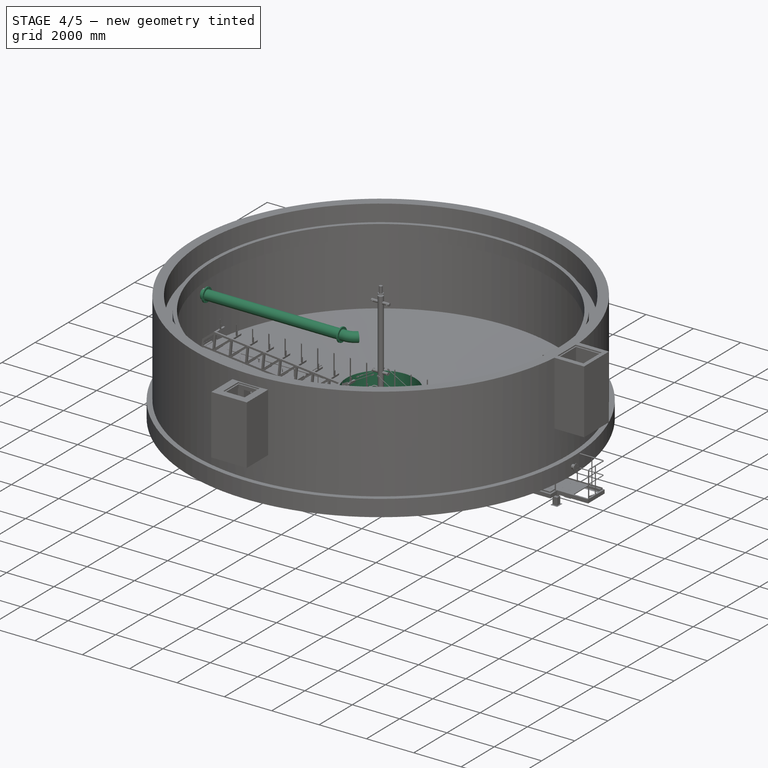
[diagram: stage 4 of 5 — iso view after this stage's code; geometry added in this stage tinted green]
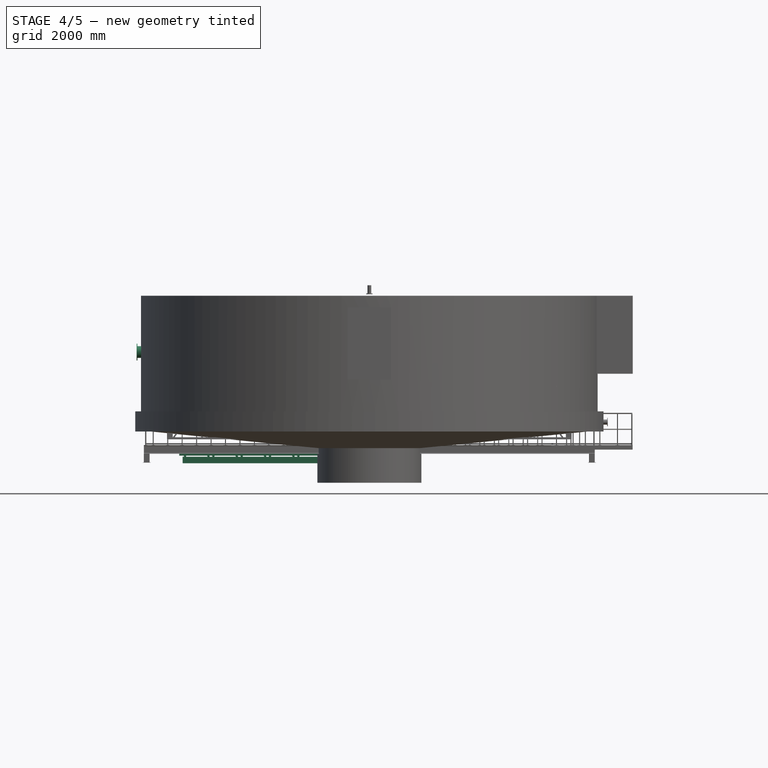
[diagram: stage 4 of 5 — front view after this stage's code; geometry added in this stage tinted green]
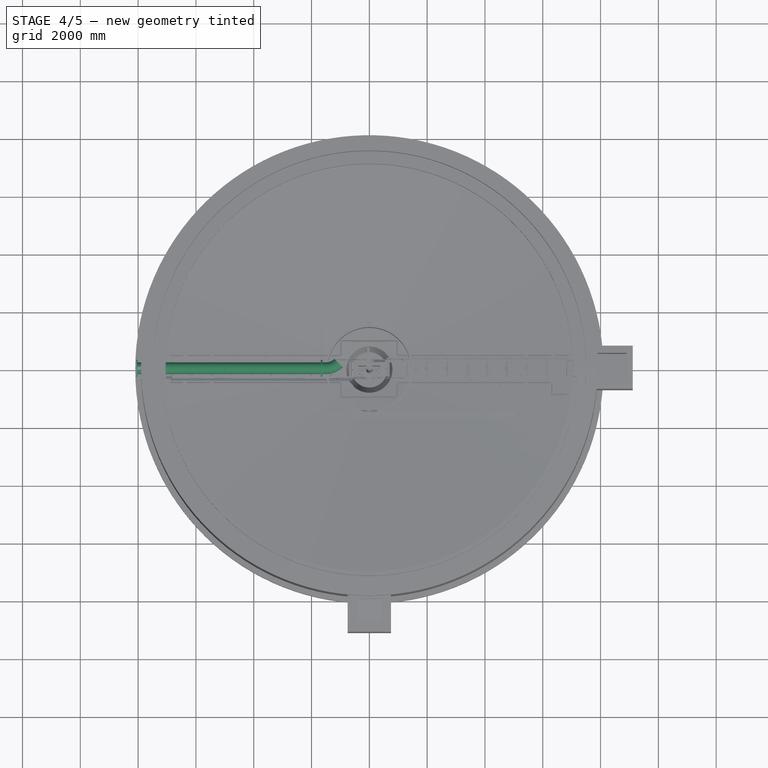
[diagram: stage 4 of 5 — top view after this stage's code; geometry added in this stage tinted green]
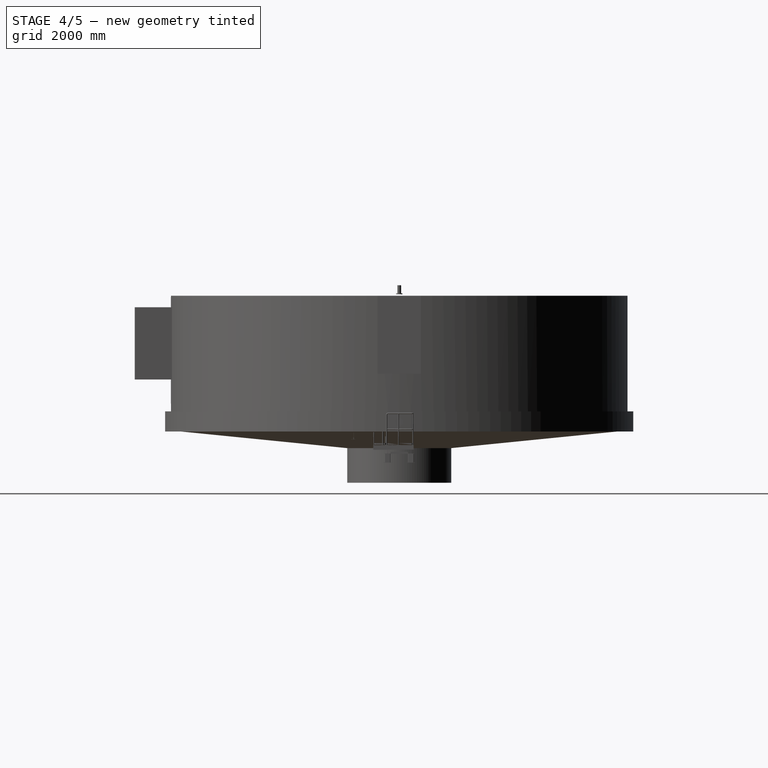
[diagram: stage 4 of 5 — right view after this stage's code; geometry added in this stage tinted green]
FEATURE [App::Part] Part004  label="buffle"
  Group = -> [Spreadsheet001,Revolve001,Sketch016,Sketch017,Sketch015,Extrude007,Extrude006,AngleSteel001,Revolve002,AngleSteel002,Mirror002,Compound003,Array003,Compound004]
  Origin = -> Origin008
  Placement = pos=(0,0,4717) rot=(0,0,1;0rad)
  mass = 728.071
FEATURE [Part::FeaturePython] SquarePipe  # WARN: FeaturePython — macro-defined, semantics opaque (R4)
  A = 125
  B = 125
  L = 6570
  Placement = pos=(0,0,0) rot=(0,-1,0;1.5708rad)
  Solid = true
  g0 = 7.85
  mass = 120.458
  size = 39
  standard = SS
  t = 1
  expr: L = Spreadsheet002.L0
FEATURE [Sketcher::SketchObject] Sketch018
  ArcFitTolerance = 0
  AttachmentSupport = -> [SquarePipe]
  ExternalGeometry = -> [SquarePipe]
  FullyConstrained = true
  MakeInternals = false
  MapMode = 5
  Placement = pos=(-6570,0,0) rot=(0,-1,0;1.5708rad)
  sketch-geometry (4):
    g0: LineSegment StartX=-62.5 StartY=-62.5 StartZ=0 EndX=62.5 EndY=-62.5 EndZ=0
    g1: LineSegment StartX=62.5 StartY=-62.5 StartZ=0 EndX=62.5 EndY=62.5 EndZ=0
    g2: LineSegment StartX=62.5 StartY=62.5 StartZ=0 EndX=-62.5 EndY=62.5 EndZ=0
    g3: LineSegment StartX=-62.5 StartY=62.5 StartZ=0 EndX=-62.5 EndY=-62.5 EndZ=0
  constraints (11):
    c: Coincident(g0,g1)
    c: Coincident(g1,g2)
    c: Coincident(g2,g3)
    c: Coincident(g3,g0)
    c: Horizontal(g0)
    c: Horizontal(g2)
    c: Vertical(g3)
    c: DistanceX(g2,g2) = 125
    c: Equal(g1,g0)
    c: PointOnObject(g-4,g2)
    c: Tangent(g-3,g1) = -1.5708
FEATURE [Part::Extrusion] Extrude008  label="Extrude009"
  Base = -> Sketch018
  Dir = (-1,0,2e-16)
  DirMode = 2
  FaceMakerClass = Part::FaceMakerBullseye
  FaceMakerMode = 3
  LengthFwd = 6
  LengthRev = 0
  Solid = true
  Symmetric = false
FEATURE [Part::FeaturePython] Clone001  label="Extrude010"  # Draft clone (typed FeaturePython)
  AttacherType = Attacher::AttachEngine3D
  Fuse = false
  Objects = -> [Extrude008]
  Placement = pos=(6576,0,0) rot=(0,0,1;0rad)
  Scale = (1,1,1)
  expr: .Placement.Base.x = Spreadsheet002.L0 + 6
FEATURE [Spreadsheet::Sheet] Spreadsheet002
  cells = A1='tankDia   D0; B1(D0)=15000; A2='buffle Position; B2(bp)=930; A3='beamLength L; B3(L0)==D0 / 2 - bp; A4='bradeWidth W0; B4(W0)==w1 * n0; A5='brade      n0; B5(n0)=5; A6='brade     w1; B6(w1)=980
FEATURE [Sketcher::SketchObject] Sketch019  label="skimmerBrade01"
  ArcFitTolerance = 0
  FullyConstrained = true
  MakeInternals = false
  Placement = pos=(0,0,0) rot=(1,0,0;1.5708rad)
  sketch-geometry (7):
    g0: LineSegment StartX=6 StartY=62.5 StartZ=0 EndX=36 EndY=62.5 EndZ=0
    g1: LineSegment StartX=36 StartY=62.5 StartZ=0 EndX=100.694 EndY=26.1551 EndZ=0
    g2: ArcOfCircle CenterX=86 CenterY=0 CenterZ=0 NormalX=0 NormalY=0 NormalZ=1 AngleXU=0 Radius=30 StartAngle=5.22424 EndAngle=7.34213
    g3: LineSegment StartX=100.694 StartY=-26.1551 StartZ=0 EndX=36 EndY=-62.5 EndZ=0
    g4: LineSegment StartX=36 StartY=-62.5 StartZ=0 EndX=6 EndY=-62.5 EndZ=0
    g5: LineSegment StartX=6 StartY=-62.5 StartZ=0 EndX=6 EndY=62.5 EndZ=0
    g6: Circle CenterX=86 CenterY=0 CenterZ=0 NormalX=0 NormalY=0 NormalZ=1 AngleXU=0 Radius=13
  constraints (17):
    c: Horizontal(g0)
    c: Coincident(g0,g1)
    c: Tangent(g1,g2) = 1.5708
    c: Coincident(g3,g4)
    c: Coincident(g4,g5)
    c: Coincident(g5,g0)
    c: PointOnObject(g6,g-1)
    c: Coincident(g0,g-3)
    c: Coincident(g4,g-3)
    c: Horizontal(g4)
    c: DistanceX(g0,g0) = 30
    c: Equal(g0,g4)
    c: Coincident(g2,g6)
    c: DistanceX(g4,g2) = 80
    c: Diameter(g6) = 26
    c: Radius(g2) = 30
    c: Tangent(g2,g3) = 1.5708
FEATURE [Sketcher::SketchObject] Sketch020
  ArcFitTolerance = 0
  FullyConstrained = false
  MakeInternals = false
  Placement = pos=(0,0,0) rot=(1,0,0;1.5708rad)
  sketch-geometry (7):
    g0: ArcOfCircle CenterX=81.7032 CenterY=0 CenterZ=0 NormalX=0 NormalY=0 NormalZ=1 AngleXU=0 Radius=30 StartAngle=2.05435 EndAngle=4.1734
    g1: LineSegment StartX=67.7553 StartY=26.5604 StartZ=0 EndX=131.703 EndY=60.1419 EndZ=0
    g2: LineSegment StartX=131.703 StartY=60.1419 StartZ=0 EndX=161.703 EndY=60.1419 EndZ=0
    g3: LineSegment StartX=161.703 StartY=60.1419 StartZ=0 EndX=161.703 EndY=-64.8581 EndZ=0
    g4: LineSegment StartX=161.703 StartY=-64.8581 StartZ=0 EndX=131.703 EndY=-64.8581 EndZ=0
    g5: LineSegment StartX=131.703 StartY=-64.8581 StartZ=0 EndX=66.3053 EndY=-25.7469 EndZ=0
    g6: Circle CenterX=81.7032 CenterY=0 CenterZ=0 NormalX=0 NormalY=0 NormalZ=1 AngleXU=0 Radius=13
  constraints (17):
    c: PointOnObject(g0,g-1)
    c: Coincident(g1,g2)
    c: Horizontal(g2)
    c: Coincident(g2,g3)
    c: Coincident(g3,g4)
    c: Coincident(g4,g5)
    c: Tangent(g0,g5) = 1.5708
    c: Tangent(g0,g1) = 1.5708
    c: Vertical(g3)
    c: Distance(g0,g3) = 80
    c: Horizontal(g4)
    c: DistanceX(g2,g2) = 30
    c: Equal(g2,g4)
    c: Radius(g0) = 30
    c: Coincident(g6,g0)
    c: Diameter(g6) = 26
    c: DistanceY(g3,g3) = 125
FEATURE [Part::Extrusion] Extrude009  label="Extrude011"
  Base = -> Sketch020
  Dir = (0,-1,2e-16)
  DirMode = 2
  FaceMakerClass = Part::FaceMakerBullseye
  FaceMakerMode = 3
  LengthFwd = 6
  LengthRev = 0
  Placement = pos=(0,9,0) rot=(0,0,1;0rad)
  Solid = true
  Symmetric = true
FEATURE [Sketcher::SketchObject] Sketch021
  ArcFitTolerance = 0
  AttachmentSupport = -> [Extrude009]
  ExternalGeometry = -> [Extrude009]
  FullyConstrained = false
  MakeInternals = false
  MapMode = 5
  Placement = pos=(161.703,9,0) rot=(0.57735,0.57735,0.57735;2.0944rad)
  sketch-geometry (4):
    g0: LineSegment StartX=-59 StartY=-64.8581 StartZ=0 EndX=41 EndY=-64.8581 EndZ=0
    g1: LineSegment StartX=41 StartY=-64.8581 StartZ=0 EndX=41 EndY=60.1419 EndZ=0
    g2: LineSegment StartX=41 StartY=60.1419 StartZ=0 EndX=-59 EndY=60.1419 EndZ=0
    g3: LineSegment StartX=-59 StartY=60.1419 StartZ=0 EndX=-59 EndY=-64.8581 EndZ=0
  constraints (8):
    c: Coincident(g0,g3)
    c: Coincident(g2,g3)
    c: Coincident(g0,g1)
    c: Coincident(g1,g2)
    c: DistanceY(g1,g1) = 125
    c: Horizontal(g2)
    c: Horizontal(g0)
    c: PointOnObject(g-3,g2)
FEATURE [Part::Extrusion] Extrude010  label="Extrude012"
  Base = -> Sketch021
  Dir = (1,0,0)
  DirMode = 2
  FaceMakerClass = Part::FaceMakerBullseye
  FaceMakerMode = 3
  LengthFwd = 10
  LengthRev = 0
  Solid = true
  Symmetric = false
FEATURE [Part::Feature] Part__Feature001  label="CNROK75-U_b"
  shape: bbox 47.01 x 65.51 x 70.01 mm, 58 faces (baked)
FEATURE [Part::Feature] Part__Feature002  label="CNROK75-U_w"
  shape: bbox 41.3 x 78.6 x 78.6 mm, 86 faces (baked)
FEATURE [App::Part] CNROK75_U  label="CNROK75-U"
  Group = -> [Part__Feature001,Part__Feature002]
  Origin = -> Origin012
  Placement = pos=(-6520,2.9e-14,-118.52) rot=(1,0,0;1.5708rad)
  expr: .Placement.Base.x = -Spreadsheet002.L0 + 50
FEATURE [Part::FeaturePython] Clone002  label="Extrude013"  # Draft clone (typed FeaturePython)
  AttacherType = Attacher::AttachEngine3D
  Fuse = false
  Objects = -> [Extrude009]
  Placement = pos=(0,-9,0) rot=(0,0,1;0rad)
  Scale = (1,1,1)
FEATURE [App::Part] Part006  label="gusset"
  Group = -> [Sketch020,Sketch021,Extrude009,Extrude010,Clone002]
  Origin = -> Origin010
  Placement = pos=(178,-2.13e-14,0) rot=(0,0,1;3.14159rad)
FEATURE [Part::Feature] Part__Feature003  label="HNS3L_1"
  shape: bbox 64 x 7.5 x 21.75 mm, 15 faces (baked)
FEATURE [Part::Feature] Part__Feature004  label="HNS3L_2"
  shape: bbox 64 x 7.5 x 21.75 mm, 12 faces (baked)
FEATURE [App::Part] HNS3L
  Group = -> [Part__Feature003,Part__Feature004]
  Origin = -> Origin013
  Placement = pos=(-440,-8,115) rot=(1,0,0;3.14159rad)
  expr: .Placement.Base.x = -Spreadsheet002.w1 / 2 + 50
FEATURE [Sketcher::SketchObject] Sketch022
  ArcFitTolerance = 0
  FullyConstrained = true
  MakeInternals = false
  Placement = pos=(0,0,0) rot=(1,0,0;1.5708rad)
  expr: Constraints[10] = Spreadsheet002.w1
  sketch-geometry (5):
    g0: LineSegment StartX=-490 StartY=-107.5 StartZ=0 EndX=-490 EndY=107.5 EndZ=0
    g1: LineSegment StartX=-490 StartY=107.5 StartZ=0 EndX=490 EndY=107.5 EndZ=0
    g2: LineSegment StartX=490 StartY=107.5 StartZ=0 EndX=490 EndY=-107.5 EndZ=0
    g3: LineSegment StartX=490 StartY=-107.5 StartZ=0 EndX=-490 EndY=-107.5 EndZ=0
    g4: GeomPoint [constr] X=0 Y=0 Z=0
  constraints (12):
    c: Coincident(g0,g1)
    c: Coincident(g1,g2)
    c: Coincident(g2,g3)
    c: Coincident(g3,g0)
    c: Horizontal(g1)
    c: Horizontal(g3)
    c: Vertical(g0)
    c: Vertical(g2)
    c: Symmetric(g1,g0,g4)
    c: Coincident(g4,g-1)
    c: Distance(g1) = 980
    c: DistanceY(g2,g2) = 215
FEATURE [Part::Extrusion] Extrude011  label="Extrude014"
  Base = -> Sketch022
  Dir = (0,-1,2e-16)
  DirMode = 2
  FaceMakerClass = Part::FaceMakerBullseye
  FaceMakerMode = 3
  LengthFwd = 5
  LengthRev = 0
  Placement = pos=(0,-4.5,-12) rot=(0,0,1;0rad)
  Solid = true
  Symmetric = false
FEATURE [Part::FeaturePython] Clone003  label="HNS3L001"  # Draft clone (typed FeaturePython)
  AttacherType = Attacher::AttachEngine3D
  Fuse = false
  Objects = -> [HNS3L]
  Placement = pos=(376,-8,115) rot=(1,0,0;3.14159rad)
  Scale = (1,1,1)
  expr: .Placement.Base.x = Spreadsheet002.w1 / 2 - 114
FEATURE [Sketcher::SketchObject] Sketch023
  ArcFitTolerance = 0
  FullyConstrained = true
  MakeInternals = false
  Placement = pos=(0,0,0) rot=(1,0,0;1.5708rad)
  expr: Constraints[11] = Spreadsheet002.w1
  sketch-geometry (5):
    g0: LineSegment StartX=-490 StartY=-37.5 StartZ=0 EndX=-490 EndY=37.5 EndZ=0
    g1: LineSegment StartX=-490 StartY=37.5 StartZ=0 EndX=490 EndY=37.5 EndZ=0
    g2: LineSegment StartX=490 StartY=37.5 StartZ=0 EndX=490 EndY=-37.5 EndZ=0
    g3: LineSegment StartX=490 StartY=-37.5 StartZ=0 EndX=-490 EndY=-37.5 EndZ=0
    g4: GeomPoint [constr] X=0 Y=0 Z=0
  constraints (12):
    c: Coincident(g0,g1)
    c: Coincident(g1,g2)
    c: Coincident(g2,g3)
    c: Coincident(g3,g0)
    c: Horizontal(g1)
    c: Horizontal(g3)
    c: Vertical(g0)
    c: Vertical(g2)
    c: Symmetric(g1,g0,g4)
    c: Coincident(g4,g-1)
    c: DistanceY(g2,g2) = 75
    c: DistanceX(g3,g3) = 980
FEATURE [Part::Extrusion] Extrude012  label="Extrude015"
  Base = -> Sketch023
  Dir = (0,-1,2e-16)
  DirMode = 2
  FaceMakerClass = Part::FaceMakerBullseye
  FaceMakerMode = 3
  LengthFwd = 3
  LengthRev = 0
  Placement = pos=(0,-9.5,70) rot=(0,0,1;0rad)
  Solid = true
  Symmetric = false
FEATURE [Sketcher::SketchObject] Sketch024
  ArcFitTolerance = 0
  AttachmentSupport = -> [Extrude011]
  FullyConstrained = true
  MakeInternals = false
  MapMode = 5
  Placement = pos=(-490,-4.5,-12) rot=(0.57735,-0.57735,-0.57735;2.0944rad)
  sketch-geometry (4):
    g0: LineSegment StartX=2.4e-14 StartY=107.5 StartZ=0 EndX=-3 EndY=107.5 EndZ=0
    g1: LineSegment StartX=-3 StartY=107.5 StartZ=0 EndX=-3 EndY=44.5 EndZ=0
    g2: LineSegment StartX=-3 StartY=44.5 StartZ=0 EndX=2.4e-14 EndY=44.5 EndZ=0
    g3: LineSegment StartX=2.4e-14 StartY=44.5 StartZ=0 EndX=2.4e-14 EndY=107.5 EndZ=0
  constraints (11):
    c: Coincident(g0,g1)
    c: Coincident(g1,g2)
    c: Coincident(g2,g3)
    c: Coincident(g3,g0)
    c: Horizontal(g0)
    c: Horizontal(g2)
    c: Vertical(g1)
    c: Vertical(g3)
    c: DistanceX(g0,g0) = 3
    c: Coincident(g0,g-3)
    c: Horizontal(g1,g-4)
FEATURE [Part::Extrusion] Extrude013  label="Extrude016"
  Base = -> Sketch024
  Dir = (-1,0,0)
  DirMode = 2
  FaceMakerClass = Part::FaceMakerBullseye
  FaceMakerMode = 3
  LengthFwd = 980
  LengthRev = 0
  Reversed = true
  Solid = true
  Symmetric = false
  expr: LengthFwd = Spreadsheet002.w1
FEATURE [Sketcher::SketchObject] Sketch025
  ArcFitTolerance = 0
  AttachmentSupport = -> [Extrude011]
  FullyConstrained = false
  MakeInternals = false
  MapMode = 5
  Placement = pos=(-490,-4.5,-12) rot=(0.57735,-0.57735,-0.57735;2.0944rad)
  sketch-geometry (8):
    g0: LineSegment StartX=-104.645 StartY=156.908 StartZ=0 EndX=-4.64507 EndY=156.908 EndZ=0
    g1: LineSegment StartX=3.35493 StartY=148.908 StartZ=0 EndX=3.35493 EndY=130.908 EndZ=0
    g2: LineSegment StartX=3.35493 StartY=130.908 StartZ=0 EndX=0.354931 EndY=130.908 EndZ=0
    g3: LineSegment StartX=0.354931 StartY=130.908 StartZ=0 EndX=0.354931 EndY=148.908 EndZ=0
    g4: LineSegment StartX=-4.64507 StartY=153.908 StartZ=0 EndX=-104.645 EndY=153.908 EndZ=0
    g5: LineSegment StartX=-104.645 StartY=153.908 StartZ=0 EndX=-104.645 EndY=156.908 EndZ=0
    g6: ArcOfCircle CenterX=-4.64507 CenterY=148.908 CenterZ=0 NormalX=0 NormalY=0 NormalZ=1 AngleXU=0 Radius=5 StartAngle=3.3e-15 EndAngle=1.5708
    g7: ArcOfCircle CenterX=-4.64507 CenterY=148.908 CenterZ=0 NormalX=0 NormalY=0 NormalZ=1 AngleXU=0 Radius=8 StartAngle=-1.8e-15 EndAngle=1.5708
  constraints (19):
    c: Horizontal(g0)
    c: Vertical(g1)
    c: Coincident(g1,g2)
    c: Horizontal(g2)
    c: Coincident(g2,g3)
    c: Vertical(g3)
    c: Horizontal(g4)
    c: Coincident(g4,g5)
    c: Coincident(g5,g0)
    c: Vertical(g5)
    c: DistanceX(g2,g2) = 3
    c: Tangent(g3,g6) = -1.5708
    c: Tangent(g4,g6) = -1.5708
    c: Tangent(g1,g7) = 1.5708
    c: Tangent(g0,g7) = 1.5708
    c: Coincident(g6,g7)
    c: DistanceX(g4,g4) = 100
    c: DistanceY(g3,g3) = 18
    c: Radius(g6) = 5
FEATURE [Part::Extrusion] Extrude014  label="Extrude017"
  Base = -> Sketch025
  Dir = (-1,0,0)
  DirMode = 2
  FaceMakerClass = Part::FaceMakerBullseye
  FaceMakerMode = 3
  LengthFwd = 80
  LengthRev = 0
  Placement = pos=(42.5,0,0) rot=(0,0,1;0rad)
  Reversed = true
  Solid = true
  Symmetric = false
FEATURE [Part::FeaturePython] Clone004  label="Extrude018"  # Draft clone (typed FeaturePython)
  AttacherType = Attacher::AttachEngine3D
  Fuse = false
  Objects = -> [Extrude014]
  Placement = pos=(850,0,0) rot=(0,0,1;0rad)
  Scale = (1,1,1)
  expr: .Placement.Base.x = Spreadsheet002.w1 - (50 + 46 + 34)
FEATURE [App::Part] Part008  label="brade"
  Group = -> [Sketch022,Extrude011,Clone003,HNS3L,Sketch023,Extrude012,Sketch024,Extrude013,Sketch025,Extrude014,Clone004]
  Origin = -> Origin014
  Placement = pos=(-5970,-100,-207.547) rot=(0,0,1;0rad)
  expr: .Placement.Base.x = -Spreadsheet002.L0 + 600
FEATURE [Part::FeaturePython] Array004  label="brade001"  # Draft array (typed FeaturePython)
  AlwaysSyncPlacement = false
  Angle = 360
  ArrayType = 0
  Axis = (0,0,1)
  Base = -> Part008
  Center = (0,0,0)
  Count = 5
  ExpandArray = false
  Fuse = false
  IntervalAxis = (0,0,0)
  IntervalX = (980,0,0)
  IntervalY = (0,100,0)
  IntervalZ = (0,0,100)
  NumberCircles = 3
  NumberPolar = 5
  NumberX = 5
  NumberY = 1
  NumberZ = 1
  PlacementList = 5 placements: arithmetic series from (-5970,-100,-207.547) step (980,0,0) to (-2050,-100,-207.547)
  RadialDistance = 50
  ScaleList = (5) [(1,1,1),(1,1,1),(1,1,1),(1,1,1),(1,1,1)]
  Symmetry = 1
  TangentialDistance = 25
  expr: .IntervalX.x = Spreadsheet002.w1
  expr: NumberX = Spreadsheet002.n0
FEATURE [Part::FeaturePython] ChannelSteel  # WARN: FeaturePython — macro-defined, semantics opaque (R4)
  B = 75
  H = 150
  L = 1000
  Placement = pos=(176,0,-75) rot=(0,0,1;0rad)
  Solid = false
  g0 = 7.85
  mass = 0
  size = 3
  standard = SS
  t1 = 6.5
  t2 = 10
FEATURE [Sketcher::SketchObject] Sketch026
  ArcFitTolerance = 0
  FullyConstrained = true
  MakeInternals = false
  MapMode = 5
  Placement = pos=(0,0,62.5) rot=(0,0,1;0rad)
  sketch-geometry (6):
    g0: LineSegment StartX=-2985 StartY=62.5 StartZ=0 EndX=-2985 EndY=112.5 EndZ=0
    g1: ArcOfCircle CenterX=-3000 CenterY=112.5 CenterZ=0 NormalX=0 NormalY=0 NormalZ=1 AngleXU=0 Radius=15 StartAngle=0 EndAngle=1.98689
    g2: LineSegment StartX=-3006.06 StartY=126.22 StartZ=0 EndX=-3105 EndY=82.5 EndZ=0
    g3: LineSegment StartX=-3105 StartY=82.5 StartZ=0 EndX=-3105 EndY=62.5 EndZ=0
    g4: LineSegment StartX=-3105 StartY=62.5 StartZ=0 EndX=-2985 EndY=62.5 EndZ=0
    g5: Circle CenterX=-3000 CenterY=112.5 CenterZ=0 NormalX=0 NormalY=0 NormalZ=1 AngleXU=0 Radius=7.5
  constraints (16):
    c: Tangent(g0,g1) = -1.5708
    c: Coincident(g2,g3)
    c: Vertical(g3)
    c: Coincident(g3,g4)
    c: Coincident(g4,g0)
    c: Coincident(g5,g1)
    c: Diameter(g5) = 15
    c: Radius(g1) = 15
    c: Vertical(g0)
    c: Tangent(g1,g2) = -1.5708
    c: Horizontal(g4)
    c: DistanceY(g3,g3) = 20
    c: DistanceX(g4,g4) = 120
    c: DistanceY(g0,g1) = 50
    c: DistanceY(g-1,g0) = 62.5
    c: DistanceX(g-2,g1) = -3000
FEATURE [Part::Extrusion] Extrude017  label="Extrude020"
  Base = -> Sketch026
  Dir = (0,0,1)
  DirMode = 2
  FaceMakerClass = Part::FaceMakerBullseye
  FaceMakerMode = 3
  LengthFwd = 6
  LengthRev = 0
  Placement = pos=(0,0,-62.5) rot=(0,0,1;0rad)
  Solid = true
  Symmetric = true
FEATURE [Part::Mirroring] Mirror003  label="Extrude020 (mirrored)"
  Base = (-3100,0,0)
  Normal = (0,-1,0)
  Source = -> Extrude017
FEATURE [App::Part] Part005  label="hontai"
  Group = -> [Sketch019,Clone001,SquarePipe,Sketch018,Extrude008,Sketch026,Extrude017,Mirror003]
  Origin = -> Origin009
FEATURE [Part::Compound] Compound005  label="hontai001"
  Links = -> [Part005]
FEATURE [Sketcher::SketchObject] Sketch027  label="Sketch019"
  ArcFitTolerance = 0
  FullyConstrained = false
  MakeInternals = false
  MapMode = 5
  Placement = pos=(0,0,75) rot=(0,0,1;0rad)
  sketch-geometry (7):
    g0: LineSegment StartX=176 StartY=810 StartZ=0 EndX=156 EndY=810 EndZ=0
    g1: LineSegment StartX=156 StartY=810 StartZ=0 EndX=118.097 EndY=782.842 EndZ=0
    g2: ArcOfCircle CenterX=126 CenterY=771.812 CenterZ=0 NormalX=0 NormalY=0 NormalZ=1 AngleXU=0 Radius=13.569 StartAngle=2.19251 EndAngle=4.2132
    g3: LineSegment StartX=119.504 StartY=759.899 StartZ=0 EndX=156 EndY=740 EndZ=0
    g4: LineSegment StartX=156 StartY=740 StartZ=0 EndX=176 EndY=740 EndZ=0
    g5: LineSegment StartX=176 StartY=740 StartZ=0 EndX=176 EndY=810 EndZ=0
    g6: Circle CenterX=126 CenterY=771.812 CenterZ=0 NormalX=0 NormalY=0 NormalZ=1 AngleXU=0 Radius=7.5
  constraints (15):
    c: Horizontal(g0)
    c: Coincident(g0,g1)
    c: Tangent(g1,g2) = -1.5708
    c: Coincident(g3,g4)
    c: Horizontal(g4)
    c: Coincident(g4,g5)
    c: Coincident(g5,g0)
    c: Vertical(g5)
    c: Coincident(g6,g2)
    c: Diameter(g6) = 15
    c: DistanceY(g5,g5) = 70
    c: Tangent(g2,g3) = -1.5708
    c: Vertical(g0,g3)
    c: DistanceX(g0,g0) = 20
    c: Distance(g2,g5) = 50
FEATURE [Spreadsheet::Sheet] Spreadsheet003
  cells = A1='B; A2='rodDia dia; B2(dia)=12; C2='thickness; D2(t0)=6; A3='length L0; B3(L0)=3158; C3='l1; D3(l1)==L0 - (dia * 5 + lx); E3='lx; F3(lx)=150; B4='l; C4='l1; D4='a; E4='b; F4='c; G4='e; H4='f; I4='g; J4='h; K4='i; L4='r; A5='forkEndR; B5=80; D5=25; E5=10; F5=14; G5=16; H5=13; I5=40; J5=5; K5=13; L5=15; A6='turnBackle; B6=100; C6=20; D6=30; E6=16; F6=22; A7='forkEndL; B7=60; D7=25; E7=10; F7=13; G7=16; H7=13; I7=20; L7=15; A8=1; B8=2; C8=3; D8=4; E8=5; F8=6; G8=7; H8=8; I8=9; J8=10; K8=11; L8=12; A9='turnBackle; A10='d; B10='l; C10='l1; D10='a; E10='b; F10='c; G10='t0; A11=10; B11=75; C11=15; D11=24; E11=13; F11=17; G11=6; A12=12; B12=100; C12=20; D12=30; E12=16; F12=22; G12=6; A13=16; B13=125; C13=24; D13=36; E13=20; F13=27; G13=9; A14=20; B14=150; C14=28; D14=42; E14=23; F14=33; G14=9; A15=22; B15=175; C15=33; D15=48; E15=27; F15=37; G15=9; A16=24; B16=200; C16=38; D16=54; E16=30; F16=42; G16=12; A17=30; B17=250; C17=47; D17=66; E17=37; F17=52; G17=12; A18='forkEnd_L; A19='d; B19='l; C19='a; D19='b; E19='c; F19='e; G19='f; H19='g; I19='r; A20=10; B20=50; C20=20; D20=7; E20=10; F20=12; G20=10; H20=15; I20=12; A21=12; B21=60; C21=25; D21=10; E21=13; F21=16; G21=13; H21=20; I21=15; A22=16; B22=75; C22=30; D22=13; E22=16; F22=20; G22=16; H22=25; I22=19; A23=20; B23=90; C23=40; D23=16; E23=20; F23=24; G23=20; H23=30; I23=23; A24=22; B24=100; C24=45; D24=20; E24=23; F24=28; G24=23; H24=35; I24=27; A25=24; B25=115; C25=50; D25=23; E25=26; F25=32; G25=26; H25=40; I25=30; A26=30; B26=140; C26=65; D26=30; E26=33; F26=40; G26=33; H26=50; I26=38; A27='forkEnd_R; A28='d; B28='l; C28='a; D28='b; E28='c; F28='r; G28='e; H28='f; I28='g; +79 more cells
FEATURE [Sketcher::SketchObject] Sketch028
  ArcFitTolerance = 0
  FullyConstrained = true
  MakeInternals = false
  Placement = pos=(0,0,0) rot=(1,0,0;1.5708rad)
  expr: Constraints[11] = Spreadsheet003.I5 + Spreadsheet003.dia * 2
  expr: Constraints[1] = Spreadsheet003.F5 / 2
  expr: Constraints[3] = Spreadsheet003.L5
  sketch-geometry (5):
    g0: Circle CenterX=0 CenterY=0 CenterZ=0 NormalX=0 NormalY=0 NormalZ=1 AngleXU=0 Radius=7
    g1: ArcOfCircle CenterX=0 CenterY=0 CenterZ=0 NormalX=0 NormalY=0 NormalZ=1 AngleXU=0 Radius=15 StartAngle=4.71239 EndAngle=7.85398
    g2: LineSegment StartX=3.6683e-12 StartY=15 StartZ=0 EndX=-64 EndY=15 EndZ=0
    g3: LineSegment StartX=-64 StartY=15 StartZ=0 EndX=-64 EndY=-15 EndZ=0
    g4: LineSegment StartX=-64 StartY=-15 StartZ=0 EndX=0 EndY=-15 EndZ=0
  constraints (12):
    c: Coincident(g0,g-1)
    c: Radius(g0) = 7
    c: Coincident(g1,g0)
    c: Radius(g1) = 15
    c: Horizontal(g2)
    c: Coincident(g2,g3)
    c: Vertical(g3)
    c: Coincident(g3,g4)
    c: Horizontal(g4)
    c: Tangent(g1,g2) = -1.5708
    c: Tangent(g1,g4) = -1.5708
    c: Distance(g2) = 64
FEATURE [Part::Cylinder] Cylinder002  label="円柱001"
  Angle = 360
  AttacherType = Attacher::AttachEngine3D
  FirstAngle = 0
  Height = 150
  Placement = pos=(-24,0,0) rot=(0,-1,0;1.5708rad)
  Radius = 6
  SecondAngle = 0
  expr: .Placement.Base.x = -Spreadsheet003.dia * 2
  expr: Height = Spreadsheet003.lx
  expr: Radius = Spreadsheet003.dia / 2
FEATURE [Sketcher::SketchObject] Sketch029
  ArcFitTolerance = 0
  FullyConstrained = true
  MakeInternals = false
  Placement = pos=(0,0,0) rot=(1,0,0;1.5708rad)
  expr: Constraints[10] = Spreadsheet003.C6
  expr: Constraints[11] = Spreadsheet003.B6
  expr: Constraints[12] = Spreadsheet003.D6 / 2
  expr: Constraints[13] = Spreadsheet003.F6 / 2
  expr: Constraints[14] = Spreadsheet003.B6 / 2
  expr: Constraints[17] = Spreadsheet003.C6
  sketch-geometry (6):
    g0: LineSegment StartX=-50 StartY=0 StartZ=0 EndX=-50 EndY=11 EndZ=0
    g1: LineSegment StartX=-50 StartY=11 StartZ=0 EndX=-30 EndY=15 EndZ=0
    g2: LineSegment StartX=-30 StartY=15 StartZ=0 EndX=30 EndY=15 EndZ=0
    g3: LineSegment StartX=30 StartY=15 StartZ=0 EndX=50 EndY=11 EndZ=0
    g4: LineSegment StartX=50 StartY=11 StartZ=0 EndX=50 EndY=0 EndZ=0
    g5: LineSegment StartX=50 StartY=0 StartZ=0 EndX=-50 EndY=0 EndZ=0
  constraints (18):
    c: PointOnObject(g0,g-1)
    c: Vertical(g0)
    c: Coincident(g0,g1)
    c: Coincident(g1,g2)
    c: Horizontal(g2)
    c: Coincident(g2,g3)
    c: Coincident(g3,g4)
    c: PointOnObject(g4,g-1)
    c: Vertical(g4)
    c: Coincident(g4,g5)
    c: DistanceX(g2,g3) = 20
    c: DistanceX(g0,g3) = 100
    c: Distance(g1,g5) = 15
    c: Distance(g4) = 11
    c: DistanceX(g-1,g4) = 50
    c: Horizontal(g0,g3)
    c: Coincident(g5,g0)
    c: DistanceX(g0,g1) = 20
FEATURE [Part::Revolution] Revolve003
  Angle = 360
  Axis = (-1,0,0)
  AxisLink = -> Sketch029 [Edge6]
  Base = (-50,0,0)
  FaceMakerClass = Part::FaceMakerBullseye
  Solid = true
  Source = -> Sketch029
  Symmetric = false
FEATURE [Sketcher::SketchObject] Sketch030
  ArcFitTolerance = 0
  FullyConstrained = false
  MakeInternals = false
  Placement = pos=(0,0,0) rot=(0.57735,0.57735,0.57735;2.0944rad)
  expr: Constraints[16] = Spreadsheet003.F6
  expr: Constraints[17] = Spreadsheet003.F6 / 2
  sketch-geometry (8):
    g0: LineSegment StartX=-11 StartY=39.685 StartZ=0 EndX=-26 EndY=39.685 EndZ=0
    g1: LineSegment StartX=-26 StartY=39.685 StartZ=0 EndX=-26 EndY=-39.3666 EndZ=0
    g2: LineSegment StartX=-26 StartY=-39.3666 StartZ=0 EndX=-11 EndY=-39.3666 EndZ=0
    g3: LineSegment StartX=-11 StartY=-39.3666 StartZ=0 EndX=-11 EndY=39.685 EndZ=0
    g4: LineSegment StartX=11 StartY=39.685 StartZ=0 EndX=26 EndY=39.685 EndZ=0
    g5: LineSegment StartX=26 StartY=39.685 StartZ=0 EndX=26 EndY=-40.315 EndZ=0
    g6: LineSegment StartX=26 StartY=-40.315 StartZ=0 EndX=11 EndY=-40.315 EndZ=0
    g7: LineSegment StartX=11 StartY=-40.315 StartZ=0 EndX=11 EndY=39.685 EndZ=0
  constraints (22):
    c: Coincident(g0,g1)
    c: Coincident(g1,g2)
    c: Coincident(g2,g3)
    c: Coincident(g3,g0)
    c: Horizontal(g0)
    c: Horizontal(g2)
    c: Vertical(g1)
    c: Vertical(g3)
    c: Coincident(g4,g5)
    c: Coincident(g5,g6)
    c: Coincident(g6,g7)
    c: Coincident(g7,g4)
    c: Horizontal(g4)
    c: Horizontal(g6)
    c: Vertical(g5)
    c: Vertical(g7)
    c: DistanceX(g0,g4) = 22
    c: Distance(g-1,g7) = 11
    c: Distance(g5) = 80
    c: Distance(g4) = 15
    c: Distance(g0) = 15
    c: Horizontal(g0,g4)
FEATURE [Part::Extrusion] Extrude018  label="Extrude021"
  Base = -> Sketch030
  Dir = (1,0,0)
  DirMode = 2
  FaceMakerClass = Part::FaceMakerBullseye
  FaceMakerMode = 3
  LengthFwd = 300
  LengthRev = 0
  Solid = true
  Symmetric = true
FEATURE [Part::Cut] Cut009
  Base = -> Revolve003
  Tool = -> Extrude018
FEATURE [Sketcher::SketchObject] Sketch031
  ArcFitTolerance = 0
  FullyConstrained = true
  MakeInternals = false
  Placement = pos=(0,0,0) rot=(1,0,0;1.5708rad)
  expr: Constraints[17] = Spreadsheet003.E6
  expr: Constraints[18] = Spreadsheet003.B6 - 2 * Spreadsheet003.C6
  expr: Constraints[19] = (Spreadsheet003.B6 - 2 * Spreadsheet003.C6) / 2
  expr: Constraints[20] = Spreadsheet003.E6 / 2
  sketch-geometry (9):
    g0: LineSegment StartX=30 StartY=3 StartZ=0 EndX=30 EndY=-3 EndZ=0
    g1: LineSegment StartX=25 StartY=-8 StartZ=0 EndX=-25 EndY=-8 EndZ=0
    g2: LineSegment StartX=-30 StartY=-3 StartZ=0 EndX=-30 EndY=3 EndZ=0
    g3: LineSegment StartX=-25 StartY=8 StartZ=0 EndX=25 EndY=8 EndZ=0
    g4: GeomPoint [constr] X=0 Y=0 Z=0
    g5: ArcOfCircle CenterX=-25 CenterY=3 CenterZ=0 NormalX=0 NormalY=0 NormalZ=1 AngleXU=0 Radius=5 StartAngle=1.5708 EndAngle=3.14159
    g6: ArcOfCircle CenterX=-25 CenterY=-3 CenterZ=0 NormalX=0 NormalY=0 NormalZ=1 AngleXU=0 Radius=5 StartAngle=3.14159 EndAngle=4.71239
    g7: ArcOfCircle CenterX=25 CenterY=-3 CenterZ=0 NormalX=0 NormalY=0 NormalZ=1 AngleXU=0 Radius=5 StartAngle=4.71239 EndAngle=6.28319
    g8: ArcOfCircle CenterX=25 CenterY=3 CenterZ=0 NormalX=0 NormalY=0 NormalZ=1 AngleXU=0 Radius=5 StartAngle=0 EndAngle=1.5708
  constraints (21):
    c: Horizontal(g1)
    c: Horizontal(g3)
    c: Vertical(g0)
    c: Vertical(g2)
    c: Coincident(g4,g-1)
    c: Tangent(g3,g5) = 1.5708
    c: Tangent(g2,g5) = 1.5708
    c: Tangent(g1,g6) = 1.5708
    c: Tangent(g2,g6) = 1.5708
    c: Tangent(g1,g7) = 1.5708
    c: Tangent(g0,g7) = 1.5708
    c: Tangent(g0,g8) = 1.5708
    c: Tangent(g3,g8) = 1.5708
    c: Radius(g8) = 5
    c: Equal(g8,g7)
    c: Equal(g7,g6)
    c: Equal(g6,g5)
    c: DistanceY(g1,g3) = 16
    c: DistanceX(g2,g0) = 60
    c: Distance(g4,g2) = 30
    c: Distance(g4,g1) = 8
FEATURE [Part::Extrusion] Extrude019  label="Extrude022"
  Base = -> Sketch031
  Dir = (0,-1,2e-16)
  DirMode = 2
  FaceMakerClass = Part::FaceMakerBullseye
  FaceMakerMode = 3
  LengthFwd = 60
  LengthRev = 0
  Solid = true
  Symmetric = true
FEATURE [Part::Cut] Cut010
  Base = -> Cut009
  Tool = -> Extrude019
FEATURE [Sketcher::SketchObject] Sketch032
  ArcFitTolerance = 0
  FullyConstrained = true
  MakeInternals = false
  Placement = pos=(0,0,0) rot=(0.57735,0.57735,0.57735;2.0944rad)
  expr: Constraints[1] = Spreadsheet003.dia / 2
  sketch-geometry (1):
    g0: Circle CenterX=0 CenterY=0 CenterZ=0 NormalX=0 NormalY=0 NormalZ=1 AngleXU=0 Radius=6
  constraints (2):
    c: Coincident(g0,g-1)
    c: Radius(g0) = 6
FEATURE [Part::Extrusion] Extrude020  label="Extrude023"
  Base = -> Sketch032
  Dir = (1,0,0)
  DirMode = 2
  FaceMakerClass = Part::FaceMakerBullseye
  FaceMakerMode = 3
  LengthFwd = 300
  LengthRev = 0
  Solid = true
  Symmetric = true
FEATURE [Part::Cut] Cut011  label="turnBackle001"
  Base = -> Cut010
  Placement = pos=(-180,0,0) rot=(0,0,1;0rad)
  Tool = -> Extrude020
  expr: .Placement.Base.x = -(Spreadsheet003.dia * 2.5 + Spreadsheet003.lx)
FEATURE [Part::Cylinder] Cylinder003  label="rod001"
  Angle = 360
  AttacherType = Attacher::AttachEngine3D
  FirstAngle = 0
  Height = 2948
  Placement = pos=(-186,0,-1.37e-13) rot=(0,-1,0;1.5708rad)
  Radius = 6
  SecondAngle = 0
  expr: .Placement.Base.x = -(Spreadsheet003.dia * 3 + Spreadsheet003.lx)
  expr: Height = Spreadsheet003.l1
  expr: Radius = Spreadsheet003.dia / 2
FEATURE [Part::Extrusion] Extrude021  label="Extrude024"
  Base = -> Sketch028
  Dir = (0,-1,2e-16)
  DirMode = 2
  FaceMakerClass = Part::FaceMakerBullseye
  FaceMakerMode = 3
  LengthFwd = 6
  LengthRev = 0
  Placement = pos=(0,9,0) rot=(0,0,1;0rad)
  Solid = true
  Symmetric = true
  expr: .Placement.Base.y = Spreadsheet003.dia / 2 + Spreadsheet003.t0 / 2
  expr: LengthFwd = Spreadsheet003.t0
FEATURE [Part::FeaturePython] Clone005  label="Extrude025"  # Draft clone (typed FeaturePython)
  AttacherType = Attacher::AttachEngine3D
  Fuse = false
  Objects = -> [Extrude021]
  Placement = pos=(-3158,9,0) rot=(0,1,0;3.14159rad)
  Scale = (1,1,1)
  expr: .Placement.Base.x = -Spreadsheet003.L0
  expr: .Placement.Base.y = Spreadsheet003.t0 / 2 + Spreadsheet003.dia / 2
FEATURE [App::Part] Part009  label="TurnBackleB"
  Group = -> [Spreadsheet003,Sketch028,Cylinder002,Extrude021,Revolve003,Sketch030,Cut010,Cut009,Extrude018,Extrude019,Extrude020,Sketch031,Sketch029,Sketch032,Cut011,Cylinder003,Clone005]
  Origin = -> Origin015
  Placement = pos=(-3000,-112.525,14) rot=(0.022377,0.708337,-0.70552;3.18582rad)
FEATURE [Part::Mirroring] Mirror004  label="TurnBackleB (mirrored)"
  Base = (200,0,0)
  Normal = (0,-1,0)
  Source = -> Part009
FEATURE [App::Part] Part007  label="skimmerBrade"
  Group = -> [Part006,CNROK75_U,Spreadsheet002,Part008,Array004,ChannelSteel,Sketch027,Part005,Compound005,Part009,Mirror004]
  Origin = -> Origin011
  Placement = pos=(-246.5,0,5203.5) rot=(0,0,1;0rad)
  mass = 66.0265
FEATURE [Part::FeaturePython] Single_flange_straight_pipe  # WARN: FeaturePython — macro-defined, semantics opaque (R4)
  L = 150
  dia = 17
  fittings = 06_Single_flange_straight_pipe
  material = 0
  standard = 0
  standard2 = 1
FEATURE [Part::FeaturePython] Elbow  # WARN: FeaturePython — macro-defined, semantics opaque (R4)
  Placement = pos=(581.952,178.548,0) rot=(0,0,1;2.35619rad)
  dia = 16
  fittings = 01_Elbow
  material = 0
  standard = 0
FEATURE [App::Part] NSK_7926A5
  Group = -> [Part__Feature007,Part__Feature008,Part__Feature009,Part__Feature010,Part__Feature011,Part__Feature012,Part__Feature013,Part__Feature014,Part__Feature015,Part__Feature016,Part__Feature017,Part__Feature018,Part__Feature019,Part__Feature020,Part__Feature021,Part__Feature022,Part__Feature023,Compound019]
  Origin = -> Origin039
  Placement = pos=(0,0,0) rot=(0,1,0;4.71239rad)
FEATURE [Sketcher::SketchObject] Sketch081
  ArcFitTolerance = 0
  AttachmentSupport = -> [XZ_Plane040]
  FullyConstrained = false
  MakeInternals = false
  MapMode = 5
  Placement = pos=(0,0,0) rot=(1,0,0;1.5708rad)
  sketch-geometry (6):
    g0: LineSegment StartX=90 StartY=28 StartZ=0 EndX=90 EndY=0 EndZ=0
    g1: LineSegment StartX=90 StartY=0 StartZ=0 EndX=84.9357 EndY=0 EndZ=0
    g2: LineSegment StartX=84.9357 StartY=0 StartZ=0 EndX=84.9357 EndY=-5 EndZ=0
    g3: LineSegment StartX=84.9357 StartY=-5 StartZ=0 EndX=110 EndY=-5 EndZ=0
    g4: LineSegment StartX=110 StartY=-5 StartZ=0 EndX=110 EndY=28 EndZ=0
    g5: LineSegment StartX=110 StartY=28 StartZ=0 EndX=90 EndY=28 EndZ=0
  constraints (17):
    c: PointOnObject(g0,g-1)
    c: Vertical(g0)
    c: Coincident(g0,g1)
    c: PointOnObject(g1,g-1)
    c: Coincident(g1,g2)
    c: Vertical(g2)
    c: Coincident(g2,g3)
    c: Horizontal(g3)
    c: Coincident(g3,g4)
    c: Vertical(g4)
    c: Coincident(g4,g5)
    c: Coincident(g5,g0)
    c: Horizontal(g5)
    c: DistanceX(g-1,g0) = 90
    c: DistanceY(g0,g0) = 28
    c: DistanceX(g-2,g4) = 110
    c: DistanceY(g2,g2) = 5
FEATURE [PartDesign::Revolution] Revolution003
  Angle = 360
  Angle2 = 60
  Axis = (0,2e-16,1)
  Base = (0,0,0)
  Placement = pos=(0,0,0) rot=(1,0,0;1.5708rad)
  Profile = -> Sketch081
  ReferenceAxis = -> Sketch081 [V_Axis]
  Reversed = true
  Suppressed = false
  Type = 0
FEATURE [PartDesign::Body] Body005
  AllowCompound = false
  Group = -> [Sketch081,Revolution003]
  Origin = -> Origin040
  Tip = -> Revolution003
FEATURE [Part::FeaturePython] Screw  label="M10x20-Screw"  # Fasteners workbench fastener (typed FeaturePython)
  Placement = pos=(100,0,28.046) rot=(0,0,1;0rad)
  diameter = 10
  invert = false
  leftHanded = false
  length = 0
  lengthCustom = 20
  matchOuter = false
  offset = 0
  thread = true
  type = 22
FEATURE [Part::FeaturePython] Array021  # Draft array (typed FeaturePython)
  AlwaysSyncPlacement = false
  Angle = 360
  ArrayType = 1
  Axis = (0,0,1)
  Base = -> Screw
  Center = (0,0,0)
  Count = 6
  ExpandArray = false
  Fuse = false
  IntervalAxis = (0,0,0)
  IntervalX = (50,0,0)
  IntervalY = (0,50,0)
  IntervalZ = (0,0,50)
  NumberCircles = 3
  NumberPolar = 6
  NumberX = 2
  NumberY = 2
  NumberZ = 1
  PlacementList = 6 placements: [(100,0,28.046),(50,86.6025,28.046),(-50,86.6025,28.046),(-100,1.22465e-14,28.046),(-50,-86.6025,28.046),(50,-86.6025,28.046)]
  RadialDistance = 50
  ScaleList = (6) [(1,1,1),(1,1,1),(1,1,1),(1,1,1),(1,1,1),(1,1,1)]
  Symmetry = 1
  TangentialDistance = 25
FEATURE [Part::Cut] Cut024
  Base = -> Body005
  Tool = -> Array021
FEATURE [PartDesign::Body] Body007  label="oilsealCover"
  AllowCompound = false
  Group = -> [Sketch083,Revolution005,Sketch084,Pocket002,PolarPattern]
  Origin = -> Origin042
  Tip = -> PolarPattern
FEATURE [Sketcher::SketchObject] Sketch085
  ArcFitTolerance = 0
  ExternalGeometry = -> [Cut024]
  FullyConstrained = true
  MakeInternals = false
  Placement = pos=(0,0,0) rot=(1,0,0;1.5708rad)
  sketch-geometry (4):
    g0: LineSegment StartX=110 StartY=0 StartZ=0 EndX=210 EndY=0 EndZ=0
    g1: LineSegment StartX=210 StartY=0 StartZ=0 EndX=210 EndY=15 EndZ=0
    g2: LineSegment StartX=210 StartY=15 StartZ=0 EndX=110 EndY=15 EndZ=0
    g3: LineSegment StartX=110 StartY=15 StartZ=0 EndX=110 EndY=0 EndZ=0
  constraints (12):
    c: Coincident(g0,g1)
    c: Coincident(g1,g2)
    c: Coincident(g2,g3)
    c: Coincident(g3,g0)
    c: Horizontal(g0)
    c: Horizontal(g2)
    c: Vertical(g1)
    c: Vertical(g3)
    c: PointOnObject(g0,g-1)
    c: PointOnObject(g0,g-3)
    c: DistanceX(g2,g2) = 100
    c: DistanceY(g1,g1) = 15
FEATURE [Part::Revolution] Revolve009
  Angle = 360
  Axis = (0,0,1)
  Base = (0,0,0)
  FaceMakerClass = Part::FaceMakerBullseye
  Solid = true
  Source = -> Sketch085
  Symmetric = false
FEATURE [Part::FeaturePython] __keyway_boss  # WARN: FeaturePython — macro-defined, semantics opaque (R4)
  D = 130
  g0 = 7.85
  mass = 0
  expr: D = Spreadsheet011.d
FEATURE [Part::Extrusion] Extrude066  label="Extrude069"
  Base = -> __keyway_boss
  Dir = (1,0,0)
  DirMode = 2
  FaceMakerClass = Part::FaceMakerBullseye
  FaceMakerMode = 3
  LengthFwd = 520
  LengthRev = 0
  Solid = false
  Symmetric = false
  expr: LengthFwd = Spreadsheet011.L
FEATURE [Sketcher::SketchObject] Sketch087
  ArcFitTolerance = 0
  FullyConstrained = true
  MakeInternals = false
  Placement = pos=(0,0,0) rot=(0.57735,-0.57735,-0.57735;2.0944rad)
  expr: Constraints[10] = Spreadsheet011.E
  expr: Constraints[9] = Spreadsheet011.D
  sketch-geometry (4):
    g0: LineSegment StartX=-150 StartY=-1 StartZ=0 EndX=150 EndY=-1 EndZ=0
    g1: LineSegment StartX=150 StartY=-1 StartZ=0 EndX=150 EndY=1 EndZ=0
    g2: LineSegment StartX=150 StartY=1 StartZ=0 EndX=-150 EndY=1 EndZ=0
    g3: LineSegment StartX=-150 StartY=1 StartZ=0 EndX=-150 EndY=-1 EndZ=0
  constraints (11):
    c: Coincident(g0,g1)
    c: Coincident(g1,g2)
    c: Coincident(g2,g3)
    c: Coincident(g3,g0)
    c: Horizontal(g0)
    c: Horizontal(g2)
    c: Vertical(g1)
    c: Vertical(g3)
    c: Symmetric(g1,g0,g-1)
    c: DistanceX(g2,g2) = 300
    c: DistanceY(g3,g3) = 2
FEATURE [Part::Extrusion] Extrude067  label="Extrude070"
  Base = -> Sketch087
  Dir = (-1,0,0)
  DirMode = 2
  FaceMakerClass = Part::FaceMakerBullseye
  FaceMakerMode = 3
  LengthFwd = 520
  LengthRev = 0
  Reversed = true
  Solid = true
  Symmetric = false
  expr: LengthFwd = Spreadsheet011.L
FEATURE [Sketcher::SketchObject] Sketch088
  ArcFitTolerance = 0
  FullyConstrained = true
  MakeInternals = false
  Placement = pos=(0,0,59) rot=(0,0,1;0rad)
  expr: .Placement.Base.z = Spreadsheet011.C0 + Spreadsheet011.E / 2
  expr: Constraints[10] = Spreadsheet011.F0
  expr: Constraints[6] = Spreadsheet011.A0 / 2
  expr: Constraints[8] = Spreadsheet011.H0
  expr: Constraints[9] = Spreadsheet011.D / 2
  sketch-geometry (4):
    g0: LineSegment StartX=24.5 StartY=150 StartZ=0 EndX=24.5 EndY=91.5 EndZ=0
    g1: ArcOfCircle CenterX=65 CenterY=91.5 CenterZ=0 NormalX=0 NormalY=0 NormalZ=1 AngleXU=0 Radius=40.5 StartAngle=3.14159 EndAngle=6.28319
    g2: LineSegment StartX=105.5 StartY=91.5 StartZ=0 EndX=105.5 EndY=150 EndZ=0
    g3: LineSegment StartX=105.5 StartY=150 StartZ=0 EndX=24.5 EndY=150 EndZ=0
  constraints (11):
    c: Vertical(g0)
    c: Tangent(g0,g1) = -1.5708
    c: Coincident(g2,g3)
    c: Coincident(g3,g0)
    c: Horizontal(g3)
    c: Vertical(g2)
    c: DistanceY(g-1,g1) = 91.5
    c: Tangent(g1,g2) = -1.5708
    c: DistanceX(g3,g3) = 81
    c: DistanceY(g-1,g0) = 150
    c: DistanceX(g-1,g1) = 65
FEATURE [Part::Extrusion] Extrude068  label="Extrude071"
  Base = -> Sketch088
  Dir = (0,0,1)
  DirMode = 2
  FaceMakerClass = Part::FaceMakerBullseye
  FaceMakerMode = 3
  LengthFwd = 180
  LengthRev = 0
  Solid = true
  Symmetric = false
  expr: LengthFwd = Spreadsheet011.D * 0.6
FEATURE [Spreadsheet::Sheet] Spreadsheet011
  cells = B2=130; A3='d; B3(d)=130; A4='D; B4(D)=300; A5='L; B5(L)=520; A6='A0; B6(A0)=183; A7='B; B7(B)=101; A8='C0; B8(C0)=58; A9='E; B9(E)=2; A10='F0; B10(F0)=65; A11='G0; B11(G0)=130; A12='H0; B12(H0)=81; A13='S0; B13(S0)=35; A14='BoltNo; B14(BoltNo)=8; A15='BoltSize; B15(BoltSize)='M32; A16='BoltL; B16(BoltL)==2 * B8 + B9 + B13
FEATURE [Part::FeaturePython] Array023  # Draft array (typed FeaturePython)
  Angle = 360
  ArrayType = 0
  Axis = (0,0,1)
  Base = -> Extrude068
  Center = (0,0,0)
  Count = 4
  Fuse = false
  IntervalAxis = (0,0,0)
  IntervalX = (130,0,0)
  IntervalY = (0,1,0)
  IntervalZ = (0,0,50)
  NumberCircles = 3
  NumberPolar = 5
  NumberX = 4
  NumberY = 1
  NumberZ = 1
  RadialDistance = 50
  Symmetry = 1
  TangentialDistance = 25
  expr: .IntervalX.x = Spreadsheet011.G0
  expr: NumberX = Spreadsheet011.BoltNo / 2
FEATURE [Part::Mirroring] mirror  label="Array (mirrored) "
  Base = (-1000,0,0)
  Normal = (0,-1,0)
  Source = -> Array023
FEATURE [Part::MultiFuse] Fusion005
  Shapes = -> [mirror,Array023]
FEATURE [Part::Mirroring] mirror001  label="Fusion (mirrored) "
  Base = (-1000,0,0)
  Normal = (0,0,-1)
  Source = -> Fusion005
FEATURE [Part::MultiFuse] Fusion006
  Shapes = -> [mirror001,Fusion005]
FEATURE [Sketcher::SketchObject] Sketch090
  ArcFitTolerance = 0
  AttachmentSupport = -> [Revolve009]
  FullyConstrained = false
  MakeInternals = false
  MapMode = 5
  Placement = pos=(0,0,15) rot=(0,0,1;0rad)
  sketch-geometry (1):
    g0: Circle CenterX=185 CenterY=-0.1655 CenterZ=0 NormalX=0 NormalY=0 NormalZ=1 AngleXU=0 Radius=9.5
  constraints (2):
    c: Diameter(g0) = 19
    c: DistanceX(g-1,g0) = 185
FEATURE [Part::Extrusion] Extrude070  label="Extrude073"
  Base = -> Sketch090
  Dir = (0,0,1)
  DirMode = 2
  FaceMakerClass = Part::FaceMakerBullseye
  FaceMakerMode = 3
  LengthFwd = 30
  LengthRev = 0
  Reversed = true
  Solid = true
  Symmetric = false
FEATURE [Part::FeaturePython] Array024  # Draft array (typed FeaturePython)
  AlwaysSyncPlacement = false
  Angle = 360
  ArrayType = 1
  Axis = (0,0,1)
  Base = -> Extrude070
  Center = (0,0,590.09)
  Count = 6
  ExpandArray = false
  Fuse = false
  IntervalAxis = (0,0,0)
  IntervalX = (50,0,0)
  IntervalY = (0,50,0)
  IntervalZ = (0,0,50)
  NumberCircles = 3
  NumberPolar = 6
  NumberX = 2
  NumberY = 2
  NumberZ = 1
  PlacementList = 6 placements: [(0,0,0),(0,0,0),(0,0,0),(0,0,0),(0,0,1.13687e-13),(0,0,0)]
  RadialDistance = 50
  ScaleList = (6) [(1,1,1),(1,1,1),(1,1,1),(1,1,1),(1,1,1),(1,1,1)]
  Symmetry = 1
  TangentialDistance = 25
FEATURE [Part::Cut] Cut005
  Base = -> Revolve009
  Tool = -> Array024
FEATURE [Sketcher::SketchObject] Sketch093
  ArcFitTolerance = 0
  ExternalGeometry = -> [Revolve010]
  FullyConstrained = true
  MakeInternals = false
  Placement = pos=(0,0,0) rot=(1,0,0;1.5708rad)
  sketch-geometry (4):
    g0: LineSegment StartX=257 StartY=595 StartZ=0 EndX=257 EndY=0 EndZ=0
    g1: LineSegment StartX=257 StartY=0 StartZ=0 EndX=400 EndY=0 EndZ=0
    g2: LineSegment StartX=400 StartY=0 StartZ=0 EndX=345 EndY=595 EndZ=0
    g3: LineSegment StartX=345 StartY=595 StartZ=0 EndX=257 EndY=595 EndZ=0
  constraints (8):
    c: Coincident(g0,g1)
    c: Coincident(g1,g2)
    c: Coincident(g2,g3)
    c: Coincident(g3,g0)
    c: Coincident(g0,g-4)
    c: Coincident(g0,g-4)
    c: Coincident(g2,g-3)
    c: Coincident(g1,g-5)
FEATURE [Part::Extrusion] Extrude072  label="Extrude075"
  Base = -> Sketch093
  Dir = (0,-1,2e-16)
  DirMode = 2
  FaceMakerClass = Part::FaceMakerBullseye
  FaceMakerMode = 3
  LengthFwd = 12
  LengthRev = 0
  Placement = pos=(0,0,0) rot=(0,0,1;0.392699rad)
  Solid = true
  Symmetric = true
FEATURE [Part::FeaturePython] Array026  # Draft array (typed FeaturePython)
  AlwaysSyncPlacement = false
  Angle = 360
  ArrayType = 1
  Axis = (0,0,1)
  Base = -> Extrude072
  Center = (0,0,58)
  Count = 8
  ExpandArray = false
  Fuse = false
  IntervalAxis = (0,0,0)
  IntervalX = (50,0,0)
  IntervalY = (0,50,0)
  IntervalZ = (0,0,50)
  NumberCircles = 3
  NumberPolar = 8
  NumberX = 2
  NumberY = 2
  NumberZ = 1
  PlacementList = 8 placements: [(0,0,0),(0,0,0),(0,0,-1.42109e-14),(0,0,0),(0,0,0),(0,0,0),(0,0,0),(0,0,0)]
  RadialDistance = 50
  ScaleList = (8) [(1,1,1),(1,1,1),(1,1,1),(1,1,1),(1,1,1),(1,1,1),(1,1,1),(1,1,1)]
  Symmetry = 1
  TangentialDistance = 25
FEATURE [Part::FeaturePython] Both_flanges_straight_pipe  # WARN: FeaturePython — macro-defined, semantics opaque (R4)
  L = 700
  Placement = pos=(-8050,-3.22e-13,3521) rot=(0,0,1;0rad)
  dia = 8
  fittings = 07_Both_flanges_straight_pipe
  material = 0
  standard = 0
  standard2 = 1
  expr: .Placement.Base.x = -<<Spreadsheet_Assy>>.dia / 2 - 550
FEATURE [Part::FeaturePython] Both_flanges_straight_pipe001  # WARN: FeaturePython — macro-defined, semantics opaque (R4)
  L = 5700
  Placement = pos=(-7350,-3.22e-13,3521) rot=(0,0,1;0rad)
  dia = 8
  fittings = 07_Both_flanges_straight_pipe
  material = 0
  standard = 0
  standard2 = 1
  expr: .Placement.Base.x = -<<Spreadsheet_Assy>>.dia / 2 + 150
  expr: L = <<Spreadsheet_Assy>>.dia * 0.4 - 300
FEATURE [Spreadsheet::Sheet] Spreadsheet014  label="Spreadsheet_Assy"
  cells = A2='tankDia; B2(dia)=15000
FEATURE [Part::MultiFuse] Fusion010  label="elbow"
  Placement = pos=(-1650,0,3521) rot=(0,0,1;0rad)
  Shapes = -> [Single_flange_straight_pipe,Elbow]
  expr: .Placement.Base.x = -(<<Spreadsheet_Assy>>.dia * 0.2 / 2 + 150)
FEATURE [App::Part] Part038  label="inflowPipe"
  Group = -> [Both_flanges_straight_pipe,Both_flanges_straight_pipe001,Elbow,Single_flange_straight_pipe,Fusion010]
  Origin = -> Origin051
  mass = 674.229
FEATURE [Sketcher::SketchObject] Sketch122
  ArcFitTolerance = 0
  FullyConstrained = true
  MakeInternals = false
  Placement = pos=(0,0,0) rot=(1,0,0;1.5708rad)
  expr: Constraints[11] = Spreadsheet015.dia / 2
  expr: Constraints[9] = Spreadsheet015.h0
  sketch-geometry (4):
    g0: LineSegment StartX=1445 StartY=0 StartZ=0 EndX=1450 EndY=0 EndZ=0
    g1: LineSegment StartX=1450 StartY=0 StartZ=0 EndX=1450 EndY=1920 EndZ=0
    g2: LineSegment StartX=1450 StartY=1920 StartZ=0 EndX=1445 EndY=1920 EndZ=0
    g3: LineSegment StartX=1445 StartY=1920 StartZ=0 EndX=1445 EndY=0 EndZ=0
  constraints (12):
    c: Coincident(g0,g1)
    c: Coincident(g1,g2)
    c: Coincident(g2,g3)
    c: Coincident(g3,g0)
    c: Horizontal(g0)
    c: Horizontal(g2)
    c: Vertical(g1)
    c: Vertical(g3)
    c: DistanceX(g2,g2) = 5
    c: DistanceY(g1,g1) = 1920
    c: PointOnObject(g0,g-1)
    c: DistanceX(g-1,g0) = 1450
FEATURE [Part::Revolution] Revolve013
  Angle = 360
  Axis = (0,0,1)
  Base = (0,0,0)
  FaceMakerClass = Part::FaceMakerBullseye
  Solid = true
  Source = -> Sketch122
  Symmetric = false
FEATURE [Part::FeaturePython] AngleSteel017  label="AngleSteel022"  # WARN: FeaturePython — macro-defined, semantics opaque (R4)
  A = 75
  B = 75
  L = 1000
  Placement = pos=(1450,0,0) rot=(0,0,1;0rad)
  Solid = false
  g0 = 7.85
  mass = 0
  size = 10
  standard = SS_Equal
  t = 6
  expr: .Placement.Base.x = Spreadsheet015.dia / 2
FEATURE [Part::Revolution] Revolve014
  Angle = 360
  Axis = (0,0,1)
  Base = (0,0,0)
  FaceMakerClass = Part::FaceMakerBullseye
  Solid = false
  Source = -> AngleSteel017
  Symmetric = false
FEATURE [Sketcher::SketchObject] Sketch123
  ArcFitTolerance = 0
  FullyConstrained = true
  MakeInternals = false
  Placement = pos=(0,0,0) rot=(1,0,0;1.5708rad)
  sketch-geometry (4):
    g0: LineSegment StartX=-275 StartY=1400 StartZ=0 EndX=275 EndY=1400 EndZ=0
    g1: LineSegment StartX=275 StartY=1400 StartZ=0 EndX=275 EndY=1920 EndZ=0
    g2: LineSegment StartX=275 StartY=1920 StartZ=0 EndX=-275 EndY=1920 EndZ=0
    g3: LineSegment StartX=-275 StartY=1920 StartZ=0 EndX=-275 EndY=1400 EndZ=0
  constraints (12):
    c: Coincident(g0,g1)
    c: Coincident(g1,g2)
    c: Coincident(g2,g3)
    c: Coincident(g3,g0)
    c: Horizontal(g0)
    c: Horizontal(g2)
    c: Vertical(g1)
    c: Vertical(g3)
    c: DistanceX(g0,g0) = 550
    c: DistanceY(g1,g1) = 520
    c: PointOnObject(g1,g-3)
    c: DistanceX(g-1,g0) = 275
FEATURE [Part::Extrusion] Extrude092  label="Extrude097"
  Base = -> Sketch123
  Dir = (0,-1,2e-16)
  DirMode = 2
  FaceMakerClass = Part::FaceMakerBullseye
  FaceMakerMode = 3
  LengthFwd = 1700
  LengthRev = 0
  Solid = true
  Symmetric = false
FEATURE [Part::MultiFuse] Fusion
  Shapes = -> [Revolve013,Revolve014,Revolve015]
FEATURE [Part::Cut] Cut036
  Base = -> Fusion
  Tool = -> Extrude092
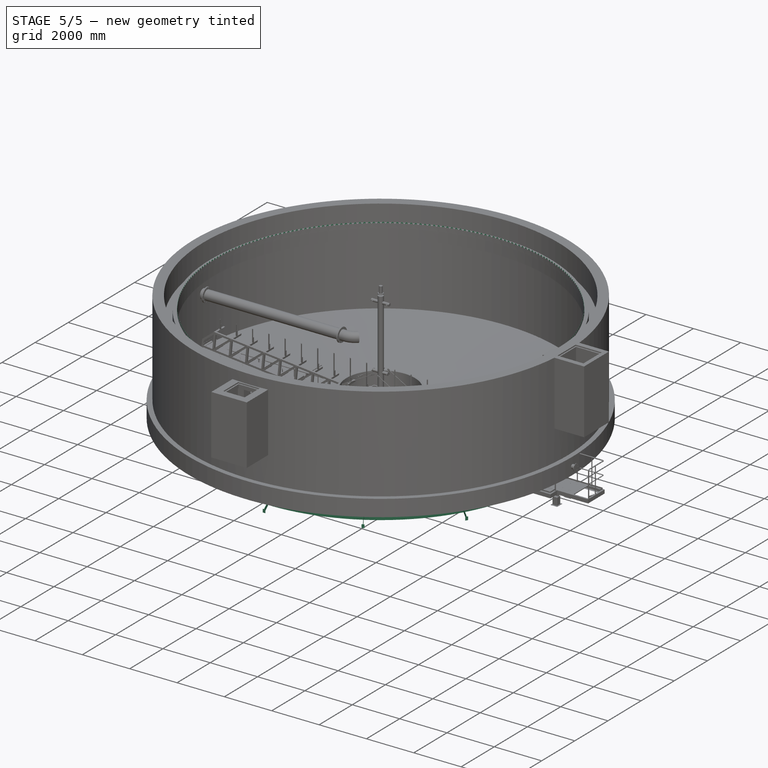
[diagram: stage 5 of 5 — iso view after this stage's code; geometry added in this stage tinted green]
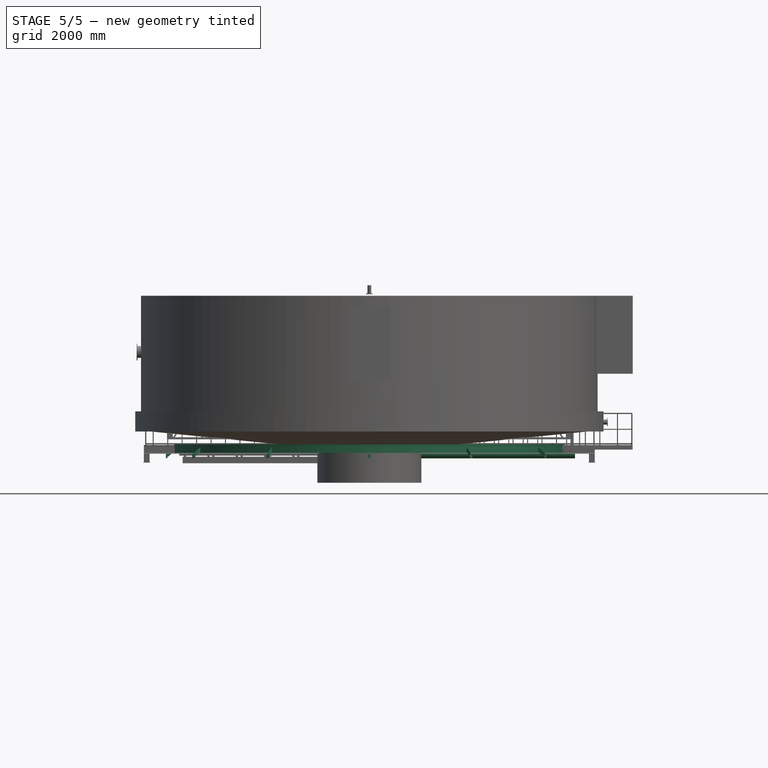
[diagram: stage 5 of 5 — front view after this stage's code; geometry added in this stage tinted green]
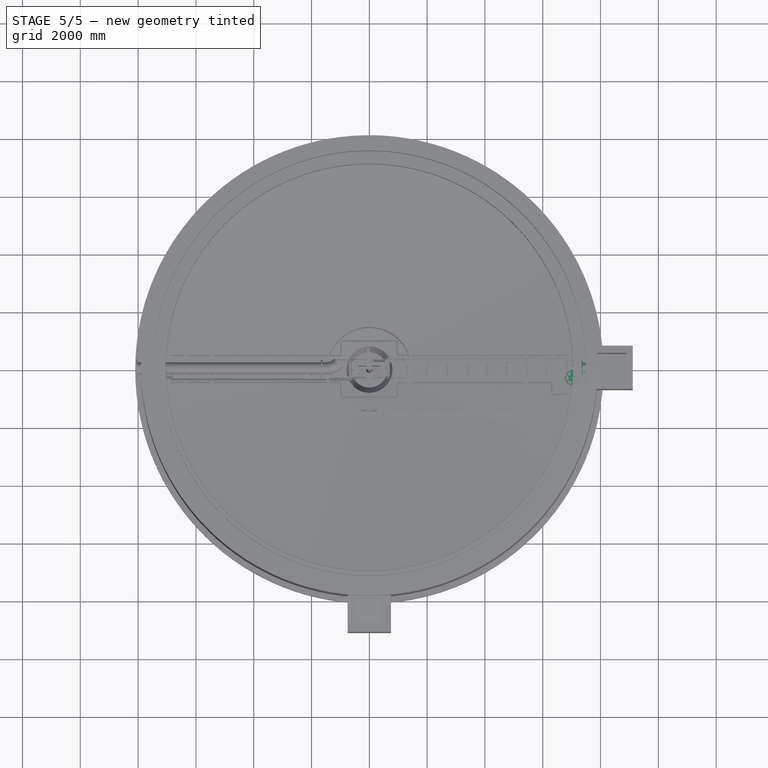
[diagram: stage 5 of 5 — top view after this stage's code; geometry added in this stage tinted green]
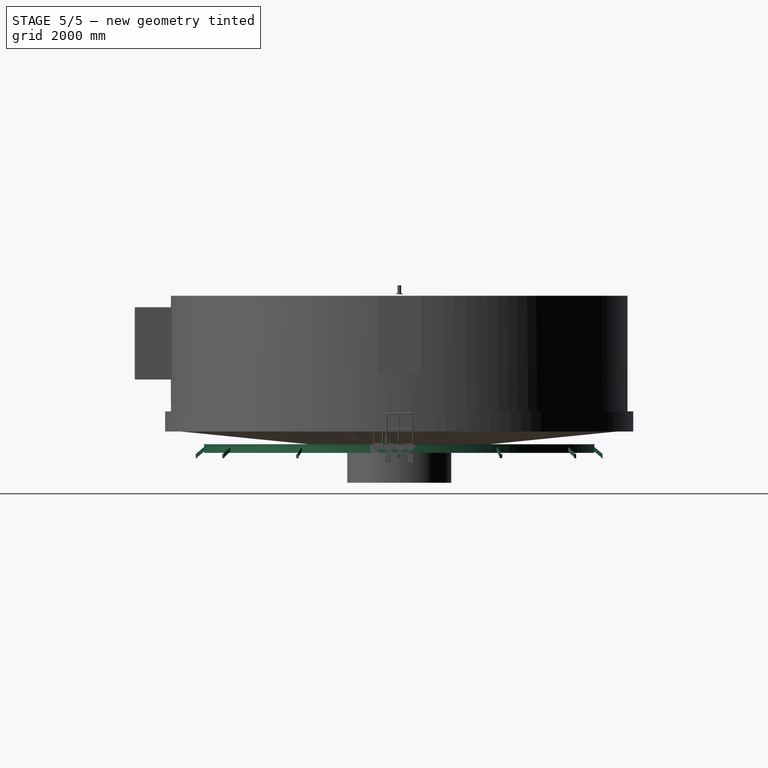
[diagram: stage 5 of 5 — right view after this stage's code; geometry added in this stage tinted green]
FEATURE [PartDesign::Body] Body  label="ainShaftBerg"
  AllowCompound = false
  Origin = -> Origin001
FEATURE [Sketcher::SketchObject] Sketch
  ArcFitTolerance = 0
  AttachmentSupport = -> [XZ_Plane001]
  FullyConstrained = true
  MakeInternals = false
  MapMode = 5
  Placement = pos=(0,0,0) rot=(1,0,0;1.5708rad)
  sketch-geometry (6):
    g0: LineSegment StartX=0 StartY=0 StartZ=0 EndX=120 EndY=0 EndZ=0
    g1: LineSegment StartX=120 StartY=0 StartZ=0 EndX=120 EndY=16 EndZ=0
    g2: LineSegment StartX=120 StartY=16 StartZ=0 EndX=40 EndY=16 EndZ=0
    g3: LineSegment StartX=40 StartY=16 StartZ=0 EndX=40 EndY=120 EndZ=0
    g4: LineSegment StartX=40 StartY=120 StartZ=0 EndX=0 EndY=120 EndZ=0
    g5: LineSegment StartX=0 StartY=120 StartZ=0 EndX=0 EndY=0 EndZ=0
  constraints (17):
    c: Coincident(g-1,g0)
    c: Horizontal(g0)
    c: Coincident(g0,g1)
    c: Vertical(g1)
    c: Coincident(g1,g2)
    c: Horizontal(g2)
    c: Coincident(g2,g3)
    c: Vertical(g3)
    c: Coincident(g3,g4)
    c: Horizontal(g4)
    c: Coincident(g4,g5)
    c: Coincident(g5,g0)
    c: Vertical(g5)
    c: DistanceX(g4,g4) = 40
    c: DistanceY(g1,g1) = 16
    c: DistanceX(g0,g0) = 120
    c: DistanceY(g5,g5) = 120
FEATURE [PartDesign::Revolution] Revolution
  Angle = 360
  Angle2 = 60
  Axis = (0,2e-16,1)
  Base = (0,0,0)
  Placement = pos=(0,0,0) rot=(1,0,0;1.5708rad)
  Profile = -> Sketch
  ReferenceAxis = -> Sketch [V_Axis]
  Reversed = true
  Suppressed = false
  Type = 0
FEATURE [Sketcher::SketchObject] Sketch001
  ArcFitTolerance = 0
  AttachmentSupport = -> [Revolution]
  FullyConstrained = true
  MakeInternals = false
  MapMode = 5
  Placement = pos=(0,7e-15,16) rot=(0,0,1;3.14159rad)
  sketch-geometry (1):
    g0: Circle CenterX=90 CenterY=0 CenterZ=0 NormalX=0 NormalY=0 NormalZ=1 AngleXU=0 Radius=9.5
  constraints (3):
    c: PointOnObject(g0,g-1)
    c: Diameter(g0) = 19
    c: DistanceX(g-1,g0) = 90
FEATURE [Part::Extrusion] Extrude
  Base = -> Sketch001
  Dir = (0,0,1)
  DirMode = 2
  FaceMakerClass = Part::FaceMakerBullseye
  FaceMakerMode = 3
  LengthFwd = 30
  LengthRev = 0
  Reversed = true
  Solid = true
  Symmetric = false
FEATURE [Part::FeaturePython] Array  # Draft array (typed FeaturePython)
  Angle = 360
  ArrayType = 1
  Axis = (0,0,1)
  Base = -> Extrude
  Center = (0,0,0)
  Count = 4
  Fuse = false
  IntervalAxis = (0,0,0)
  IntervalX = (50,0,0)
  IntervalY = (0,50,0)
  IntervalZ = (0,0,50)
  NumberCircles = 3
  NumberPolar = 4
  NumberX = 2
  NumberY = 2
  NumberZ = 1
  RadialDistance = 50
  Symmetry = 1
  TangentialDistance = 25
FEATURE [Part::Cut] Cut
  Base = -> Revolution
  Tool = -> Array
FEATURE [App::Part] Part001  label="mainShaftBrg"
  Group = -> [Body,Extrude,Array,Revolution,Sketch001,Sketch,Cut]
  Origin = -> Origin002
  Placement = pos=(0,0,0) rot=(0,0,1;0.785398rad)
  mass = 9.64324
FEATURE [Sketcher::SketchObject] Sketch014
  ArcFitTolerance = 0
  FullyConstrained = true
  MakeInternals = false
  Placement = pos=(0,0,0) rot=(1,0,0;1.5708rad)
  expr: Constraints[11] = Spreadsheet001.dia / 2 - 460
  sketch-geometry (4):
    g0: LineSegment StartX=7035 StartY=0 StartZ=0 EndX=7040 EndY=0 EndZ=0
    g1: LineSegment StartX=7040 StartY=0 StartZ=0 EndX=7040 EndY=250 EndZ=0
    g2: LineSegment StartX=7040 StartY=250 StartZ=0 EndX=7035 EndY=250 EndZ=0
    g3: LineSegment StartX=7035 StartY=250 StartZ=0 EndX=7035 EndY=0 EndZ=0
  constraints (12):
    c: Coincident(g0,g1)
    c: Coincident(g1,g2)
    c: Coincident(g2,g3)
    c: Coincident(g3,g0)
    c: Horizontal(g0)
    c: Horizontal(g2)
    c: Vertical(g1)
    c: Vertical(g3)
    c: PointOnObject(g0,g-1)
    c: Distance(g2) = 5
    c: DistanceY(g1,g1) = 250
    c: DistanceX(g-1,g0) = 7040
FEATURE [Part::Revolution] Revolve
  Angle = 360
  Axis = (0,0,1)
  Base = (0,0,0)
  FaceMakerClass = Part::FaceMakerBullseye
  Solid = true
  Source = -> Sketch014
  Symmetric = false
FEATURE [Sketcher::SketchObject] Sketch015
  ArcFitTolerance = 0
  FullyConstrained = true
  MakeInternals = false
  Placement = pos=(0,0,0) rot=(1,0,0;1.5708rad)
  sketch-geometry (3):
    g0: LineSegment StartX=-70 StartY=250 StartZ=0 EndX=70 EndY=250 EndZ=0
    g1: LineSegment StartX=70 StartY=250 StartZ=0 EndX=0 EndY=180 EndZ=0
    g2: LineSegment StartX=0 StartY=180 StartZ=0 EndX=-70 EndY=250 EndZ=0
  constraints (9):
    c: Horizontal(g0)
    c: Coincident(g0,g1)
    c: PointOnObject(g1,g-2)
    c: Coincident(g1,g2)
    c: Coincident(g2,g0)
    c: Angle(g1,g2) = 1.5708
    c: PointOnObject(g0,g-3)
    c: DistanceY(g1,g0) = 70
    c: Angle(g2,g-2) = 2.35619
FEATURE [Part::Extrusion] Extrude006  label="Extrude007"
  Base = -> Sketch015
  Dir = (0,-1,2e-16)
  DirMode = 2
  FaceMakerClass = Part::FaceMakerBullseye
  FaceMakerMode = 3
  LengthFwd = 10000
  LengthRev = 0
  Solid = true
  Symmetric = false
FEATURE [Part::FeaturePython] Array002  # Draft array (typed FeaturePython)
  AlwaysSyncPlacement = false
  Angle = 360
  ArrayType = 1
  Axis = (0,0,1)
  Base = -> Extrude006
  Center = (0,0,0)
  Count = 273
  ExpandArray = false
  Fuse = false
  IntervalAxis = (0,0,0)
  IntervalX = (50,0,0)
  IntervalY = (0,50,0)
  IntervalZ = (0,0,50)
  NumberCircles = 3
  NumberPolar = 273
  NumberX = 2
  NumberY = 2
  NumberZ = 1
  PlacementList = 273 placements: [(0,0,0),(0,0,0),(0,0,0),(0,0,0),(0,0,0),(0,0,0),(0,0,0),(0,0,0),(0,0,0),(0,0,0),(0,0,0),(0,0,0),(0,0,0),(0,0,0),(0,0,0),(0,0,0),(0,0,0),(0,0,0),(0,0,0),(0,0,0),(0,0,0),(0,0,0),(0,0,0),(0,0,0),(0,0,0),(0,0,0),(0,0,0),(0,0,0),(0,0,0),(0,0,0),(0,0,0),(0,0,0),(0,0,0),(0,0,0),(0,0,0),(0,0,0),(0,0,0),(0,0,0),(0,0,0),(0,0,0),(0,0,0),(0,0,0),(0,0,0),(0,0,0),(0,0,0),(0,0,0),(0,0,0),(0,0,0),(0,0,0),(0,0,0),+223 more]
  RadialDistance = 50
  Symmetry = 1
  TangentialDistance = 25
  expr: NumberPolar = Spreadsheet001.dia / 55
FEATURE [Part::Cut] Cut001  label="weir"
  Base = -> Revolve
  Placement = pos=(0,0,4741.9) rot=(0,0,1;0rad)
  Tool = -> Array002
FEATURE [Sketcher::SketchObject] Sketch016
  ArcFitTolerance = 0
  FullyConstrained = true
  MakeInternals = false
  Placement = pos=(0,0,0) rot=(1,0,0;1.5708rad)
  expr: .Constraints.h0 = Spreadsheet001.h0
  expr: Constraints[11] = Spreadsheet001.dia / 2 - (450 + 300)
  sketch-geometry (4):
    g0: LineSegment StartX=6745 StartY=80 StartZ=0 EndX=6750 EndY=80 EndZ=0
    g1: LineSegment StartX=6750 StartY=80 StartZ=0 EndX=6750 EndY=380 EndZ=0
    g2: LineSegment StartX=6750 StartY=380 StartZ=0 EndX=6745 EndY=380 EndZ=0
    g3: LineSegment StartX=6745 StartY=380 StartZ=0 EndX=6745 EndY=80 EndZ=0
  constraints (12):
    c: Coincident(g0,g1)
    c: Coincident(g1,g2)
    c: Coincident(g2,g3)
    c: Coincident(g3,g0)
    c: Horizontal(g0)
    c: Horizontal(g2)
    c: Vertical(g1)
    c: Vertical(g3)
    c: DistanceX(g2,g2) = 5
    c: DistanceY(g1,g1) = 300  'h0'
    c: DistanceY(g-3,g1) = 130
    c: Distance(g1,g-2) = 6750
FEATURE [Part::Revolution] Revolve001
  Angle = 360
  Axis = (0,0,1)
  Base = (0,0,0)
  FaceMakerClass = Part::FaceMakerBullseye
  Solid = true
  Source = -> Sketch016
  Symmetric = false
FEATURE [Part::FeaturePython] AngleSteel001  # WARN: FeaturePython — macro-defined, semantics opaque (R4)
  A = 50
  B = 50
  L = 1000
  Placement = pos=(6750,0,474) rot=(0,1,0;1.5708rad)
  Solid = false
  g0 = 7.85
  mass = 0
  size = 7
  standard = SS_Equal
  t = 6
  expr: .Placement.Base.x = Spreadsheet001.dia / 2 - 750
FEATURE [Part::Revolution] Revolve002
  Angle = 360
  Axis = (0,0,1)
  Base = (0,0,0)
  FaceMakerClass = Part::FaceMakerBullseye
  Placement = pos=(0,0,-94) rot=(0,0,1;0rad)
  Solid = false
  Source = -> AngleSteel001
  Symmetric = false
FEATURE [Sketcher::SketchObject] Sketch017
  ArcFitTolerance = 0
  FullyConstrained = true
  MakeInternals = false
  Placement = pos=(0,0,0) rot=(1,0,0;1.5708rad)
  expr: Constraints[10] = Spreadsheet001.dia / 2 - (460 + 290)
  sketch-geometry (4):
    g0: LineSegment StartX=6750 StartY=80 StartZ=0 EndX=7040 EndY=-163.339 EndZ=0
    g1: LineSegment StartX=7040 StartY=-163.339 StartZ=0 EndX=7040 EndY=-6.69002 EndZ=0
    g2: LineSegment StartX=7040 StartY=-6.69002 StartZ=0 EndX=6750 EndY=236.649 EndZ=0
    g3: LineSegment StartX=6750 StartY=236.649 StartZ=0 EndX=6750 EndY=80 EndZ=0
  constraints (12):
    c: Coincident(g0,g1)
    c: Vertical(g1)
    c: Coincident(g1,g2)
    c: Coincident(g2,g3)
    c: Coincident(g3,g0)
    c: Vertical(g3)
    c: Parallel(g2,g0)
    c: DistanceX(g0,g0) = 290
    c: Distance(g1,g0) = 120
    c: Angle(g0,g3) = 2.26893
    c: Distance(g0,g-2) = 6750
    c: Distance(g0,g-1) = 80
FEATURE [Part::Extrusion] Extrude007  label="Extrude008"
  Base = -> Sketch017
  Dir = (0,-1,2e-16)
  DirMode = 2
  FaceMakerClass = Part::FaceMakerBullseye
  FaceMakerMode = 3
  LengthFwd = 6
  LengthRev = 0
  Solid = true
  Symmetric = true
FEATURE [Spreadsheet::Sheet] Spreadsheet001
  cells = A3='tankDia dia; B3(dia)=15000; A4='waterWay width; B4(W0)=450; A5='nonber of support; B5(n)=12; A6='buffleHight  h0; B6(h0)=300
FEATURE [Part::FeaturePython] AngleSteel002  # WARN: FeaturePython — macro-defined, semantics opaque (R4)
  A = 50
  B = 50
  L = 140
  Placement = pos=(7015,28,-150) rot=(0,0,1;3.14159rad)
  Solid = true
  g0 = 7.85
  mass = 0.620249
  size = 7
  standard = SS_Equal
  t = 6
  expr: .Placement.Base.x = Spreadsheet001.dia / 2 - 485
FEATURE [Part::Mirroring] Mirror002  label="AngleSteel001 (mirrored)"
  Base = (4800,0,0)
  Normal = (0,-1,0)
  Source = -> AngleSteel002
FEATURE [Part::Compound] Compound003  label="support"
  Links = -> [AngleSteel002,Mirror002,Extrude007]
FEATURE [Part::FeaturePython] Array003  label="Array001"  # Draft array (typed FeaturePython)
  AlwaysSyncPlacement = false
  Angle = 360
  ArrayType = 1
  Axis = (0,0,1)
  Base = -> Compound003
  Center = (0,0,0)
  Count = 12
  ExpandArray = false
  Fuse = false
  IntervalAxis = (0,0,0)
  IntervalX = (50,0,0)
  IntervalY = (0,50,0)
  IntervalZ = (0,0,50)
  NumberCircles = 3
  NumberPolar = 12
  NumberX = 2
  NumberY = 2
  NumberZ = 1
  PlacementList = 12 placements: [(0,0,0),(0,0,0),(0,0,0),(0,0,0),(0,0,0),(0,0,0),(0,0,0),(0,0,0),(0,0,0),(0,0,0),(0,0,0),(0,0,0)]
  RadialDistance = 50
  ScaleList = (12) [(1,1,1),(1,1,1),(1,1,1),(1,1,1),(1,1,1),(1,1,1),(1,1,1),(1,1,1),(1,1,1),(1,1,1),(1,1,1),(1,1,1)]
  Symmetry = 1
  TangentialDistance = 25
  expr: NumberPolar = Spreadsheet001.n
FEATURE [Part::Compound] Compound004  label="buffle001"
  Links = -> [Revolve001,Revolve002]
  Placement = pos=(0,0,-50) rot=(0,0,1;0rad)
FEATURE [Part::FeaturePython] Single_flange_straight_pipe001  # WARN: FeaturePython — macro-defined, semantics opaque (R4)
  L = 550
  Placement = pos=(7350,-1.0634e-12,4890) rot=(0,0,1;0rad)
  dia = 6
  fittings = 06_Single_flange_straight_pipe
  material = 0
  standard = 0
  standard2 = 1
  expr: .Placement.Base.x = <<Spreadsheet_Assy>>.dia / 2 - 150
FEATURE [Part::FeaturePython] Flange  # WARN: FeaturePython — macro-defined, semantics opaque (R4)
  Placement = pos=(0,0,0) rot=(0.57735,0.57735,0.57735;2.0944rad)
  dia = 6
  fittings = 00_Flange
  material = 0
  standard = 1
FEATURE [Part::FeaturePython] Ring  # WARN: FeaturePython — macro-defined, semantics opaque (R4)
  D = 360
  Placement = pos=(0,0,0) rot=(0,1,0;1.5708rad)
  d = 315
  sface = 0
FEATURE [Part::Extrusion] Extrude035  label="Extrude041"
  Base = -> Ring
  Dir = (1,0,0)
  DirMode = 2
  FaceMakerClass = Part::FaceMakerBullseye
  FaceMakerMode = 3
  LengthFwd = 300
  LengthRev = 0
  Reversed = true
  Solid = true
  Symmetric = false
FEATURE [App::Part] Part015  label="pipeSkimmerBrg"
  Group = -> [Ring,Extrude035,Flange]
  Origin = -> Origin021
  Placement = pos=(7416,-1.1983e-12,0) rot=(0,0,1;0rad)
  mass = 72.0095
  expr: .Placement.Base.x = Spreadsheet006.L0 - Spreadsheet006.l1 + Spreadsheet006.l1 - 300 + Spreadsheet006.l4 - 19
FEATURE [Part::FeaturePython] Straight_tube  # WARN: FeaturePython — macro-defined, semantics opaque (R4)
  L = 5635
  Placement = pos=(1480,0,0) rot=(0,0,1;0rad)
  dia = 16
  fittings = 05_Straight pipe
  material = 1
  standard = 1
  expr: .Placement.Base.x = Spreadsheet006.l4 - 320
  expr: L = Spreadsheet006.L0 - 300
FEATURE [Sketcher::SketchObject] Sketch047
  ArcFitTolerance = 0
  FullyConstrained = true
  MakeInternals = false
  Placement = pos=(0,0,0) rot=(1,0,0;1.5708rad)
  expr: Constraints[35] = Spreadsheet006.L0 - 400 + 80
  sketch-geometry (12):
    g0: LineSegment StartX=5595 StartY=159.25 StartZ=0 EndX=5615 EndY=159.25 EndZ=0
    g1: LineSegment StartX=5615 StartY=159.25 StartZ=0 EndX=5615 EndY=164.25 EndZ=0
    g2: LineSegment StartX=5615 StartY=164.25 StartZ=0 EndX=5595 EndY=164.25 EndZ=0
    g3: LineSegment StartX=5595 StartY=164.25 StartZ=0 EndX=5595 EndY=159.25 EndZ=0
    g4: LineSegment StartX=0 StartY=159.25 StartZ=0 EndX=0 EndY=169.25 EndZ=0
    g5: LineSegment StartX=0 StartY=169.25 StartZ=0 EndX=19 EndY=169.25 EndZ=0
    g6: LineSegment StartX=19 StartY=169.25 StartZ=0 EndX=19 EndY=164.25 EndZ=0
    g7: LineSegment StartX=19 StartY=164.25 StartZ=0 EndX=31 EndY=164.25 EndZ=0
    g8: LineSegment StartX=31 StartY=164.25 StartZ=0 EndX=31 EndY=169.25 EndZ=0
    g9: LineSegment StartX=31 StartY=169.25 StartZ=0 EndX=50 EndY=169.25 EndZ=0
    g10: LineSegment StartX=50 StartY=169.25 StartZ=0 EndX=50 EndY=159.25 EndZ=0
    g11: LineSegment StartX=50 StartY=159.25 StartZ=0 EndX=0 EndY=159.25 EndZ=0
  constraints (36):
    c: Coincident(g0,g1)
    c: Coincident(g1,g2)
    c: Coincident(g2,g3)
    c: Coincident(g3,g0)
    c: Horizontal(g0)
    c: Horizontal(g2)
    c: Vertical(g1)
    c: Vertical(g3)
    c: DistanceY(g-1,g0) = 159.25
    c: DistanceY(g1,g1) = 5
    c: DistanceX(g2,g2) = 20
    c: Vertical(g4)
    c: Coincident(g4,g5)
    c: Horizontal(g5)
    c: Coincident(g5,g6)
    c: Vertical(g6)
    c: Coincident(g6,g7)
    c: Coincident(g7,g8)
    c: Coincident(g8,g9)
    c: Coincident(g9,g10)
    c: Coincident(g10,g11)
    c: Coincident(g11,g4)
    c: Horizontal(g11)
    c: Vertical(g10)
    c: Horizontal(g7)
    c: Horizontal(g9)
    c: Vertical(g8)
    c: DistanceY(g10,g10) = 10
    c: DistanceY(g7,g8) = 5
    c: Horizontal(g8,g5)
    c: DistanceX(g11,g11) = 50
    c: DistanceX(g7,g7) = 12
    c: DistanceX(g5,g5) = 19
    c: DistanceY(g-1,g4) = 159.25
    c: Vertical(g-1,g4)
    c: DistanceX(g-1,g0) = 5615
FEATURE [Part::Revolution] Revolve007
  Angle = 360
  Axis = (1,0,0)
  Base = (0,0,0)
  FaceMakerClass = Part::FaceMakerBullseye
  Placement = pos=(1500,0,0) rot=(0,0,1;0rad)
  Solid = true
  Source = -> Sketch047
  Symmetric = false
  expr: .Placement.Base.x = Spreadsheet006.l4 - 300
FEATURE [Spreadsheet::Sheet] Spreadsheet006  label="Spreadsheet_pipeSkimmer"
  cells = A2='tankDia  D0; B2(D0)=13000; A3='fullLength L0; B3(L0)=5935; A4='length       l1; B4(l1)=1100; A5='越流堰数 n0; B5(n0)=4; A6='越流堰長 l3; B6(l3)=1330; A7='開閉台  h2; B7(h2)=1212; A8='開閉台 位置 l2; B8(l2)=700; A9='軸受位置 l4; B9(l4)=1800
FEATURE [Sketcher::SketchObject] Sketch048
  ArcFitTolerance = 0
  FullyConstrained = false
  MakeInternals = false
  Placement = pos=(0,0,0) rot=(0.57735,0.57735,0.57735;2.0944rad)
  sketch-geometry (3):
    g0: LineSegment StartX=0 StartY=0 StartZ=0 EndX=114.659 EndY=220.257 EndZ=0
    g1: LineSegment StartX=0 StartY=0 StartZ=0 EndX=-114.659 EndY=220.257 EndZ=0
    g2: ArcOfCircle CenterX=0 CenterY=0 CenterZ=0 NormalX=0 NormalY=0 NormalZ=1 AngleXU=0 Radius=248.314 StartAngle=1.09083 EndAngle=2.05076
  constraints (7):
    c: Coincident(g-1,g0)
    c: Coincident(g1,g0)
    c: Coincident(g2,g0)
    c: Coincident(g2,g1)
    c: Coincident(g2,g0)
    c: Angle(g0,g-2) = 0.479966
    c: Angle(g0,g1) = 0.959931
FEATURE [Part::Extrusion] Extrude036  label="Extrude042"
  Base = -> Sketch048
  Dir = (1,0,0)
  DirMode = 2
  FaceMakerClass = Part::FaceMakerBullseye
  FaceMakerMode = 3
  LengthFwd = 1330
  LengthRev = 0
  Placement = pos=(-200,0,0) rot=(0,0,1;0rad)
  Solid = true
  Symmetric = false
  expr: LengthFwd = Spreadsheet006.l3
FEATURE [Part::FeaturePython] Array008  # Draft array (typed FeaturePython)
  AlwaysSyncPlacement = false
  Angle = 360
  ArrayType = 0
  Axis = (0,0,1)
  Base = -> Extrude036
  Center = (0,0,0)
  Count = 4
  ExpandArray = false
  Fuse = false
  IntervalAxis = (0,0,0)
  IntervalX = (1380,0,0)
  IntervalY = (0,100,0)
  IntervalZ = (0,0,100)
  NumberCircles = 3
  NumberPolar = 5
  NumberX = 4
  NumberY = 1
  NumberZ = 1
  Placement = pos=(1781,0,0) rot=(0,0,1;0rad)
  PlacementList = 4 placements: arithmetic series from (-200,0,0) step (1380,0,0) to (3940,0,0)
  RadialDistance = 50
  ScaleList = (4) [(1,1,1),(1,1,1),(1,1,1),(1,1,1)]
  Symmetry = 1
  TangentialDistance = 25
  expr: .IntervalX.x = Spreadsheet006.l3 + 50
  expr: .Placement.Base.x = Spreadsheet006.l4 - 19
  expr: NumberX = Spreadsheet006.n0
FEATURE [Part::Cut] Cut014
  Base = -> Straight_tube
  Tool = -> Array008
FEATURE [Sketcher::SketchObject] Sketch049
  ArcFitTolerance = 0
  FullyConstrained = false
  MakeInternals = false
  Placement = pos=(-30,0,0) rot=(0.57735,0.57735,0.57735;2.0944rad)
  expr: .Placement.Base.x = -30
  sketch-geometry (3):
    g0: LineSegment StartX=0 StartY=0 StartZ=0 EndX=-124.513 EndY=239.188 EndZ=0
    g1: LineSegment StartX=0 StartY=0 StartZ=0 EndX=124.513 EndY=239.188 EndZ=0
    g2: ArcOfCircle CenterX=0 CenterY=0 CenterZ=0 NormalX=0 NormalY=0 NormalZ=1 AngleXU=0 Radius=269.656 StartAngle=1.09083 EndAngle=2.05076
  constraints (7):
    c: Coincident(g0,g-1)
    c: Coincident(g1,g0)
    c: Coincident(g2,g1)
    c: Coincident(g2,g0)
    c: Coincident(g2,g0)
    c: Angle(g1,g0) = 0.959931
    c: Angle(g1,g-2) = 0.479966
FEATURE [Part::Extrusion] Extrude037  label="Extrude043"
  Base = -> Sketch049
  Dir = (1,0,0)
  DirMode = 2
  FaceMakerClass = Part::FaceMakerBullseye
  FaceMakerMode = 3
  LengthFwd = 1000
  LengthRev = 0
  Placement = pos=(1455,0,0) rot=(0,0,1;0rad)
  Reversed = true
  Solid = true
  Symmetric = false
  expr: .Placement.Base.x = -25 + Spreadsheet006.l4 - 320
  expr: LengthFwd = Spreadsheet006.l1 - 100
FEATURE [Part::Cut] Cut015
  Base = -> Cut014
  Tool = -> Extrude037
FEATURE [Sketcher::SketchObject] Sketch050
  ArcFitTolerance = 0
  FullyConstrained = true
  MakeInternals = false
  Placement = pos=(0,0,0) rot=(0.57735,0.57735,0.57735;2.0944rad)
  sketch-geometry (6):
    g0: LineSegment [constr] StartX=0 StartY=0 StartZ=0 EndX=247.487 EndY=247.487 EndZ=0
    g1: Circle CenterX=247.487 CenterY=247.487 CenterZ=0 NormalX=0 NormalY=0 NormalZ=1 AngleXU=0 Radius=7.5
    g2: ArcOfCircle CenterX=247.487 CenterY=247.487 CenterZ=0 NormalX=0 NormalY=0 NormalZ=1 AngleXU=0 Radius=20 StartAngle=5.62869 EndAngle=8.50848
    g3: LineSegment StartX=235.312 StartY=263.354 StartZ=0 EndX=74.8903 EndY=140.258 EndZ=0
    g4: LineSegment StartX=263.354 StartY=235.312 StartZ=0 EndX=140.258 EndY=74.8903 EndZ=0
    g5: ArcOfCircle CenterX=0 CenterY=0 CenterZ=0 NormalX=0 NormalY=0 NormalZ=1 AngleXU=0 Radius=159 StartAngle=0.490434 EndAngle=1.08036
  constraints (15):
    c: Coincident(g0,g-1)
    c: Angle(g-1,g0) = 0.785398
    c: Coincident(g1,g0)
    c: Radius(g1) = 7.5
    c: Coincident(g2,g1)
    c: Coincident(g5,g3)
    c: Coincident(g5,g4)
    c: Coincident(g5,g0)
    c: Tangent(g2,g3) = -1.5708
    c: Tangent(g2,g4) = 1.5708
    c: Equal(g4,g3)
    c: Radius(g5) = 159
    c: Angle(g3,g4) = 0.261799
    c: Distance(g5,g1) = 350
    c: Radius(g2) = 20
FEATURE [Part::Extrusion] Extrude038  label="Extrude044"
  Base = -> Sketch050
  Dir = (1,0,0)
  DirMode = 2
  FaceMakerClass = Part::FaceMakerBullseye
  FaceMakerMode = 3
  LengthFwd = 6
  LengthRev = 0
  Placement = pos=(0,0,0) rot=(0,-0.977851,0.209302;0rad)
  Solid = true
  Symmetric = true
FEATURE [App::Part] Part018  label="arm"
  Group = -> [Sketch050,Extrude038]
  Origin = -> Origin024
  Placement = pos=(7016,0,0) rot=(1,0,0;1.8326rad)
  expr: .Placement.Base.x = Spreadsheet006.L0 - Spreadsheet006.l2 + Spreadsheet006.l4 - 19
FEATURE [Sketcher::SketchObject] Sketch051
  ArcFitTolerance = 0
  FullyConstrained = false
  MakeInternals = false
  MapMode = 5
  Placement = pos=(681,0,0) rot=(0.57735,-0.57735,-0.57735;2.0944rad)
  expr: .Placement.Base.x = -Spreadsheet006.l1 + Spreadsheet006.l4 - 19
  sketch-geometry (1):
    g0: Circle CenterX=0 CenterY=0 CenterZ=0 NormalX=0 NormalY=0 NormalZ=1 AngleXU=0 Radius=159.25
  constraints (1):
    c: Coincident(g0,g-1)
FEATURE [Part::Extrusion] Extrude039  label="Extrude045"
  Base = -> Sketch051
  Dir = (-1,0,0)
  DirMode = 2
  FaceMakerClass = Part::FaceMakerBullseye
  FaceMakerMode = 3
  LengthFwd = 6
  LengthRev = 0
  Placement = pos=(-300,0,0) rot=(0,0,1;0rad)
  Solid = true
  Symmetric = false
  expr: .Placement.Base.x = -300
FEATURE [Part::Feature] Part__Feature005  label="電動トップハンドル_LTKD-01 v5"
  Placement = pos=(0,-389.711,-5.7e-14) rot=(1,0,0;1.5708rad)
  shape: bbox 555.2 x 557.2 x 1150 mm, 73 faces (baked)
FEATURE [App::Part] Part019  label="開閉台"
  Group = -> [Part__Feature005]
  Origin = -> Origin025
  Placement = pos=(0,-400,1212) rot=(0,0,1;3.14159rad)
  expr: .Placement.Base.z = Spreadsheet006.h2
FEATURE [Sketcher::SketchObject] Sketch052
  ArcFitTolerance = 0
  FullyConstrained = false
  MakeInternals = false
  Placement = pos=(0,0,0) rot=(0.57735,0.57735,0.57735;2.0944rad)
  sketch-geometry (5):
    g0: Circle CenterX=0 CenterY=0 CenterZ=0 NormalX=0 NormalY=0 NormalZ=1 AngleXU=0 Radius=7.5
    g1: ArcOfCircle CenterX=0 CenterY=0 CenterZ=0 NormalX=0 NormalY=0 NormalZ=1 AngleXU=0 Radius=20 StartAngle=3.14159 EndAngle=6.28319
    g2: LineSegment StartX=-20 StartY=9.32106e-06 StartZ=0 EndX=-20 EndY=80 EndZ=0
    g3: LineSegment StartX=-20 StartY=80 StartZ=0 EndX=20 EndY=80 EndZ=0
    g4: LineSegment StartX=20 StartY=80 StartZ=0 EndX=20 EndY=3.56439e-05 EndZ=0
  constraints (13):
    c: Coincident(g0,g-1)
    c: Coincident(g1,g0)
    c: Radius(g1) = 20
    c: Radius(g0) = 7.5
    c: Vertical(g2)
    c: Coincident(g2,g3)
    c: Horizontal(g3)
    c: Coincident(g3,g4)
    c: Vertical(g4)
    c: Coincident(g1,g4)
    c: Coincident(g1,g2)
    c: DistanceY(g-1,g3) = 80
    c: DistanceX(g3,g3) = 40
FEATURE [Part::Extrusion] Extrude040  label="Extrude046"
  Base = -> Sketch052
  Dir = (1,0,0)
  DirMode = 2
  FaceMakerClass = Part::FaceMakerBullseye
  FaceMakerMode = 3
  LengthFwd = 40
  LengthRev = 0
  Solid = true
  Symmetric = true
FEATURE [Sketcher::SketchObject] Sketch053
  ArcFitTolerance = 0
  ExternalGeometry = -> [Extrude040]
  FullyConstrained = false
  MakeInternals = false
  MapMode = 5
  Placement = pos=(0,-20,0) rot=(1,0,0;1.5708rad)
  sketch-geometry (4):
    g0: LineSegment StartX=-5 StartY=-25.0355 StartZ=0 EndX=5 EndY=-25.0355 EndZ=0
    g1: LineSegment StartX=5 StartY=-25.0355 StartZ=0 EndX=5 EndY=60 EndZ=0
    g2: LineSegment StartX=5 StartY=60 StartZ=0 EndX=-5 EndY=60 EndZ=0
    g3: LineSegment StartX=-5 StartY=60 StartZ=0 EndX=-5 EndY=-25.0355 EndZ=0
  constraints (11):
    c: Coincident(g0,g1)
    c: Coincident(g1,g2)
    c: Coincident(g2,g3)
    c: Coincident(g3,g0)
    c: Horizontal(g0)
    c: Horizontal(g2)
    c: Vertical(g1)
    c: Vertical(g3)
    c: Distance(g1,g-3) = 20
    c: DistanceX(g0,g0) = 10
    c: DistanceX(g0,g-1) = 5
FEATURE [Part::Extrusion] Extrude041  label="Extrude047"
  Base = -> Sketch053
  Dir = (0,-1,2e-16)
  DirMode = 2
  FaceMakerClass = Part::FaceMakerBullseye
  FaceMakerMode = 3
  LengthFwd = 50
  LengthRev = 0
  Reversed = true
  Solid = true
  Symmetric = false
FEATURE [Part::Cut] Cut016
  Base = -> Extrude040
  Tool = -> Extrude041
FEATURE [Sketcher::SketchObject] Sketch054
  ArcFitTolerance = 0
  FullyConstrained = true
  MakeInternals = false
  MapMode = 5
  Placement = pos=(0,0,80) rot=(0,0,1;0rad)
  sketch-geometry (1):
    g0: Circle CenterX=0 CenterY=0 CenterZ=0 NormalX=0 NormalY=0 NormalZ=1 AngleXU=0 Radius=15
  constraints (2):
    c: Coincident(g0,g-1)
    c: Radius(g0) = 15
FEATURE [Part::Extrusion] Extrude042  label="Extrude048"
  Base = -> Sketch054
  Dir = (0,0,1)
  DirMode = 2
  FaceMakerClass = Part::FaceMakerBullseye
  FaceMakerMode = 3
  LengthFwd = 700
  LengthRev = 0
  Solid = true
  Symmetric = false
FEATURE [Part::FeaturePython] Clone006  label="Cut017"  # Draft clone (typed FeaturePython)
  AttacherType = Attacher::AttachEngine3D
  Fuse = false
  Objects = -> [Cut016]
  Placement = pos=(-1.83e-13,0,850) rot=(0,1,0;3.14159rad)
  Scale = (1,1,1)
FEATURE [App::Part] Part020  label="rod"
  Group = -> [Cut016,Clone006,Sketch053,Sketch052,Sketch054,Extrude040,Extrude041,Extrude042]
  Origin = -> Origin026
FEATURE [Sketcher::SketchObject] Sketch055
  ArcFitTolerance = 0
  FullyConstrained = false
  MakeInternals = false
  Placement = pos=(0,0,0) rot=(0.57735,0.57735,0.57735;2.0944rad)
  sketch-geometry (5):
    g0: Circle CenterX=0 CenterY=0 CenterZ=0 NormalX=0 NormalY=0 NormalZ=1 AngleXU=0 Radius=7.5
    g1: ArcOfCircle CenterX=0 CenterY=0 CenterZ=0 NormalX=0 NormalY=0 NormalZ=1 AngleXU=0 Radius=20 StartAngle=3.14864 EndAngle=6.2925
    g2: LineSegment StartX=-19.9995 StartY=-0.141043 StartZ=0 EndX=-19.9995 EndY=80 EndZ=0
    g3: LineSegment StartX=-19.9995 StartY=80 StartZ=0 EndX=19.9991 EndY=80 EndZ=0
    g4: LineSegment StartX=19.9991 StartY=80 StartZ=0 EndX=19.9991 EndY=0.186233 EndZ=0
  constraints (12):
    c: Coincident(g0,g-1)
    c: Coincident(g1,g0)
    c: Vertical(g2)
    c: Coincident(g2,g3)
    c: Horizontal(g3)
    c: Coincident(g3,g4)
    c: Vertical(g4)
    c: Coincident(g1,g4)
    c: Coincident(g1,g2)
    c: Radius(g0) = 7.5
    c: Radius(g1) = 20
    c: DistanceY(g-1,g3) = 80
FEATURE [Part::Extrusion] Extrude043  label="Extrude049"
  Base = -> Sketch055
  Dir = (1,0,0)
  DirMode = 2
  FaceMakerClass = Part::FaceMakerBullseye
  FaceMakerMode = 3
  LengthFwd = 9
  LengthRev = 0
  Solid = true
  Symmetric = true
FEATURE [Part::Cylinder] Cylinder  label="円柱"
  Angle = 360
  AttacherType = Attacher::AttachEngine3D
  FirstAngle = 0
  Height = 1000
  Placement = pos=(0,0,30) rot=(0,0,1;0rad)
  Radius = 15
  SecondAngle = 0
FEATURE [App::Part] Part021  label="rod002"
  Group = -> [Sketch055,Cylinder,Extrude043]
  Origin = -> Origin027
FEATURE [Part::Compound] Compound011  label="pipeSkimmerRod"
  Links = -> [Part021]
  Placement = pos=(7016,-313.888,1024.93) rot=(0.999876,-0.016418,0.001902;5e-06rad)
  mass = 5.80682
  expr: .Placement.Base.x = Spreadsheet006.L0 - Spreadsheet006.l2 + Spreadsheet006.l4 - 19
FEATURE [Part::Compound] Compound012  label="pipeSkimmerControlDevice"
  Links = -> [Part019]
  Placement = pos=(7016,-303.595,0) rot=(0.999778,-0.016584,0;2e-06rad)
  mass = 120
  expr: .Placement.Base.x = Spreadsheet006.L0 - Spreadsheet006.l2 + Spreadsheet006.l4 - 19
FEATURE [Part::Compound] Compound013  label="pkipeSkimmerRod"
  Links = -> [Part020]
  Placement = pos=(7016,-303.109,175) rot=(1,-4e-06,1e-06;0.012683rad)
  mass = 5.72969
  expr: .Placement.Base.x = Spreadsheet006.L0 - Spreadsheet006.l2 + Spreadsheet006.l4 - 19
FEATURE [Part::FeaturePython] Straight_tube001  # WARN: FeaturePython — macro-defined, semantics opaque (R4)
  L = 1100
  Placement = pos=(1480,0,0) rot=(0,0,1;3.14159rad)
  dia = 16
  fittings = 05_Straight pipe
  material = 0
  standard = 0
  expr: .Placement.Base.x = Spreadsheet006.l4 - 320
  expr: L = Spreadsheet006.l1
FEATURE [Part::Cut] Cut017  label="Cut004"
  Base = -> Straight_tube001
  Refine = true
  Tool = -> Extrude037
FEATURE [App::Part] Part016  label="pipe"
  Group = -> [Sketch047,Revolve007,Part018,Extrude036,Extrude037,Cut015,Cut014,Straight_tube,Array008,Sketch048,Sketch049,Sketch051,Straight_tube001,Cut017]
  Origin = -> Origin022
FEATURE [Part::Compound] Compound010  label="pipeSkimmerBody"
  Links = -> [Part016,Extrude039]
  Placement = pos=(-7.28528e-06,0,0) rot=(0,-0.552174,0.703636;0rad)
  mass = 300.129
FEATURE [App::Part] Part017  label="pipeSkimmer"
  Group = -> [Part016,Part015,Spreadsheet006,Part019,Part020,Compound010,Part021,Compound011,Compound012,Compound013]
  Origin = -> Origin023
  Placement = pos=(-94,0,4890) rot=(0,0,1;0rad)
  expr: .Placement.Base.z = 4890
FEATURE [Part::Feature] Part__Feature007  label="7926A5 Inner ring"
  shape: bbox 24 x 167.8 x 167.8 mm, 8 faces (baked)
FEATURE [Part::Feature] Part__Feature008  label="7926A5 Outer ring"
  shape: bbox 24 x 194.8 x 194.8 mm, 8 faces (baked)
FEATURE [Part::Feature] Part__Feature009  label="7926A5 Ball"
  Placement = pos=(12,77.5,0) rot=(0,0,1;3.14159rad)
  shape: bbox 13.75 x 13.75 x 13.75 mm, 1 faces (baked)
FEATURE [Part::Feature] Part__Feature010  label="7926A5 Ball001"
  Placement = pos=(12,70.7998,31.5221) rot=(0,0,1;3.14159rad)
  shape: bbox 13.75 x 13.75 x 13.75 mm, 1 faces (baked)
FEATURE [Part::Feature] Part__Feature011  label="7926A5 Ball002"
  Placement = pos=(12,51.8576,57.5937) rot=(0,0,1;3.14159rad)
  shape: bbox 13.75 x 13.75 x 13.75 mm, 1 faces (baked)
FEATURE [Part::Feature] Part__Feature012  label="7926A5 Ball003"
  Placement = pos=(12,23.9488,73.7069) rot=(0,0,1;3.14159rad)
  shape: bbox 13.75 x 13.75 x 13.75 mm, 1 faces (baked)
FEATURE [Part::Feature] Part__Feature013  label="7926A5 Ball004"
  Placement = pos=(12,-8.10096,77.0754) rot=(0,0,1;3.14159rad)
  shape: bbox 13.75 x 13.75 x 13.75 mm, 1 faces (baked)
FEATURE [Part::Feature] Part__Feature014  label="7926A5 Ball005"
  Placement = pos=(12,-38.75,67.117) rot=(0,0,1;3.14159rad)
  shape: bbox 13.75 x 13.75 x 13.75 mm, 1 faces (baked)
FEATURE [Part::Feature] Part__Feature015  label="7926A5 Ball006"
  Placement = pos=(12,-62.6988,45.5534) rot=(0,0,1;3.14159rad)
  shape: bbox 13.75 x 13.75 x 13.75 mm, 1 faces (baked)
FEATURE [Part::Feature] Part__Feature016  label="7926A5 Ball007"
  Placement = pos=(12,-75.8064,16.1132) rot=(0,0,1;3.14159rad)
  shape: bbox 13.75 x 13.75 x 13.75 mm, 1 faces (baked)
FEATURE [Part::Feature] Part__Feature017  label="7926A5 Ball008"
  Placement = pos=(12,-75.8064,-16.1132) rot=(0,0,1;3.14159rad)
  shape: bbox 13.75 x 13.75 x 13.75 mm, 1 faces (baked)
FEATURE [Part::Feature] Part__Feature018  label="7926A5 Ball009"
  Placement = pos=(12,-62.6988,-45.5534) rot=(0,0,1;3.14159rad)
  shape: bbox 13.75 x 13.75 x 13.75 mm, 1 faces (baked)
FEATURE [Part::Feature] Part__Feature019  label="7926A5 Ball010"
  Placement = pos=(12,-38.75,-67.117) rot=(0,0,1;3.14159rad)
  shape: bbox 13.75 x 13.75 x 13.75 mm, 1 faces (baked)
FEATURE [Part::Feature] Part__Feature020  label="7926A5 Ball011"
  Placement = pos=(12,-8.10096,-77.0754) rot=(0,0,1;3.14159rad)
  shape: bbox 13.75 x 13.75 x 13.75 mm, 1 faces (baked)
FEATURE [Part::Feature] Part__Feature021  label="7926A5 Ball012"
  Placement = pos=(12,23.9488,-73.7069) rot=(0,0,1;3.14159rad)
  shape: bbox 13.75 x 13.75 x 13.75 mm, 1 faces (baked)
FEATURE [Part::Feature] Part__Feature022  label="7926A5 Ball013"
  Placement = pos=(12,51.8576,-57.5937) rot=(0,0,1;3.14159rad)
  shape: bbox 13.75 x 13.75 x 13.75 mm, 1 faces (baked)
FEATURE [Part::Feature] Part__Feature023  label="7926A5 Ball014"
  Placement = pos=(12,70.7998,-31.5221) rot=(0,0,1;3.14159rad)
  shape: bbox 13.75 x 13.75 x 13.75 mm, 1 faces (baked)
FEATURE [Part::Compound] Compound019
  Links = -> [Part__Feature007,Part__Feature008,Part__Feature009,Part__Feature010,Part__Feature011,Part__Feature012,Part__Feature013,Part__Feature014,Part__Feature015,Part__Feature016,Part__Feature017,Part__Feature018,Part__Feature019,Part__Feature020,Part__Feature021,Part__Feature022,Part__Feature023]
FEATURE [Sketcher::SketchObject] Sketch082
  ArcFitTolerance = 0
  AttachmentSupport = -> [XZ_Plane041]
  FullyConstrained = true
  MakeInternals = false
  MapMode = 5
  Placement = pos=(0,0,0) rot=(1,0,0;1.5708rad)
  sketch-geometry (8):
    g0: LineSegment StartX=65 StartY=-272 StartZ=0 EndX=65 EndY=28 EndZ=0
    g1: LineSegment StartX=65 StartY=28 StartZ=0 EndX=70 EndY=28 EndZ=0
    g2: LineSegment StartX=70 StartY=28 StartZ=0 EndX=70 EndY=35 EndZ=0
    g3: LineSegment StartX=70 StartY=35 StartZ=0 EndX=65 EndY=35 EndZ=0
    g4: LineSegment StartX=65 StartY=35 StartZ=0 EndX=65 EndY=325 EndZ=0
    g5: LineSegment StartX=65 StartY=325 StartZ=0 EndX=0 EndY=325 EndZ=0
    g6: LineSegment StartX=0 StartY=325 StartZ=0 EndX=0 EndY=-272 EndZ=0
    g7: LineSegment StartX=0 StartY=-272 StartZ=0 EndX=65 EndY=-272 EndZ=0
  constraints (24):
    c: Vertical(g0)
    c: Coincident(g0,g1)
    c: Horizontal(g1)
    c: Coincident(g1,g2)
    c: Vertical(g2)
    c: Coincident(g2,g3)
    c: Coincident(g3,g4)
    c: Vertical(g4)
    c: Coincident(g4,g5)
    c: Horizontal(g5)
    c: Coincident(g5,g6)
    c: Vertical(g6)
    c: Coincident(g6,g7)
    c: Horizontal(g7)
    c: Horizontal(g3)
    c: DistanceY(g2,g2) = 7
    c: DistanceX(g5,g5) = 65
    c: DistanceX(g3,g3) = 5
    c: Vertical(g3,g0)
    c: PointOnObject(g5,g-2)
    c: DistanceY(g-1,g0) = 28
    c: DistanceY(g4,g4) = 290
    c: Coincident(g0,g7)
    c: DistanceY(g0,g0) = 300
FEATURE [PartDesign::Revolution] Revolution004
  Angle = 360
  Angle2 = 60
  Axis = (0,2e-16,1)
  Base = (0,0,0)
  Placement = pos=(0,0,0) rot=(1,0,0;1.5708rad)
  Profile = -> Sketch082
  ReferenceAxis = -> Sketch082 [V_Axis]
  Reversed = true
  Suppressed = false
  Type = 0
FEATURE [PartDesign::Body] Body006  label="shaft001"
  AllowCompound = false
  Group = -> [Sketch082,Revolution004]
  Origin = -> Origin041
  Tip = -> Revolution004
FEATURE [Sketcher::SketchObject] Sketch083
  ArcFitTolerance = 0
  AttachmentSupport = -> [XZ_Plane042]
  FullyConstrained = false
  MakeInternals = false
  MapMode = 5
  Placement = pos=(0,0,0) rot=(1,0,0;1.5708rad)
  sketch-geometry (12):
    g0: LineSegment StartX=90 StartY=28 StartZ=0 EndX=110 EndY=28 EndZ=0
    g1: LineSegment StartX=110 StartY=28 StartZ=0 EndX=110 EndY=38 EndZ=0
    g2: LineSegment StartX=110 StartY=38 StartZ=0 EndX=90 EndY=38 EndZ=0
    g3: LineSegment StartX=90 StartY=38 StartZ=0 EndX=90 EndY=58 EndZ=0
    g4: LineSegment StartX=90 StartY=58 StartZ=0 EndX=80 EndY=58 EndZ=0
    g5: LineSegment StartX=74.4009 StartY=44 StartZ=0 EndX=74.4009 EndY=39 EndZ=0
    g6: LineSegment StartX=74.4009 StartY=39 StartZ=0 EndX=86 EndY=39 EndZ=0
    g7: LineSegment StartX=86 StartY=39 StartZ=0 EndX=86 EndY=24 EndZ=0
    g8: LineSegment StartX=86 StartY=24 StartZ=0 EndX=90 EndY=24 EndZ=0
    g9: LineSegment StartX=90 StartY=24 StartZ=0 EndX=90 EndY=28 EndZ=0
    g10: LineSegment StartX=74.4009 StartY=44 StartZ=0 EndX=80 EndY=44 EndZ=0
    g11: LineSegment StartX=80 StartY=44 StartZ=0 EndX=80 EndY=58 EndZ=0
  constraints (35):
    c: Horizontal(g0)
    c: Coincident(g0,g1)
    c: Vertical(g1)
    c: Coincident(g1,g2)
    c: Horizontal(g2)
    c: Coincident(g2,g3)
    c: Vertical(g3)
    c: Coincident(g3,g4)
    c: Horizontal(g4)
    c: Vertical(g5)
    c: Coincident(g5,g6)
    c: Horizontal(g6)
    c: Coincident(g6,g7)
    c: Vertical(g7)
    c: Coincident(g7,g8)
    c: Horizontal(g8)
    c: Coincident(g8,g9)
    c: Coincident(g9,g0)
    c: Vertical(g9)
    c: Horizontal(g10)
    c: Coincident(g10,g11)
    c: Vertical(g11)
    c: Coincident(g4,g11)
    c: Coincident(g5,g10)
    c: DistanceX(g8,g8) = 4
    c: DistanceX(g-2,g8) = 90
    c: DistanceY(g9,g9) = 4
    c: DistanceY(g-1,g0) = 28
    c: Vertical(g0,g2)
    c: DistanceX(g-1,g0) = 110
    c: DistanceY(g5,g5) = 5
    c: DistanceY(g7,g7) = 15
    c: DistanceY(g1,g1) = 10
    c: DistanceX(g-1,g10) = 80
    c: DistanceY(g3,g3) = 20
FEATURE [PartDesign::Revolution] Revolution005
  Angle = 360
  Angle2 = 60
  Axis = (0,2e-16,1)
  Base = (0,0,0)
  Placement = pos=(0,0,0) rot=(1,0,0;1.5708rad)
  Profile = -> Sketch083
  ReferenceAxis = -> Sketch083 [V_Axis]
  Reversed = true
  Suppressed = false
  Type = 0
FEATURE [Sketcher::SketchObject] Sketch084
  ArcFitTolerance = 0
  AttachmentSupport = -> [Revolution005]
  FullyConstrained = true
  MakeInternals = false
  MapMode = 5
  Placement = pos=(0,1.67e-14,38) rot=(0,0,1;3.14159rad)
  sketch-geometry (1):
    g0: Circle CenterX=100 CenterY=0 CenterZ=0 NormalX=0 NormalY=0 NormalZ=1 AngleXU=0 Radius=6
  constraints (3):
    c: PointOnObject(g0,g-1)
    c: Diameter(g0) = 12
    c: DistanceX(g-1,g0) = 100
FEATURE [PartDesign::Pocket] Pocket002
  BaseFeature = -> Revolution005
  Direction = (0,0,-1)
  Length = 5
  Length2 = 5
  Placement = pos=(0,0,0) rot=(1,0,0;1.5708rad)
  Profile = -> Sketch084
  ReferenceAxis = -> Sketch084 [N_Axis]
  Suppressed = false
  Type = 1
FEATURE [PartDesign::PolarPattern] PolarPattern
  Angle = 360
  Axis = -> Sketch084 [N_Axis]
  BaseFeature = -> Pocket002
  Mode = 0
  Occurrences = 6
  Offset = 120
  Originals = -> [Pocket002]
  Placement = pos=(0,0,0) rot=(1,0,0;1.5708rad)
  Suppressed = false
  TransformMode = 0
FEATURE [Sketcher::SketchObject] Sketch086
  ArcFitTolerance = 0
  AttachmentSupport = -> [XZ_Plane044]
  FullyConstrained = true
  MakeInternals = false
  MapMode = 5
  Placement = pos=(0,0,0) rot=(1,0,0;1.5708rad)
  expr: Constraints[12] = Spreadsheet010.b0
  expr: Constraints[13] = Spreadsheet010.h0
  expr: Constraints[14] = Spreadsheet010.r1
  expr: Constraints[15] = Spreadsheet010.b0 * 0.67
  expr: Constraints[16] = Spreadsheet010.b0 * 0.16
  expr: Constraints[17] = Spreadsheet010.b0 * 0.65
  expr: Constraints[18] = Spreadsheet010.h0 * 0.07
  expr: Constraints[19] = Spreadsheet010.h0 * 0.1
  expr: Constraints[20] = Spreadsheet010.b0 * 0.29
  expr: Constraints[21] = Spreadsheet010.h0 * 0.114
  expr: Constraints[22] = Spreadsheet010.h0 * 0.19
  expr: Constraints[23] = Spreadsheet010.h0 * 0.335
  expr: Constraints[24] = Spreadsheet010.b0 * 0.163
  expr: Constraints[25] = Spreadsheet010.b0 * 0.316
  expr: Constraints[26] = Spreadsheet010.b0 * 0.38
  expr: Constraints[27] = Spreadsheet010.h0 * 0.317
  expr: Constraints[28] = Spreadsheet010.b0 * 0.126
  expr: Constraints[29] = Spreadsheet010.b0 * 0.099
  expr: Constraints[30] = Spreadsheet010.b0 * 0.22
  expr: Constraints[31] = Spreadsheet010.h0 * 0.217
  expr: Constraints[32] = Spreadsheet010.h0 * 0.122
  expr: Constraints[44] = Spreadsheet010.h0 * 0.289
  expr: Constraints[45] = Spreadsheet010.h0 * 0.339
  sketch-geometry (15):
    g0: LineSegment StartX=10.08 StartY=80 StartZ=0 EndX=12 EndY=78.17 EndZ=0
    g1: LineSegment StartX=12 StartY=78.17 StartZ=0 EndX=11.4818 EndY=67.46 EndZ=0
    g2: LineSegment StartX=11.4818 StartY=67.46 StartZ=0 EndX=6.92177 EndY=67.46 EndZ=0
    g3: LineSegment StartX=6.92177 StartY=67.46 StartZ=0 EndX=3.12977 EndY=65 EndZ=0
    g4: LineSegment StartX=1.17377 StartY=71.405 StartZ=0 EndX=2.68577 EndY=71.405 EndZ=0
    g5: LineSegment StartX=5.88 StartY=70.085 StartZ=0 EndX=8.52 EndY=70.715 EndZ=0
    g6: LineSegment StartX=8.52 StartY=70.715 StartZ=0 EndX=8.52 EndY=75.74 EndZ=0
    g7: LineSegment StartX=8.52 StartY=75.74 StartZ=0 EndX=0.72 EndY=75.74 EndZ=0
    g8: LineSegment StartX=0.72 StartY=75.74 StartZ=0 EndX=1e-16 EndY=76.79 EndZ=0
    g9: LineSegment StartX=0 StartY=76.79 StartZ=0 EndX=0 EndY=78.29 EndZ=0
    g10: LineSegment StartX=0 StartY=78.29 StartZ=0 EndX=2.04 EndY=80 EndZ=0
    g11: ArcOfCircle CenterX=3.87377 CenterY=69.755 CenterZ=0 NormalX=0 NormalY=0 NormalZ=1 AngleXU=0 Radius=2.03319 StartAngle=0.163028 EndAngle=2.19482
    g12: LineSegment StartX=2.04 StartY=80 StartZ=0 EndX=10.08 EndY=80 EndZ=0
    g13: LineSegment StartX=1.17377 StartY=68.555 StartZ=0 EndX=1.17377 EndY=71.405 EndZ=0
    g14: LineSegment StartX=3.12977 StartY=65 StartZ=0 EndX=1.17377 EndY=68.555 EndZ=0
  constraints (46):
    c: Horizontal(g2)
    c: Coincident(g2,g3)
    c: Coincident(g6,g7)
    c: Horizontal(g7)
    c: Coincident(g7,g8)
    c: PointOnObject(g8,g-2)
    c: Coincident(g8,g9)
    c: PointOnObject(g9,g-2)
    c: Coincident(g9,g10)
    c: Coincident(g12,g10)
    c: Coincident(g12,g0)
    c: Horizontal(g12)
    c: DistanceX(g9,g0) = 12
    c: DistanceY(g3,g10) = 15
    c: DistanceY(g-1,g3) = 65
    c: DistanceX(g12,g12) = 8.04
    c: DistanceX(g0,g0) = 1.92
    c: DistanceX(g7,g7) = 7.8
    c: DistanceY(g7,g8) = 1.05
    c: DistanceY(g9,g9) = 1.5
    c: DistanceX(g6,g0) = 3.48
    c: DistanceY(g9,g10) = 1.71
    c: DistanceY(g13,g13) = 2.85
    c: DistanceY(g6,g6) = 5.025
    c: DistanceX(g4,g3) = 1.956
    c: DistanceX(g3,g2) = 3.792
    c: DistanceX(g2,g2) = 4.56
    c: DistanceY(g3,g11) = 4.755
    c: DistanceX(g4,g4) = 1.512
    c: DistanceX(g4,g11) = 1.188
    c: DistanceX(g5,g5) = 2.64
    c: DistanceY(g2,g6) = 3.255
    c: DistanceY(g0,g0) = 1.83
    c: Coincident(g11,g4)
    c: Coincident(g6,g5)
    c: Coincident(g11,g5)
    c: Coincident(g4,g13)
    c: Vertical(g13)
    c: Coincident(g13,g14)
    c: Horizontal(g4)
    c: Vertical(g6)
    c: Coincident(g14,g3)
    c: Coincident(g1,g2)
    c: Coincident(g1,g0)
    c: DistanceY(g4,g7) = 4.335
    c: DistanceY(g3,g5) = 5.085
FEATURE [Spreadsheet::Sheet] Spreadsheet010
  cells = A1='name; B1='130 160 12; A2='d1; B2(d1)=130; A3='D0; B3(D0)=160; A4='b0; B4(b0)=12; A5='r1=d1/2; B5(r1)==d1 / 2; A6='R0=D0/2; B6(R0)==D0 / 2; A7='h0=(D0-d1)/2; B7(h0)==(D0 - d1) / 2
FEATURE [PartDesign::Revolution] Revolution006
  Angle = 360
  Angle2 = 60
  Axis = (1,0,0)
  Base = (0,0,0)
  Placement = pos=(0,0,0) rot=(1,0,0;1.5708rad)
  Profile = -> Sketch086
  ReferenceAxis = -> Sketch086 [H_Axis]
  Suppressed = false
  Type = 0
FEATURE [PartDesign::Body] Body008  label="Oilseal"
  AllowCompound = false
  Group = -> [Sketch086,Revolution006]
  Origin = -> Origin044
  Placement = pos=(0,0,0) rot=(0,-1,0;1.5708rad)
  Tip = -> Revolution006
FEATURE [App::Part] Part032  label="oilseal"
  Group = -> [Body008,Spreadsheet010]
  Origin = -> Origin045
  Placement = pos=(0,0,44) rot=(0,0,1;0rad)
FEATURE [Part::FeaturePython] __basic  # WARN: FeaturePython — macro-defined, semantics opaque (R4)
  D = 300
  I = 32460.7
  L = 520
  g0 = 7.85
  mass = 0
  type = 0_basic
  expr: D = Spreadsheet011.D
  expr: L = Spreadsheet011.L
FEATURE [Part::Cut] Cut025
  Base = -> __basic
  Tool = -> Extrude066
FEATURE [Part::Cut] Cut026
  Base = -> Cut025
  Tool = -> Extrude067
FEATURE [Sketcher::SketchObject] Sketch089
  ArcFitTolerance = 0
  FullyConstrained = true
  MakeInternals = false
  expr: Constraints[0] = Spreadsheet011.F0
  expr: Constraints[1] = Spreadsheet011.S0
  expr: Constraints[2] = Spreadsheet011.A0 / 2
  sketch-geometry (1):
    g0: Circle CenterX=65 CenterY=91.5 CenterZ=0 NormalX=0 NormalY=0 NormalZ=1 AngleXU=0 Radius=17.5
  constraints (3):
    c: DistanceX(g-1,g0) = 65
    c: Diameter(g0) = 35
    c: DistanceY(g-1,g0) = 91.5
FEATURE [Part::Extrusion] Extrude069  label="Extrude072"
  Base = -> Sketch089
  Dir = (0,0,1)
  DirMode = 2
  FaceMakerClass = Part::FaceMakerBullseye
  FaceMakerMode = 3
  LengthFwd = 118
  LengthRev = 0
  Solid = true
  Symmetric = true
  expr: LengthFwd = Spreadsheet011.C0 * 2 + Spreadsheet011.E
FEATURE [Part::FeaturePython] Array022  label="BoltHoles"  # Draft array (typed FeaturePython)
  Angle = 360
  ArrayType = 0
  Axis = (0,0,1)
  Base = -> Extrude069
  Center = (0,0,0)
  Count = 16
  Fuse = false
  IntervalAxis = (0,0,0)
  IntervalX = (130,0,0)
  IntervalY = (0,-183,0)
  IntervalZ = (0,0,59)
  NumberCircles = 3
  NumberPolar = 5
  NumberX = 8
  NumberY = 2
  NumberZ = 1
  RadialDistance = 50
  Symmetry = 1
  TangentialDistance = 25
  expr: .IntervalX.x = Spreadsheet011.G0
  expr: .IntervalY.y = -Spreadsheet011.A0
  expr: .IntervalZ.z = Spreadsheet011.C0 + Spreadsheet011.E / 2
  expr: NumberX = Spreadsheet011.BoltNo
FEATURE [Part::Cut] Cut027
  Base = -> Cut026
  Tool = -> Fusion006
FEATURE [Part::Cut] Cut004  label="SplitTubeJoint"
  Base = -> Cut027
  Tool = -> Array022
FEATURE [App::Part] Part033  label="筒割形継手"
  Group = -> [__keyway_boss,Sketch088,Array022,__basic,Extrude067,Extrude068,Extrude069,Extrude066,Cut025,Cut026,Sketch087,Sketch089,Spreadsheet011,Array023,mirror,Fusion005,mirror001,Fusion006,Cut027,Cut004]
  Origin = -> Origin046
  Placement = pos=(-1.56e-14,0,70.092) rot=(0,1,0;4.71239rad)
FEATURE [Part::FeaturePython] Clone016  label="筒割形継手001"  # Draft clone (typed FeaturePython)
  AttacherType = Attacher::AttachEngine3D
  Fuse = false
  Objects = -> [Part033]
  Placement = pos=(1.2e-13,0,-533.21) rot=(0,-1,0;1.5708rad)
  Scale = (1,1,1)
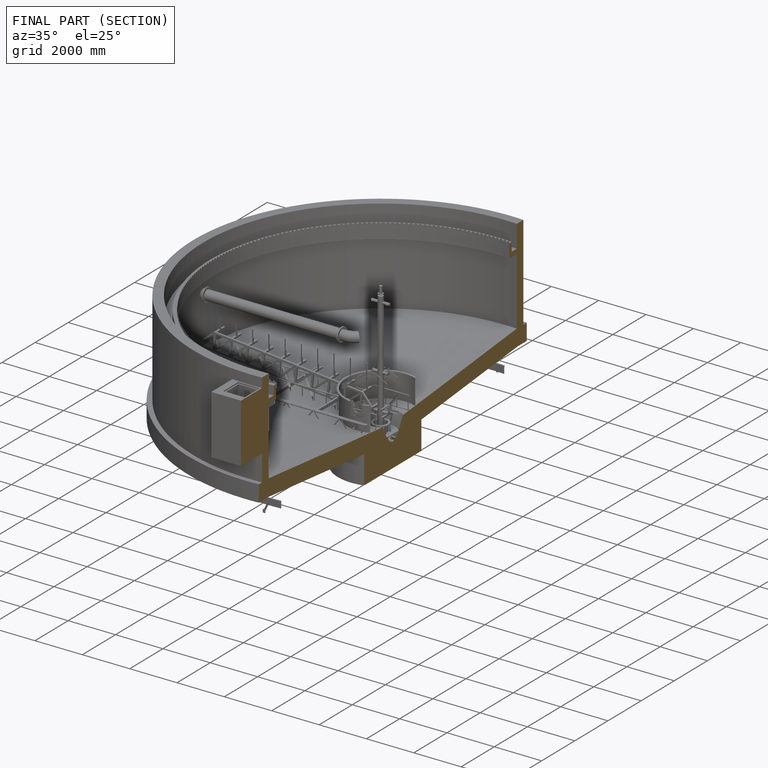
[diagram: finished part — half-section view (interior)]
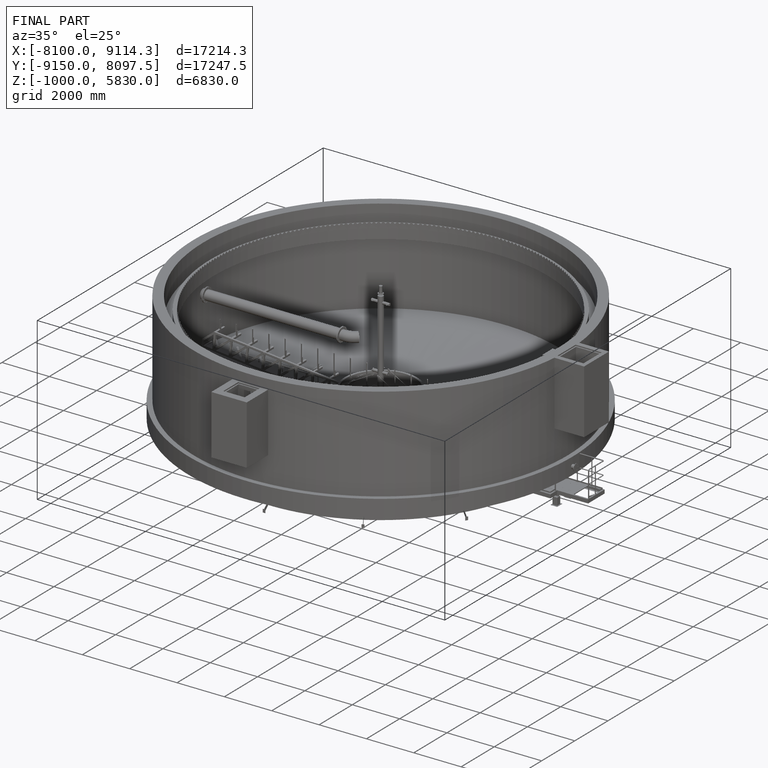
[diagram: finished part — iso view with bounding-box wireframe]
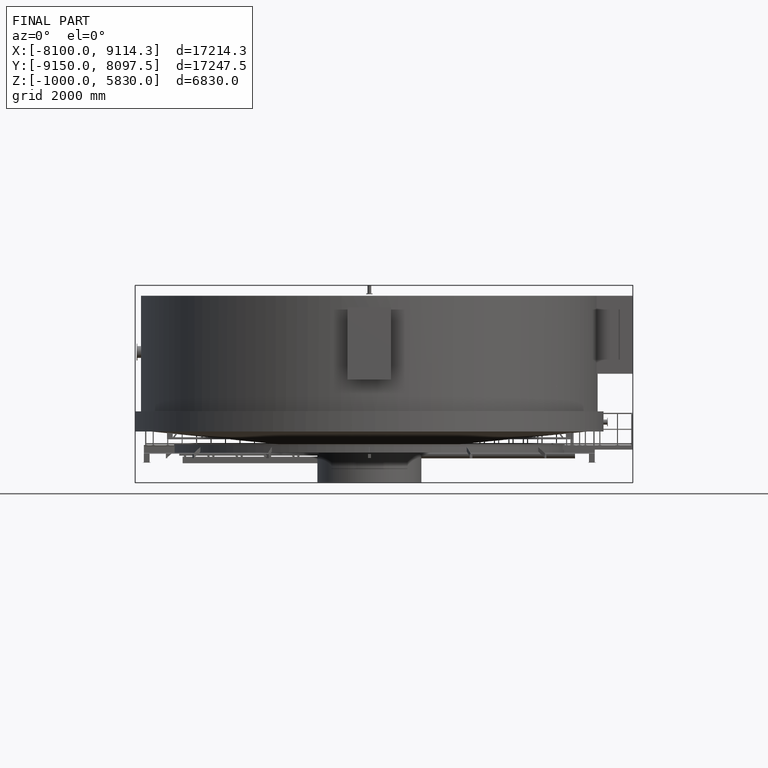
[diagram: finished part — front view with bounding-box wireframe]
